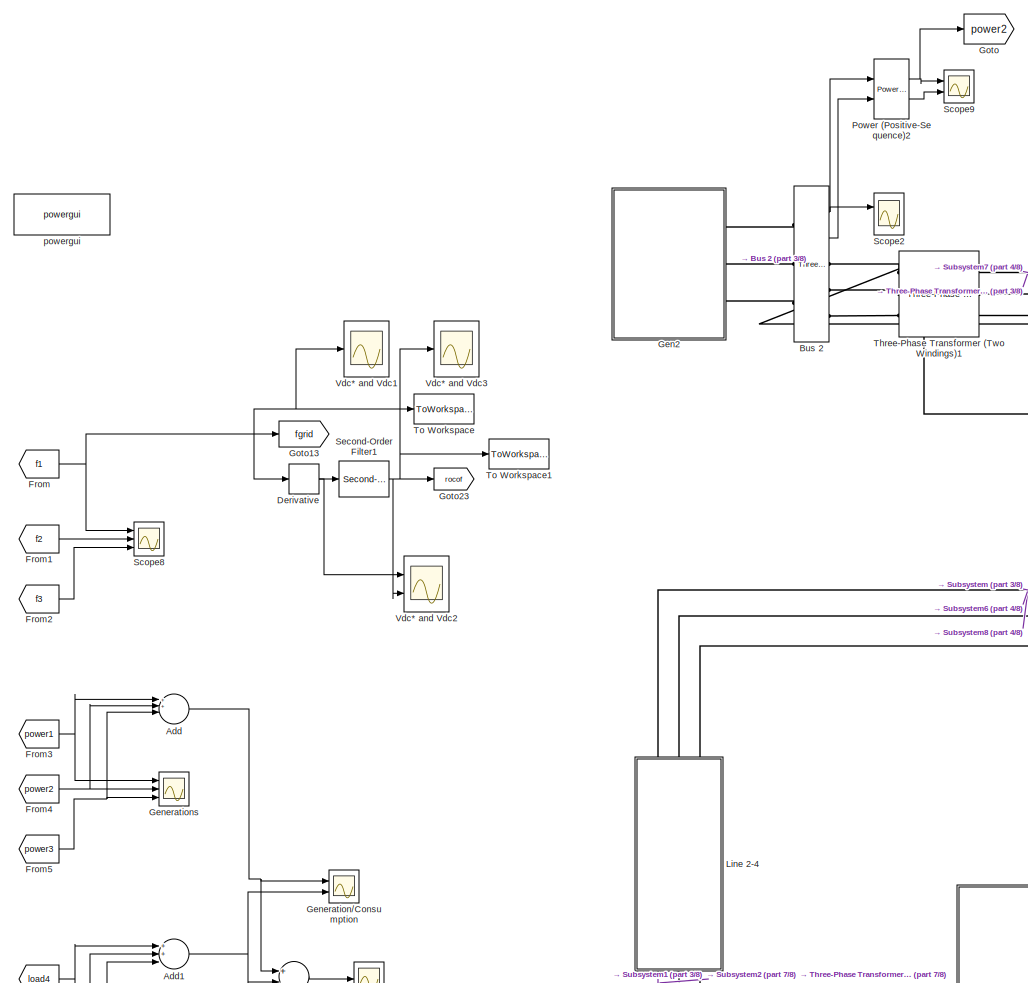
[diagram: root canvas - part 1/8, top left region]
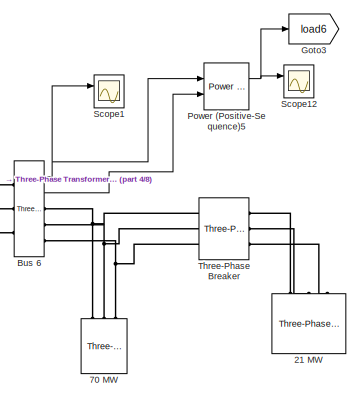
[diagram: root canvas - part 2/8, top right region]
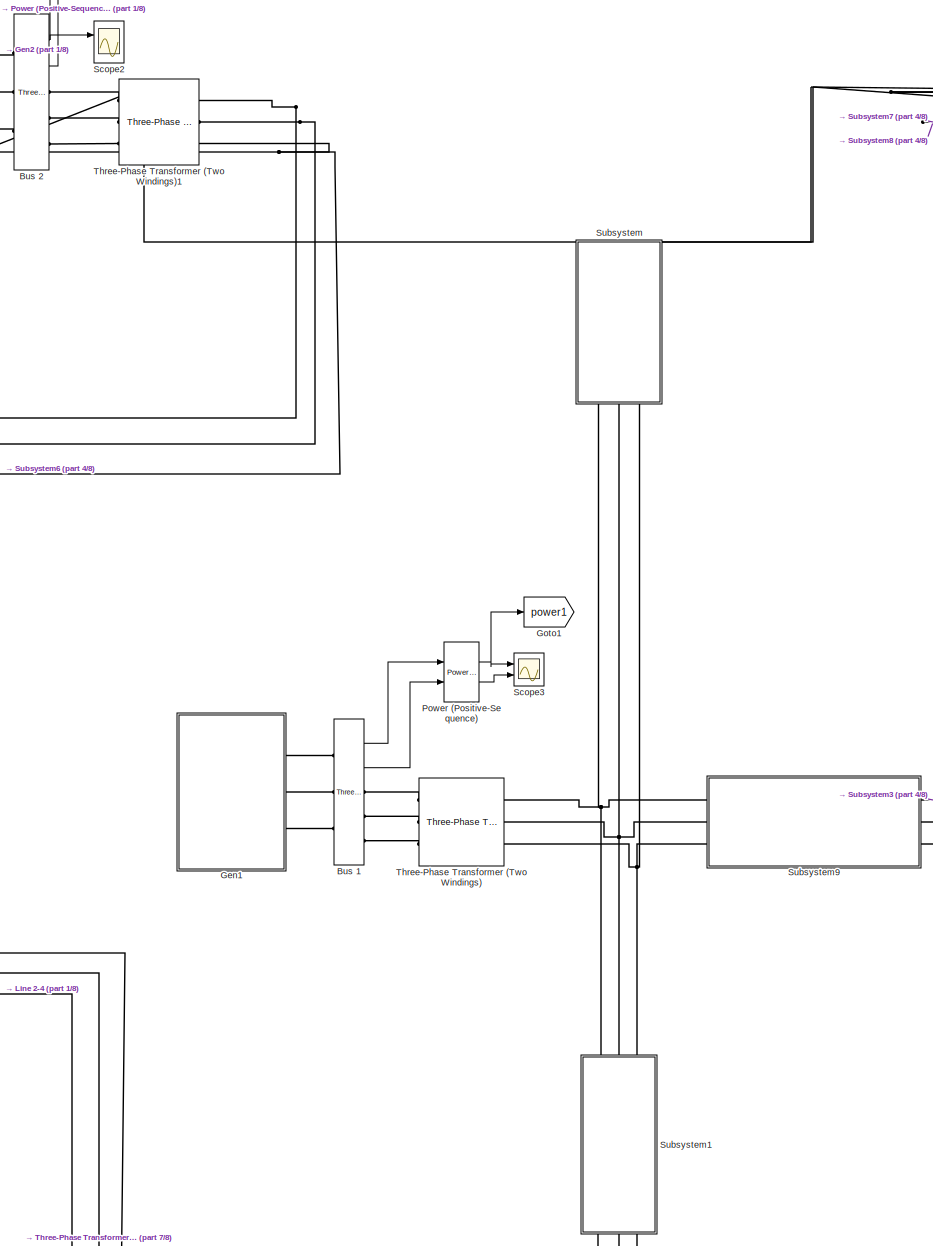
[diagram: root canvas - part 3/8, central region]
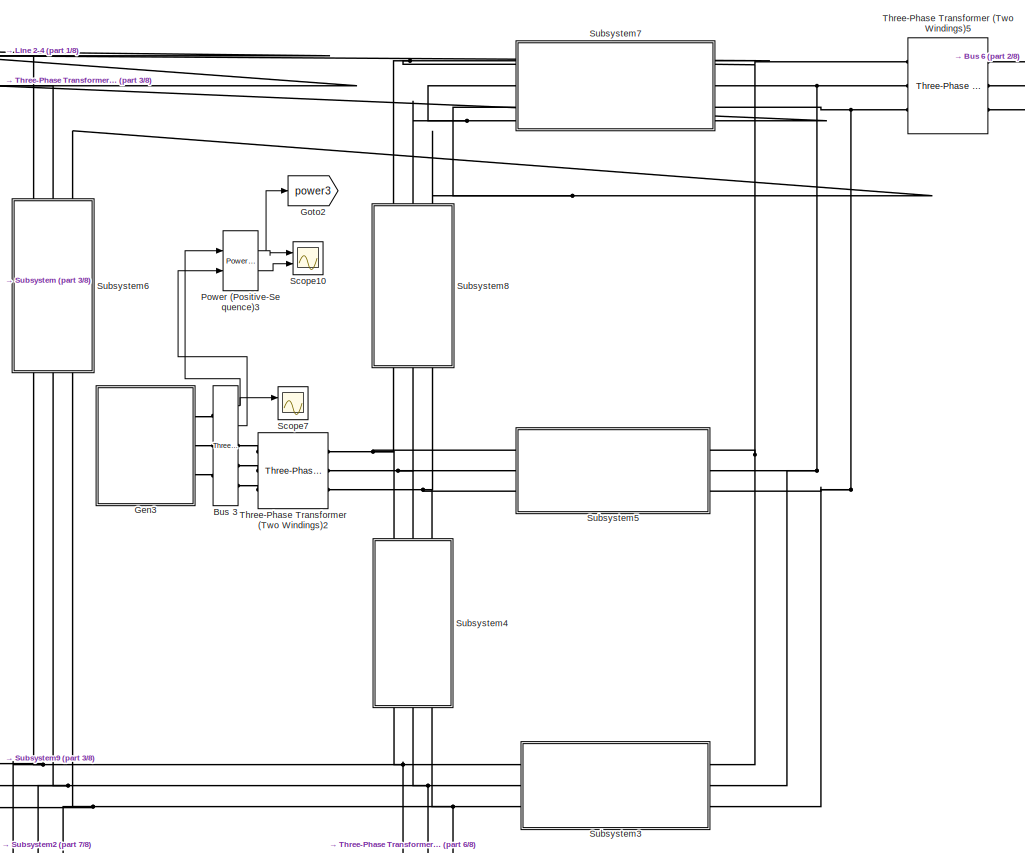
[diagram: root canvas - part 4/8, top right region]
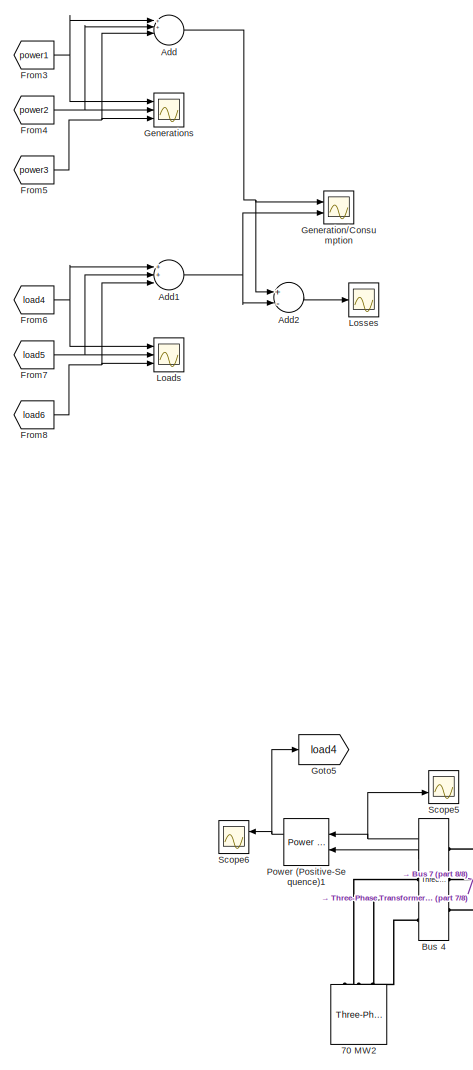
[diagram: root canvas - part 5/8, middle left region]
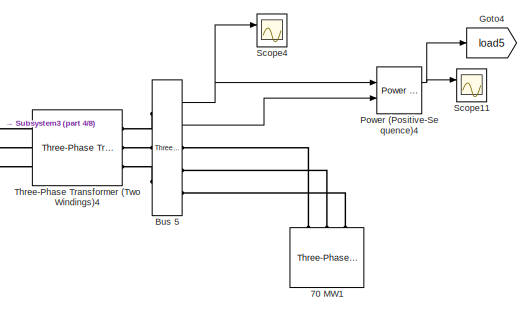
[diagram: root canvas - part 6/8, middle right region]
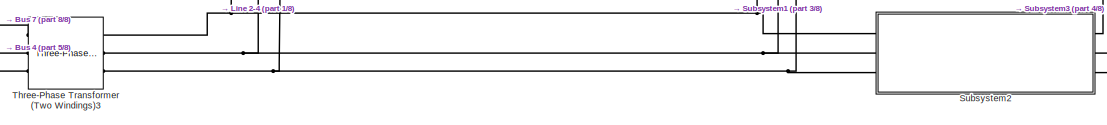
[diagram: root canvas - part 7/8, central region]
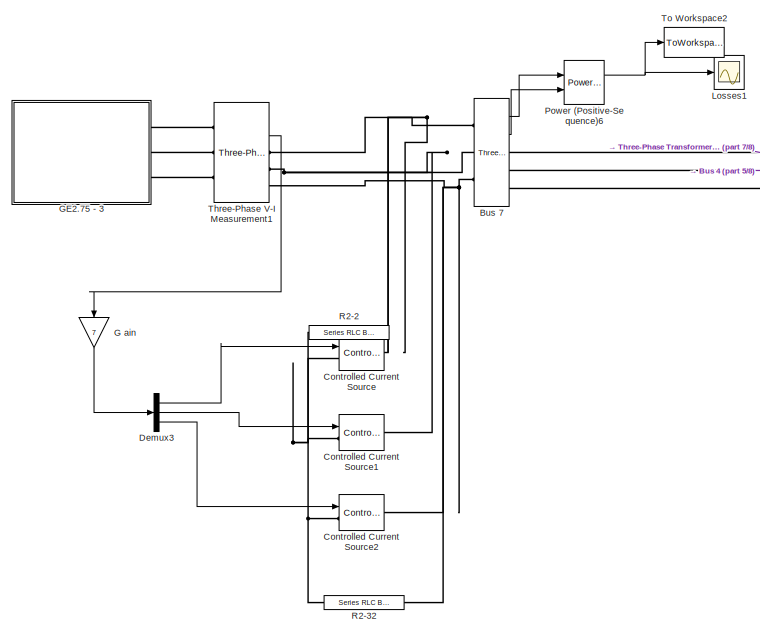
[diagram: root canvas - part 8/8, bottom left region]
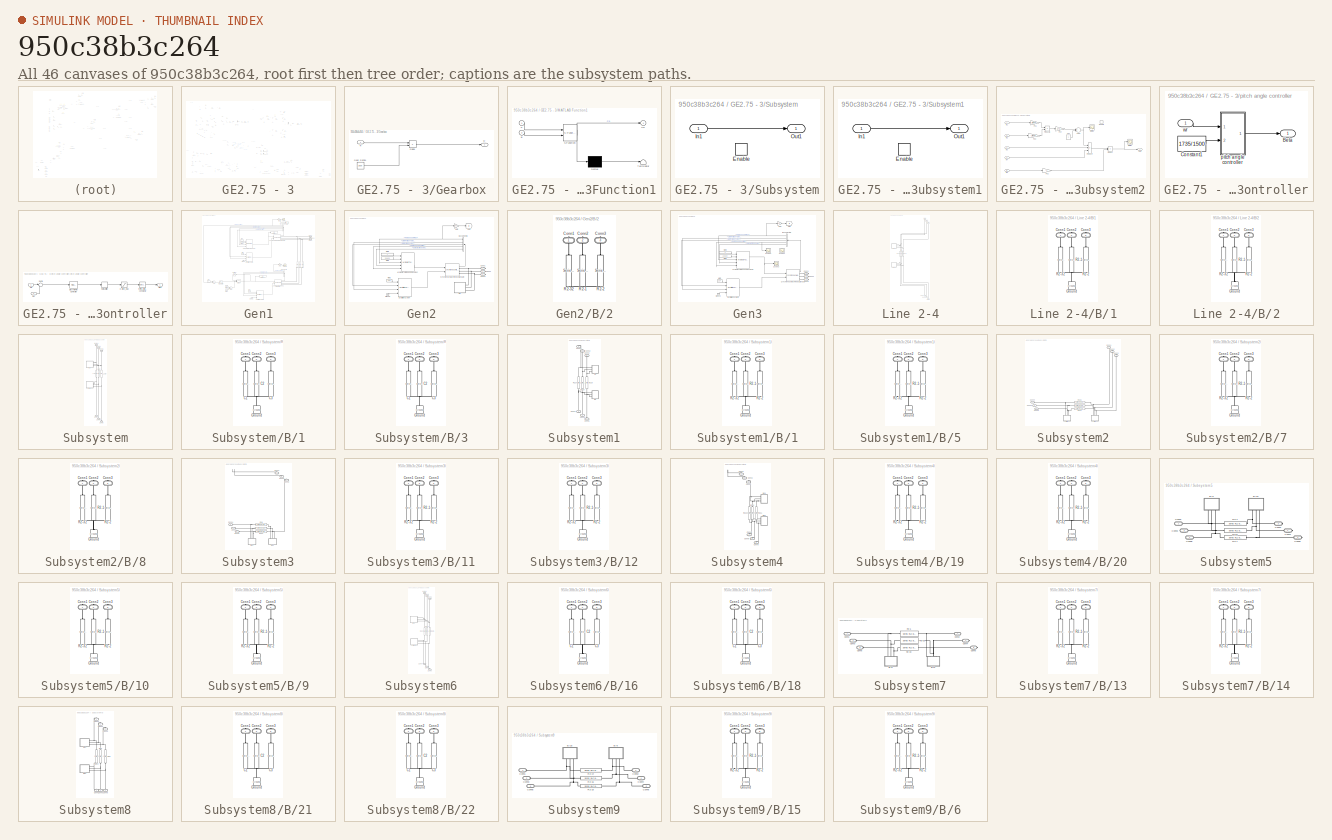
[diagram: thumbnail index - all 46 canvases of the model, root first then tree order]
MODEL slx_950c38b3c264
KIND model
CONFIG AbsTol = auto
CONFIG FixedStep = Ts
CONFIG MaxStep = auto
CONFIG MinStep = auto
CONFIG RelTol = 1e-3
CONFIG SampleTimeConstraint = Unconstrained
CONFIG Solver = ode23t
CONFIG SolverMode = Auto
CONFIG SolverName = ode23t
CONFIG StartTime = 0.0
CONFIG StopTime = 25
BLOCK [Reference] 21 MW  REF=powerlib/Elements/Three-Phase
Parallel RLC Load
  AttributesFormatString = \n
  Ports = [0, 0, 0, 0, 0, 3]
  SourceBlock = powerlib/Elements/Three-Phase\nParallel RLC Load
  SourceType = Three-Phase Parallel RLC Load
BLOCK [Reference] 70 MW  REF=powerlib/Elements/Three-Phase
Parallel RLC Load
  AttributesFormatString = \n
  Ports = [0, 0, 0, 0, 0, 3]
  SourceBlock = powerlib/Elements/Three-Phase\nParallel RLC Load
  SourceType = Three-Phase Parallel RLC Load
BLOCK [Reference] 70 MW1  REF=powerlib/Elements/Three-Phase
Parallel RLC Load
  AttributesFormatString = \n
  Ports = [0, 0, 0, 0, 0, 3]
  SourceBlock = powerlib/Elements/Three-Phase\nParallel RLC Load
  SourceType = Three-Phase Parallel RLC Load
BLOCK [Reference] 70 MW2  REF=powerlib/Elements/Three-Phase
Parallel RLC Load
  AttributesFormatString = \n
  Ports = [0, 0, 0, 0, 0, 3]
  SourceBlock = powerlib/Elements/Three-Phase\nParallel RLC Load
  SourceType = Three-Phase Parallel RLC Load
BLOCK [Sum] Add
  InputSameDT = off
  Inputs = 4
  OutDataTypeStr = Inherit: Inherit via internal rule
  Ports = [4, 1]
  SaturateOnIntegerOverflow = off
BLOCK [Sum] Add1
  InputSameDT = off
  Inputs = 3
  OutDataTypeStr = Inherit: Inherit via internal rule
  Ports = [3, 1]
  SaturateOnIntegerOverflow = off
BLOCK [Sum] Add2
  InputSameDT = off
  Inputs = +-
  OutDataTypeStr = Inherit: Inherit via internal rule
  Ports = [2, 1]
  SaturateOnIntegerOverflow = off
BLOCK [Reference] Bus 1  REF=powerlib/Measurements/Three-Phase
V-I Measurement
  Ports = [0, 2, 0, 0, 0, 3, 3]
  SourceBlock = powerlib/Measurements/Three-Phase\nV-I Measurement
  SourceType = Three-Phase VI Measurement
BLOCK [Reference] Bus 2  REF=powerlib/Measurements/Three-Phase
V-I Measurement
  Ports = [0, 2, 0, 0, 0, 3, 3]
  SourceBlock = powerlib/Measurements/Three-Phase\nV-I Measurement
  SourceType = Three-Phase VI Measurement
BLOCK [Reference] Bus 3  REF=powerlib/Measurements/Three-Phase
V-I Measurement
  Ports = [0, 2, 0, 0, 0, 3, 3]
  SourceBlock = powerlib/Measurements/Three-Phase\nV-I Measurement
  SourceType = Three-Phase VI Measurement
BLOCK [Reference] Bus 4  REF=powerlib/Measurements/Three-Phase
V-I Measurement
  Ports = [0, 2, 0, 0, 0, 3, 3]
  SourceBlock = powerlib/Measurements/Three-Phase\nV-I Measurement
  SourceType = Three-Phase VI Measurement
BLOCK [Reference] Bus 5  REF=powerlib/Measurements/Three-Phase
V-I Measurement
  Ports = [0, 2, 0, 0, 0, 3, 3]
  SourceBlock = powerlib/Measurements/Three-Phase\nV-I Measurement
  SourceType = Three-Phase VI Measurement
BLOCK [Reference] Bus 6  REF=powerlib/Measurements/Three-Phase
V-I Measurement
  Ports = [0, 2, 0, 0, 0, 3, 3]
  SourceBlock = powerlib/Measurements/Three-Phase\nV-I Measurement
  SourceType = Three-Phase VI Measurement
BLOCK [Reference] Bus 7  REF=powerlib/Measurements/Three-Phase
V-I Measurement
  Ports = [0, 2, 0, 0, 0, 3, 3]
  SourceBlock = powerlib/Measurements/Three-Phase\nV-I Measurement
  SourceType = Three-Phase VI Measurement
BLOCK [Reference] Controlled Current Source  REF=powerlib/Electrical
Sources/Controlled Current Source
  Ports = [1, 0, 0, 0, 0, 1, 1]
  SourceBlock = powerlib/Electrical\nSources/Controlled Current Source
  SourceType = Controlled Current Source
BLOCK [Reference] Controlled Current Source1  REF=powerlib/Electrical
Sources/Controlled Current Source
  Ports = [1, 0, 0, 0, 0, 1, 1]
  SourceBlock = powerlib/Electrical\nSources/Controlled Current Source
  SourceType = Controlled Current Source
BLOCK [Reference] Controlled Current Source2  REF=powerlib/Electrical
Sources/Controlled Current Source
  Ports = [1, 0, 0, 0, 0, 1, 1]
  SourceBlock = powerlib/Electrical\nSources/Controlled Current Source
  SourceType = Controlled Current Source
BLOCK [Demux] Demux3
  DisplayOption = bar
  Outputs = 3
  Ports = [1, 3]
BLOCK [Derivative] Derivative
BLOCK [From] From
  GotoTag = f1
  TagVisibility = global
BLOCK [From] From1
  GotoTag = f2
  TagVisibility = global
BLOCK [From] From2
  GotoTag = f3
  TagVisibility = global
BLOCK [From] From3
  GotoTag = power1
BLOCK [From] From4
  GotoTag = power2
BLOCK [From] From5
  GotoTag = power3
BLOCK [From] From6
  GotoTag = load4
BLOCK [From] From7
  GotoTag = load5
BLOCK [From] From8
  GotoTag = load6
BLOCK [Gain] G ain
  Gain = 7
  OutDataTypeStr = Inherit: Inherit via internal rule
  ParamDataTypeStr = Inherit: Inherit via internal rule
  SaturateOnIntegerOverflow = off
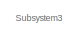
[diagram: GE2.75 - 3 - part 1/10, top left region]
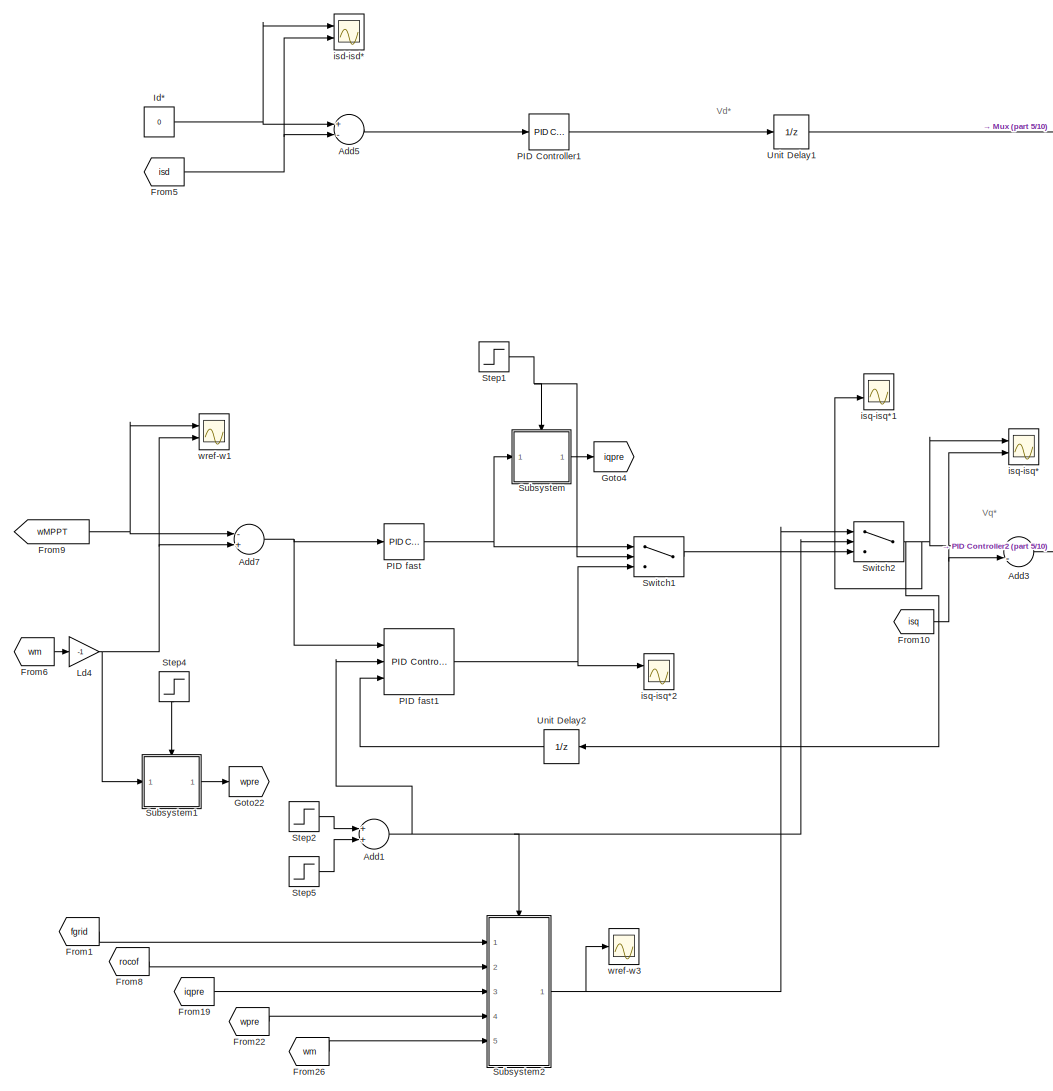
[diagram: GE2.75 - 3 - part 2/10, top left region]
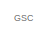
[diagram: GE2.75 - 3 - part 3/10, top center region]
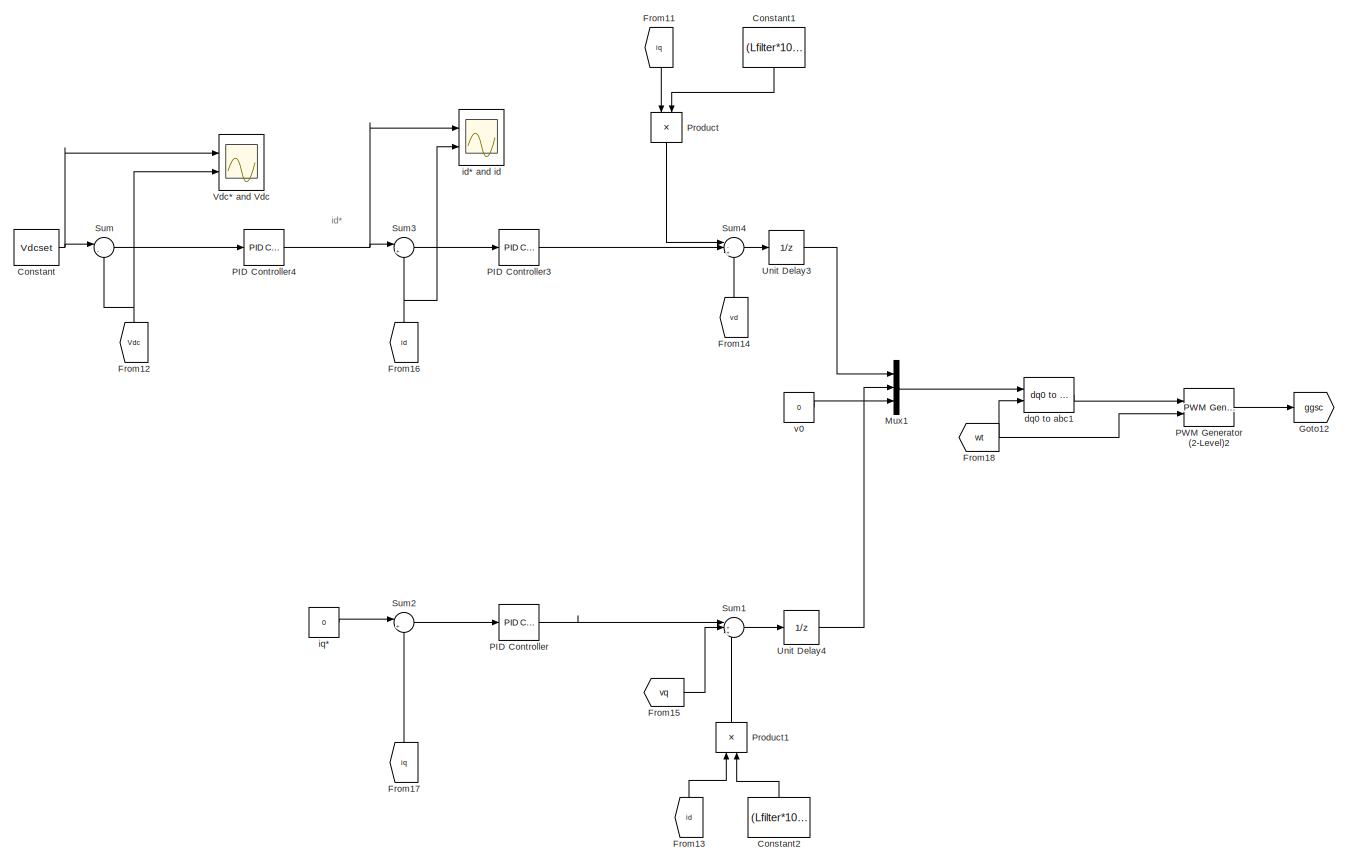
[diagram: GE2.75 - 3 - part 4/10, top center region]
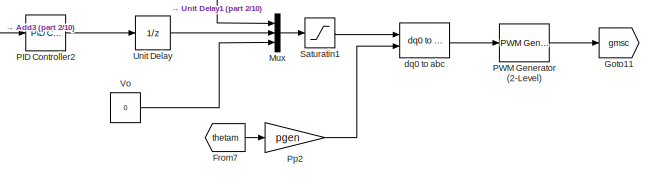
[diagram: GE2.75 - 3 - part 5/10, top center region]
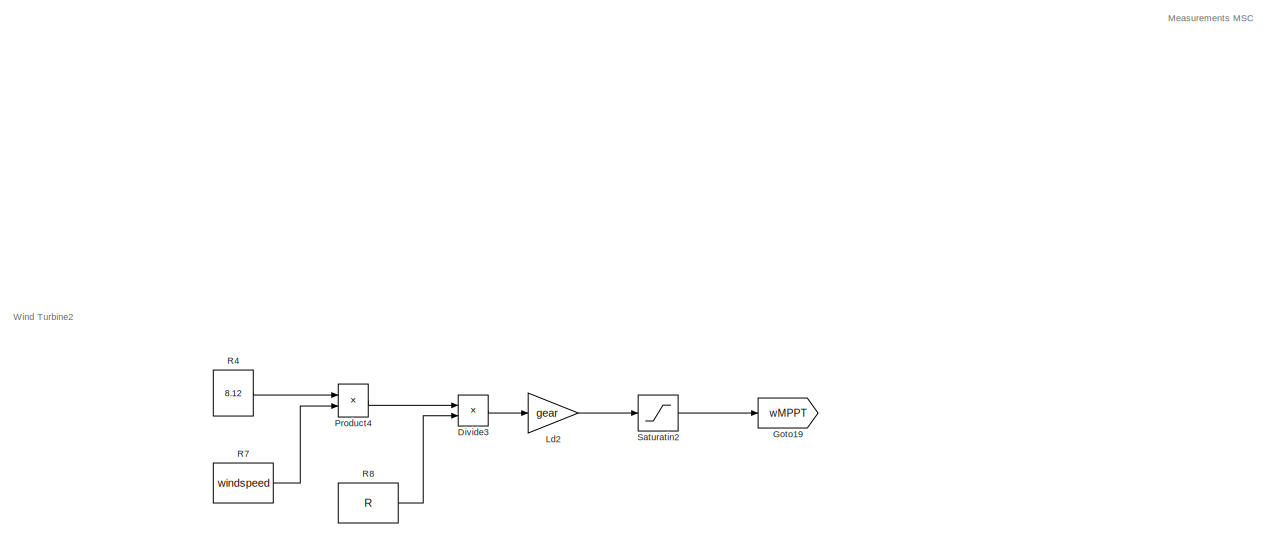
[diagram: GE2.75 - 3 - part 6/10, middle left region]
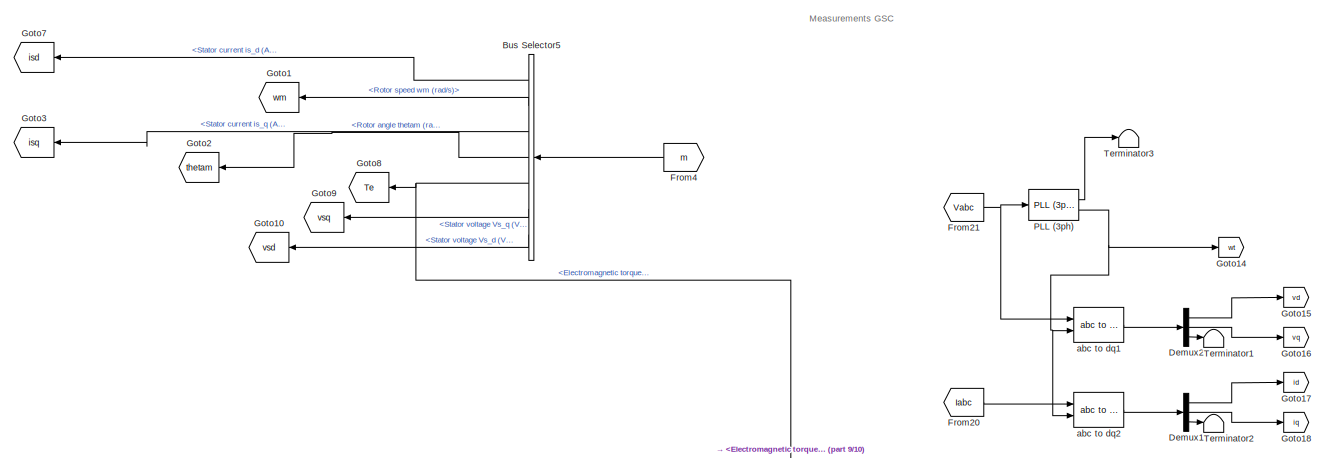
[diagram: GE2.75 - 3 - part 7/10, central region]
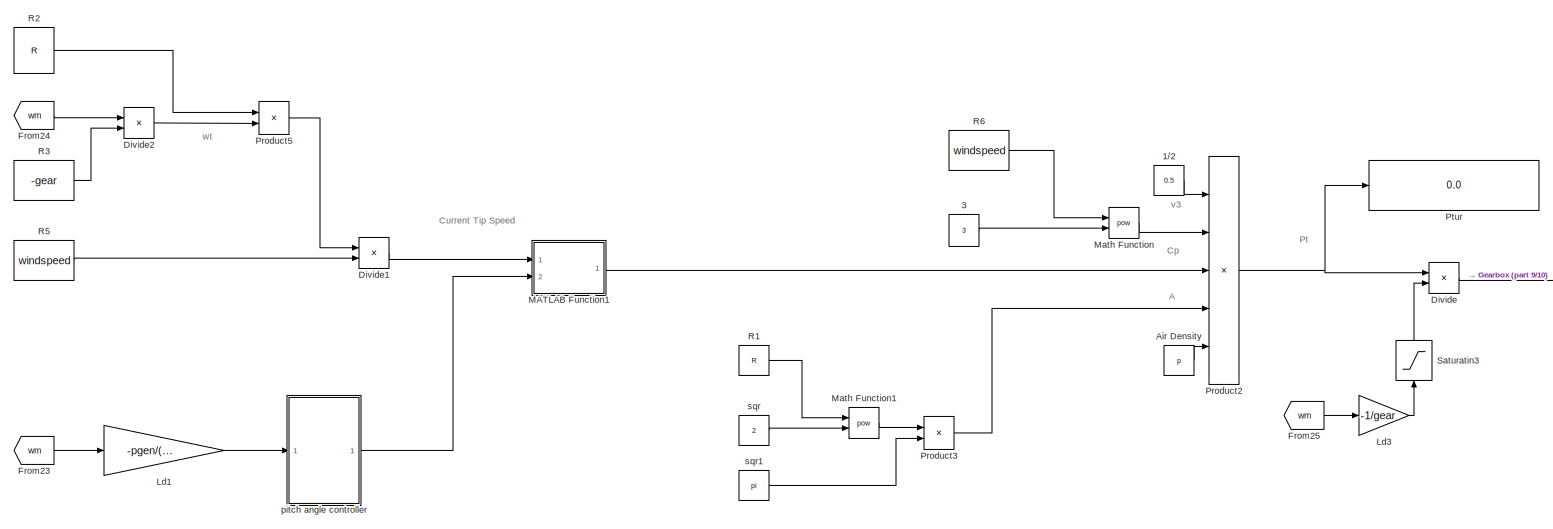
[diagram: GE2.75 - 3 - part 8/10, bottom left region]
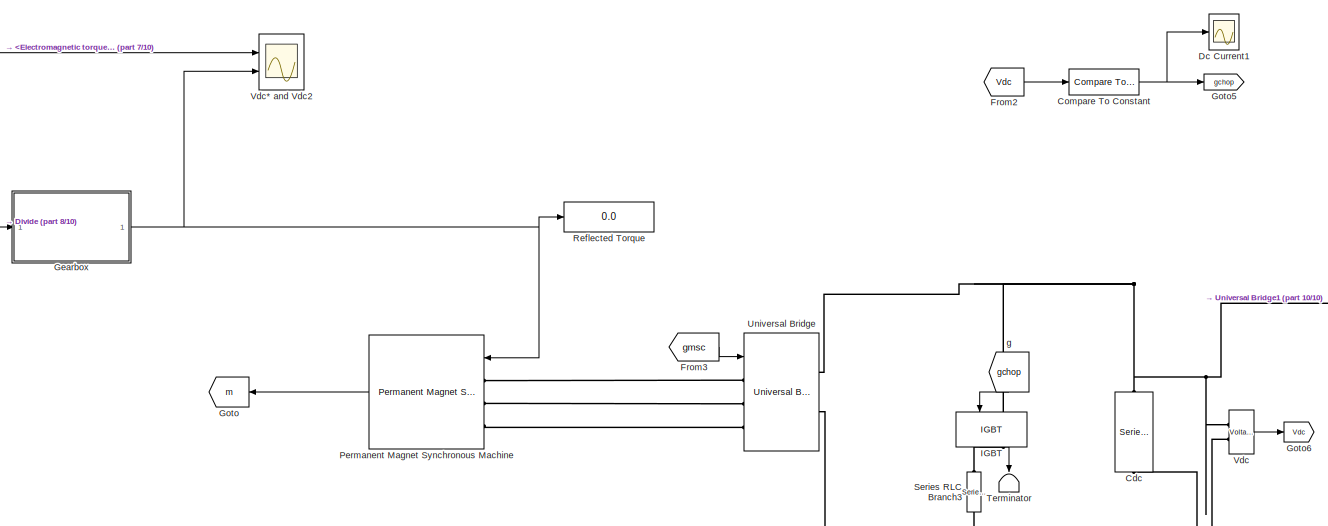
[diagram: GE2.75 - 3 - part 9/10, bottom center region]
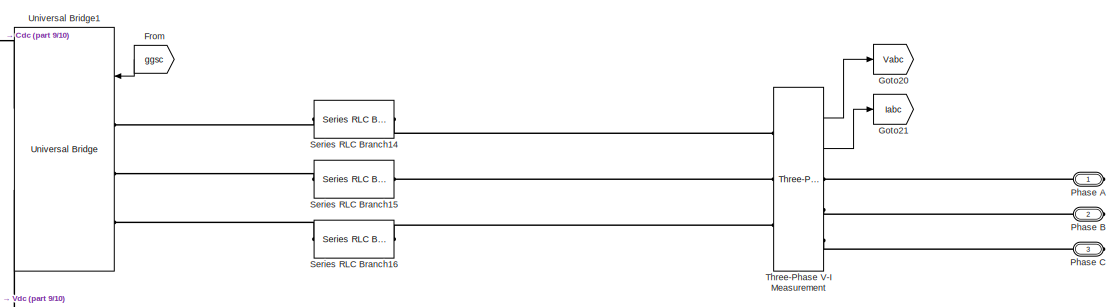
[diagram: GE2.75 - 3 - part 10/10, bottom right region]
BLOCK [SubSystem] GE2.75 - 3
  Ports = [0, 0, 0, 0, 0, 0, 3]
  RequestExecContextInheritance = off
  Variant = off
BLOCK [Constant] GE2.75 - 3/1//2
  Value = 0.5
BLOCK [Constant] GE2.75 - 3/3
  Value = 3
BLOCK [Sum] GE2.75 - 3/Add1
  InputSameDT = off
  OutDataTypeStr = Inherit: Inherit via internal rule
  Ports = [2, 1]
  SaturateOnIntegerOverflow = off
BLOCK [Sum] GE2.75 - 3/Add3
  InputSameDT = off
  Inputs = +-
  OutDataTypeStr = Inherit: Inherit via internal rule
  Ports = [2, 1]
  SaturateOnIntegerOverflow = off
BLOCK [Sum] GE2.75 - 3/Add5
  InputSameDT = off
  Inputs = +-
  OutDataTypeStr = Inherit: Inherit via internal rule
  Ports = [2, 1]
  SaturateOnIntegerOverflow = off
BLOCK [Sum] GE2.75 - 3/Add7
  InputSameDT = off
  Inputs = -+
  OutDataTypeStr = Inherit: Inherit via internal rule
  Ports = [2, 1]
  SaturateOnIntegerOverflow = off
BLOCK [Constant] GE2.75 - 3/Air Density
  Value = p
BLOCK [BusSelector] GE2.75 - 3/Bus Selector5
  OutputSignals = Stator current is_d (A),Rotor speed wm (rad/s),Stator current is_q (A),Rotor angle thetam (rad),Electromagnetic torque Te (N*m),Stator voltage Vs_q (V),Stator voltage Vs_d (V)
  Ports = [1, 7]
BLOCK [Reference] GE2.75 - 3/Cdc  REF=powerlib/Elements/Series RLC Branch
  Ports = [0, 0, 0, 0, 0, 1, 1]
  SourceBlock = powerlib/Elements/Series RLC Branch
  SourceType = Series RLC Branch
BLOCK [Reference] GE2.75 - 3/Compare To Constant  REF=simulink/Logic and Bit
Operations/Compare
To Constant
  Ports = [1, 1]
  SourceBlock = simulink/Logic and Bit\nOperations/Compare\nTo Constant
  SourceType = Compare To Constant
BLOCK [Constant] GE2.75 - 3/Constant
  Value = Vdcset
BLOCK [Constant] GE2.75 - 3/Constant1
  Value = (Lfilter*100*pi*2300)/690
BLOCK [Constant] GE2.75 - 3/Constant2
  Value = (Lfilter*100*pi*2300)/690
BLOCK [Scope] GE2.75 - 3/Dc Current1
  Ports = [1]
  ScopeSpecificationString = Simulink.scopes.TimeScopeBlockCfg('CurrentConfiguration', extmgr.ConfigurationSet(extmgr.Configuration('Core','General UI',true),extmgr.Configuration('Core','Source UI',true),extmgr.Configuration('Sources','WiredSimulink',true,'DataLoggingVariableName','ScopeData1'),extmgr.Configuration('Visuals','Time Domain',true,'SerializedDisplays',{struct('MinYLimReal','-1.00000','MaxYLimReal','1.00000','YLab...<+1422ch>
BLOCK [Demux] GE2.75 - 3/Demux1
  DisplayOption = bar
  Outputs = 3
  Ports = [1, 3]
BLOCK [Demux] GE2.75 - 3/Demux2
  DisplayOption = bar
  Outputs = 3
  Ports = [1, 3]
BLOCK [Product] GE2.75 - 3/Divide
  InputSameDT = off
  Inputs = */
  OutDataTypeStr = Inherit: Inherit via internal rule
  Ports = [2, 1]
  RndMeth = Floor
  SaturateOnIntegerOverflow = off
BLOCK [Product] GE2.75 - 3/Divide1
  InputSameDT = off
  Inputs = */
  OutDataTypeStr = Inherit: Inherit via internal rule
  Ports = [2, 1]
  RndMeth = Floor
  SaturateOnIntegerOverflow = off
BLOCK [Product] GE2.75 - 3/Divide2
  InputSameDT = off
  Inputs = */
  OutDataTypeStr = Inherit: Inherit via internal rule
  Ports = [2, 1]
  RndMeth = Floor
  SaturateOnIntegerOverflow = off
BLOCK [Product] GE2.75 - 3/Divide3
  InputSameDT = off
  Inputs = */
  OutDataTypeStr = Inherit: Inherit via internal rule
  Ports = [2, 1]
  RndMeth = Floor
  SaturateOnIntegerOverflow = off
BLOCK [From] GE2.75 - 3/From
  GotoTag = ggsc
BLOCK [From] GE2.75 - 3/From1
  GotoTag = fgrid
  TagVisibility = global
BLOCK [From] GE2.75 - 3/From10
  GotoTag = isq
BLOCK [From] GE2.75 - 3/From11
  GotoTag = iq
BLOCK [From] GE2.75 - 3/From12
  GotoTag = Vdc
BLOCK [From] GE2.75 - 3/From13
  GotoTag = id
BLOCK [From] GE2.75 - 3/From14
  GotoTag = vd
BLOCK [From] GE2.75 - 3/From15
  GotoTag = vq
BLOCK [From] GE2.75 - 3/From16
  GotoTag = id
BLOCK [From] GE2.75 - 3/From17
  GotoTag = iq
BLOCK [From] GE2.75 - 3/From18
  GotoTag = wt
BLOCK [From] GE2.75 - 3/From19
  GotoTag = iqpre
BLOCK [From] GE2.75 - 3/From2
  GotoTag = Vdc
BLOCK [From] GE2.75 - 3/From20
  GotoTag = Iabc
BLOCK [From] GE2.75 - 3/From21
  GotoTag = Vabc
BLOCK [From] GE2.75 - 3/From22
  GotoTag = wpre
BLOCK [From] GE2.75 - 3/From23
  GotoTag = wm
BLOCK [From] GE2.75 - 3/From24
  GotoTag = wm
BLOCK [From] GE2.75 - 3/From25
  GotoTag = wm
BLOCK [From] GE2.75 - 3/From26
  GotoTag = wm
BLOCK [From] GE2.75 - 3/From3
  GotoTag = gmsc
BLOCK [From] GE2.75 - 3/From4
  GotoTag = m
BLOCK [From] GE2.75 - 3/From5
  GotoTag = isd
BLOCK [From] GE2.75 - 3/From6
  GotoTag = wm
BLOCK [From] GE2.75 - 3/From7
  GotoTag = thetam
BLOCK [From] GE2.75 - 3/From8
  GotoTag = rocof
  TagVisibility = global
BLOCK [From] GE2.75 - 3/From9
  GotoTag = wMPPT
BLOCK [SubSystem] GE2.75 - 3/Gearbox
  Ports = [1, 1]
  RequestExecContextInheritance = off
  Variant = off
BLOCK [Product] GE2.75 - 3/Gearbox/Divide
  InputSameDT = off
  Inputs = */
  OutDataTypeStr = Inherit: Inherit via internal rule
  Ports = [2, 1]
  RndMeth = Floor
  SaturateOnIntegerOverflow = off
BLOCK [Constant] GE2.75 - 3/Gearbox/Gear Ratio1
  Value = gear
BLOCK [Inport] GE2.75 - 3/Gearbox/Tt
  IconDisplay = Port number
BLOCK [Outport] GE2.75 - 3/Gearbox/Tt'
  IconDisplay = Port number
BLOCK [Goto] GE2.75 - 3/Goto
  GotoTag = m
BLOCK [Goto] GE2.75 - 3/Goto1
  GotoTag = wm
BLOCK [Goto] GE2.75 - 3/Goto10
  GotoTag = vsd
BLOCK [Goto] GE2.75 - 3/Goto11
  GotoTag = gmsc
BLOCK [Goto] GE2.75 - 3/Goto12
  GotoTag = ggsc
BLOCK [Goto] GE2.75 - 3/Goto14
  GotoTag = wt
BLOCK [Goto] GE2.75 - 3/Goto15
  GotoTag = vd
BLOCK [Goto] GE2.75 - 3/Goto16
  GotoTag = vq
BLOCK [Goto] GE2.75 - 3/Goto17
  GotoTag = id
BLOCK [Goto] GE2.75 - 3/Goto18
  GotoTag = iq
BLOCK [Goto] GE2.75 - 3/Goto19
  GotoTag = wMPPT
BLOCK [Goto] GE2.75 - 3/Goto2
  GotoTag = thetam
BLOCK [Goto] GE2.75 - 3/Goto20
  GotoTag = Vabc
BLOCK [Goto] GE2.75 - 3/Goto21
  GotoTag = Iabc
BLOCK [Goto] GE2.75 - 3/Goto22
  GotoTag = wpre
BLOCK [Goto] GE2.75 - 3/Goto3
  GotoTag = isq
BLOCK [Goto] GE2.75 - 3/Goto4
  GotoTag = iqpre
BLOCK [Goto] GE2.75 - 3/Goto5
  GotoTag = gchop
BLOCK [Goto] GE2.75 - 3/Goto6
  GotoTag = Vdc
BLOCK [Goto] GE2.75 - 3/Goto7
  GotoTag = isd
BLOCK [Goto] GE2.75 - 3/Goto8
  GotoTag = Te
BLOCK [Goto] GE2.75 - 3/Goto9
  GotoTag = vsq
BLOCK [Reference] GE2.75 - 3/IGBT  REF=powerlib/Power
Electronics/IGBT
  Ports = [1, 1, 0, 0, 0, 1, 1]
  SourceBlock = powerlib/Power\nElectronics/IGBT
  SourceType = IGBT
BLOCK [Constant] GE2.75 - 3/Id*
  Value = 0
BLOCK [Gain] GE2.75 - 3/Ld1
  Gain = -pgen/(2*fnom*pi)
  OutDataTypeStr = Inherit: Inherit via internal rule
  ParamDataTypeStr = Inherit: Inherit via internal rule
  SaturateOnIntegerOverflow = off
BLOCK [Gain] GE2.75 - 3/Ld2
  Gain = gear
  OutDataTypeStr = Inherit: Inherit via internal rule
  ParamDataTypeStr = Inherit: Inherit via internal rule
  SaturateOnIntegerOverflow = off
BLOCK [Gain] GE2.75 - 3/Ld3
  Gain = -1/gear
  OutDataTypeStr = Inherit: Inherit via internal rule
  ParamDataTypeStr = Inherit: Inherit via internal rule
  SaturateOnIntegerOverflow = off
BLOCK [Gain] GE2.75 - 3/Ld4
  Gain = -1
  OutDataTypeStr = Inherit: Inherit via internal rule
  ParamDataTypeStr = Inherit: Inherit via internal rule
  SaturateOnIntegerOverflow = off
BLOCK [SubSystem] GE2.75 - 3/MATLAB Function1
  ErrorFcn = Stateflow.Translate.translate
  PermitHierarchicalResolution = ExplicitOnly
  Ports = [2, 1]
  RequestExecContextInheritance = off
  SFBlockType = MATLAB Function
  TreatAsAtomicUnit = on
  Variant = off
BLOCK [Demux] GE2.75 - 3/MATLAB Function1/ Demux 
  Outputs = 1
  Ports = [1, 1]
BLOCK [S-Function] GE2.75 - 3/MATLAB Function1/ SFunction 
  EnableBusSupport = on
  FunctionName = sf_sfun
  PortCounts = [2 2]
  Ports = [2, 2]
  SFunctionDeploymentMode = off
  Tag = Stateflow S-Function ieee_6_bus_base_case_hydro_dominated 3
BLOCK [Terminator] GE2.75 - 3/MATLAB Function1/ Terminator 
BLOCK [Inport] GE2.75 - 3/MATLAB Function1/B
  IconDisplay = Port number
  Port = 2
BLOCK [Outport] GE2.75 - 3/MATLAB Function1/Cp
  IconDisplay = Port number
BLOCK [Inport] GE2.75 - 3/MATLAB Function1/u
  IconDisplay = Port number
BLOCK [Math] GE2.75 - 3/Math Function
  Operator = pow
  Ports = [2, 1]
BLOCK [Math] GE2.75 - 3/Math Function1
  Operator = pow
  Ports = [2, 1]
BLOCK [Mux] GE2.75 - 3/Mux
  DisplayOption = bar
  Inputs = 3
  Ports = [3, 1]
BLOCK [Mux] GE2.75 - 3/Mux1
  DisplayOption = bar
  Inputs = 3
  Ports = [3, 1]
BLOCK [Reference] GE2.75 - 3/PID Controller  REF=simulink/Continuous/PID Controller
  Ports = [1, 1]
  SourceBlock = simulink/Continuous/PID Controller
  SourceType = PID 1dof
BLOCK [Reference] GE2.75 - 3/PID Controller1  REF=simulink/Continuous/PID Controller
  Ports = [1, 1]
  SourceBlock = simulink/Continuous/PID Controller
  SourceType = PID 1dof
BLOCK [Reference] GE2.75 - 3/PID Controller2  REF=simulink/Continuous/PID Controller
  Ports = [1, 1]
  SourceBlock = simulink/Continuous/PID Controller
  SourceType = PID 1dof
BLOCK [Reference] GE2.75 - 3/PID Controller3  REF=simulink/Continuous/PID Controller
  Ports = [1, 1]
  SourceBlock = simulink/Continuous/PID Controller
  SourceType = PID 1dof
BLOCK [Reference] GE2.75 - 3/PID Controller4  REF=simulink/Continuous/PID Controller
  Ports = [1, 1]
  SourceBlock = simulink/Continuous/PID Controller
  SourceType = PID 1dof
BLOCK [Reference] GE2.75 - 3/PID fast  REF=simulink/Continuous/PID Controller
  Ports = [1, 1]
  SourceBlock = simulink/Continuous/PID Controller
  SourceType = PID 1dof
BLOCK [Reference] GE2.75 - 3/PID fast1  REF=simulink/Continuous/PID Controller
  Ports = [3, 1]
  SourceBlock = simulink/Continuous/PID Controller
  SourceType = PID 1dof
BLOCK [Reference] GE2.75 - 3/PLL (3ph)  REF=powerlib_meascontrol/PLL/PLL
(3ph)
  Ports = [1, 2]
  SourceBlock = powerlib_meascontrol/PLL/PLL\n(3ph)
  SourceType = PLL (3ph)
BLOCK [Reference] GE2.75 - 3/PWM Generator (2-Level)  REF=powerlib_meascontrol/Pulse & Signal
Generators/PWM Generator
(2-Level)
  Ports = [1, 1]
  SourceBlock = powerlib_meascontrol/Pulse & Signal\nGenerators/PWM Generator\n(2-Level)
  SourceType = PWM Generator (2-Level)
BLOCK [Reference] GE2.75 - 3/PWM Generator (2-Level)2  REF=powerlib_meascontrol/Pulse & Signal
Generators/PWM Generator
(2-Level)
  Ports = [2, 1]
  SourceBlock = powerlib_meascontrol/Pulse & Signal\nGenerators/PWM Generator\n(2-Level)
  SourceType = PWM Generator (2-Level)
BLOCK [Reference] GE2.75 - 3/Permanent Magnet Synchronous Machine  REF=powerlib/Machines/Permanent Magnet
Synchronous Machine
  Ports = [1, 1, 0, 0, 0, 3]
  SourceBlock = powerlib/Machines/Permanent Magnet\nSynchronous Machine
  SourceType = Permanent Magnet Synchronous Machine
BLOCK [PMIOPort] GE2.75 - 3/Phase A
  Port = 1
  Side = Right
BLOCK [PMIOPort] GE2.75 - 3/Phase B
  Port = 2
  Side = Right
BLOCK [PMIOPort] GE2.75 - 3/Phase C
  Port = 3
  Side = Right
BLOCK [Gain] GE2.75 - 3/Pp2
  Gain = pgen
  OutDataTypeStr = Inherit: Inherit via internal rule
  ParamDataTypeStr = Inherit: Inherit via internal rule
  SaturateOnIntegerOverflow = off
BLOCK [Product] GE2.75 - 3/Product
  InputSameDT = off
  OutDataTypeStr = Inherit: Inherit via internal rule
  Ports = [2, 1]
  RndMeth = Floor
  SaturateOnIntegerOverflow = off
BLOCK [Product] GE2.75 - 3/Product1
  InputSameDT = off
  OutDataTypeStr = Inherit: Inherit via internal rule
  Ports = [2, 1]
  RndMeth = Floor
  SaturateOnIntegerOverflow = off
BLOCK [Product] GE2.75 - 3/Product2
  InputSameDT = off
  Inputs = 5
  OutDataTypeStr = Inherit: Inherit via internal rule
  Ports = [5, 1]
  RndMeth = Floor
  SaturateOnIntegerOverflow = off
BLOCK [Product] GE2.75 - 3/Product3
  InputSameDT = off
  OutDataTypeStr = Inherit: Inherit via internal rule
  Ports = [2, 1]
  RndMeth = Floor
  SaturateOnIntegerOverflow = off
BLOCK [Product] GE2.75 - 3/Product4
  InputSameDT = off
  OutDataTypeStr = Inherit: Inherit via internal rule
  Ports = [2, 1]
  RndMeth = Floor
  SaturateOnIntegerOverflow = off
BLOCK [Product] GE2.75 - 3/Product5
  InputSameDT = off
  OutDataTypeStr = Inherit: Inherit via internal rule
  Ports = [2, 1]
  RndMeth = Floor
  SaturateOnIntegerOverflow = off
BLOCK [Display] GE2.75 - 3/Ptur
  Decimation = 1
  Ports = [1]
BLOCK [Constant] GE2.75 - 3/R1
  Value = R
BLOCK [Constant] GE2.75 - 3/R2
  Value = R
BLOCK [Constant] GE2.75 - 3/R3
  Value = -gear
BLOCK [Constant] GE2.75 - 3/R4
  Value = 8.12
BLOCK [Constant] GE2.75 - 3/R5
  Value = windspeed
BLOCK [Constant] GE2.75 - 3/R6
  Value = windspeed
BLOCK [Constant] GE2.75 - 3/R7
  Value = windspeed
BLOCK [Constant] GE2.75 - 3/R8
  Value = R
BLOCK [Display] GE2.75 - 3/Reflected Torque
  Decimation = 1
  Ports = [1]
BLOCK [Saturate] GE2.75 - 3/Saturatin1
  InputPortMap = u0
  LowerLimit = -2000
  Ports = [1, 1]
  UpperLimit = 2000
BLOCK [Saturate] GE2.75 - 3/Saturatin2
  InputPortMap = u0
  LowerLimit = 1e-8
  Ports = [1, 1]
  UpperLimit = wmax
BLOCK [Saturate] GE2.75 - 3/Saturatin3
  InputPortMap = u0
  LowerLimit = 1e-8
  Ports = [1, 1]
  UpperLimit = inf
BLOCK [Reference] GE2.75 - 3/Series RLC Branch14  REF=powerlib/Elements/Series RLC Branch
  Ports = [0, 0, 0, 0, 0, 1, 1]
  SourceBlock = powerlib/Elements/Series RLC Branch
  SourceType = Series RLC Branch
BLOCK [Reference] GE2.75 - 3/Series RLC Branch15  REF=powerlib/Elements/Series RLC Branch
  Ports = [0, 0, 0, 0, 0, 1, 1]
  SourceBlock = powerlib/Elements/Series RLC Branch
  SourceType = Series RLC Branch
BLOCK [Reference] GE2.75 - 3/Series RLC Branch16  REF=powerlib/Elements/Series RLC Branch
  Ports = [0, 0, 0, 0, 0, 1, 1]
  SourceBlock = powerlib/Elements/Series RLC Branch
  SourceType = Series RLC Branch
BLOCK [Reference] GE2.75 - 3/Series RLC Branch3  REF=powerlib/Elements/Series RLC Branch
  Ports = [0, 0, 0, 0, 0, 1, 1]
  SourceBlock = powerlib/Elements/Series RLC Branch
  SourceType = Series RLC Branch
BLOCK [Step] GE2.75 - 3/Step1
  After = 0
  Before = 1
  SampleTime = Ts
  Time = insup
BLOCK [Step] GE2.75 - 3/Step2
  SampleTime = Ts
  Time = insup
BLOCK [Step] GE2.75 - 3/Step4
  After = 0
  Before = 1
  SampleTime = Ts
  Time = insup
BLOCK [Step] GE2.75 - 3/Step5
  After = -1
  SampleTime = Ts
  Time = insup+supduration
BLOCK [SubSystem] GE2.75 - 3/Subsystem
  Ports = [1, 1, 1]
  RequestExecContextInheritance = off
  Variant = off
BLOCK [EnablePort] GE2.75 - 3/Subsystem/Enable
  Ports = []
BLOCK [Inport] GE2.75 - 3/Subsystem/In1
  IconDisplay = Port number
BLOCK [Outport] GE2.75 - 3/Subsystem/Out1
  IconDisplay = Port number
BLOCK [SubSystem] GE2.75 - 3/Subsystem1
  Ports = [1, 1, 1]
  RequestExecContextInheritance = off
  Variant = off
BLOCK [EnablePort] GE2.75 - 3/Subsystem1/Enable
  Ports = []
BLOCK [Inport] GE2.75 - 3/Subsystem1/In1
  IconDisplay = Port number
BLOCK [Outport] GE2.75 - 3/Subsystem1/Out1
  IconDisplay = Port number
BLOCK [SubSystem] GE2.75 - 3/Subsystem2
  Ports = [5, 1, 1]
  RequestExecContextInheritance = off
  Variant = off
BLOCK [Sum] GE2.75 - 3/Subsystem2/Add1
  InputSameDT = off
  OutDataTypeStr = Inherit: Inherit via internal rule
  Ports = [2, 1]
  SaturateOnIntegerOverflow = off
BLOCK [Product] GE2.75 - 3/Subsystem2/Divide4
  InputSameDT = off
  Inputs = */
  OutDataTypeStr = Inherit: Inherit via internal rule
  Ports = [2, 1]
  RndMeth = Floor
  SaturateOnIntegerOverflow = off
BLOCK [EnablePort] GE2.75 - 3/Subsystem2/Enable
  Ports = []
BLOCK [Inport] GE2.75 - 3/Subsystem2/In1
  IconDisplay = Port number
BLOCK [Inport] GE2.75 - 3/Subsystem2/In2
  IconDisplay = Port number
  Port = 2
BLOCK [Inport] GE2.75 - 3/Subsystem2/In3
  IconDisplay = Port number
  Port = 3
BLOCK [Inport] GE2.75 - 3/Subsystem2/In4
  IconDisplay = Port number
  Port = 4
BLOCK [Inport] GE2.75 - 3/Subsystem2/In5
  IconDisplay = Port number
  Port = 5
BLOCK [Outport] GE2.75 - 3/Subsystem2/Out1
  IconDisplay = Port number
BLOCK [Gain] GE2.75 - 3/Subsystem2/Pp1
  Gain = 1/fnom
  OutDataTypeStr = Inherit: Inherit via internal rule
  ParamDataTypeStr = Inherit: Inherit via internal rule
  SaturateOnIntegerOverflow = off
BLOCK [Gain] GE2.75 - 3/Subsystem2/Pp2
  Gain = -1
  OutDataTypeStr = Inherit: Inherit via internal rule
  ParamDataTypeStr = Inherit: Inherit via internal rule
  SaturateOnIntegerOverflow = off
BLOCK [Gain] GE2.75 - 3/Subsystem2/Pp3
  Gain = -1/fnom
  OutDataTypeStr = Inherit: Inherit via internal rule
  ParamDataTypeStr = Inherit: Inherit via internal rule
  SaturateOnIntegerOverflow = off
BLOCK [Gain] GE2.75 - 3/Subsystem2/Pp4
  Gain = 2*H
  OutDataTypeStr = Inherit: Inherit via internal rule
  ParamDataTypeStr = Inherit: Inherit via internal rule
  SaturateOnIntegerOverflow = off
BLOCK [Product] GE2.75 - 3/Subsystem2/Product6
  InputSameDT = off
  OutDataTypeStr = Inherit: Inherit via internal rule
  Ports = [2, 1]
  RndMeth = Floor
  SaturateOnIntegerOverflow = off
BLOCK [Product] GE2.75 - 3/Subsystem2/Product7
  InputSameDT = off
  Inputs = 3
  OutDataTypeStr = Inherit: Inherit via internal rule
  Ports = [3, 1]
  RndMeth = Floor
  SaturateOnIntegerOverflow = off
BLOCK [Constant] GE2.75 - 3/Subsystem2/Vo1
BLOCK [Scope] GE2.75 - 3/Subsystem2/wref-w1
  Ports = [1]
  ScopeSpecificationString = Simulink.scopes.TimeScopeBlockCfg('CurrentConfiguration', extmgr.ConfigurationSet(extmgr.Configuration('Core','General UI',true),extmgr.Configuration('Core','Source UI',true),extmgr.Configuration('Sources','WiredSimulink',true,'DataLoggingVariableName','ScopeData4'),extmgr.Configuration('Visuals','Time Domain',true,'SerializedDisplays',{struct('MinYLimReal','871.03715','MaxYLimReal','951.10609','Y...<+1451ch>
BLOCK [Scope] GE2.75 - 3/Subsystem2/wref-w2
  Ports = [1]
  ScopeSpecificationString = Simulink.scopes.TimeScopeBlockCfg('CurrentConfiguration', extmgr.ConfigurationSet(extmgr.Configuration('Core','General UI',true),extmgr.Configuration('Core','Source UI',true),extmgr.Configuration('Sources','WiredSimulink',true,'DataLoggingVariableName','ScopeData3'),extmgr.Configuration('Visuals','Time Domain',true,'SerializedDisplays',{struct('MinYLimReal','0.99299','MaxYLimReal','1.00852','YLabe...<+1435ch>
BLOCK [Sum] GE2.75 - 3/Sum
  IconShape = round
  InputSameDT = off
  Inputs = |-+
  OutDataTypeStr = Inherit: Inherit via internal rule
  Ports = [2, 1]
  SaturateOnIntegerOverflow = off
BLOCK [Sum] GE2.75 - 3/Sum1
  IconShape = round
  InputSameDT = off
  Inputs = |+++
  OutDataTypeStr = Inherit: Inherit via internal rule
  Ports = [3, 1]
  SaturateOnIntegerOverflow = off
BLOCK [Sum] GE2.75 - 3/Sum2
  IconShape = round
  InputSameDT = off
  Inputs = |+-
  OutDataTypeStr = Inherit: Inherit via internal rule
  Ports = [2, 1]
  SaturateOnIntegerOverflow = off
BLOCK [Sum] GE2.75 - 3/Sum3
  IconShape = round
  InputSameDT = off
  Inputs = |+-
  OutDataTypeStr = Inherit: Inherit via internal rule
  Ports = [2, 1]
  SaturateOnIntegerOverflow = off
BLOCK [Sum] GE2.75 - 3/Sum4
  IconShape = round
  InputSameDT = off
  Inputs = |-++
  OutDataTypeStr = Inherit: Inherit via internal rule
  Ports = [3, 1]
  SaturateOnIntegerOverflow = off
BLOCK [Switch] GE2.75 - 3/Switch1
  Criteria = u2 > Threshold
  InputSameDT = off
  SaturateOnIntegerOverflow = off
  Threshold = 0.5
BLOCK [Switch] GE2.75 - 3/Switch2
  Criteria = u2 > Threshold
  InputSameDT = off
  SaturateOnIntegerOverflow = off
  Threshold = 0.5
BLOCK [Terminator] GE2.75 - 3/Terminator
BLOCK [Terminator] GE2.75 - 3/Terminator1
BLOCK [Terminator] GE2.75 - 3/Terminator2
BLOCK [Terminator] GE2.75 - 3/Terminator3
BLOCK [Reference] GE2.75 - 3/Three-Phase V-I Measurement  REF=powerlib/Measurements/Three-Phase
V-I Measurement
  Ports = [0, 2, 0, 0, 0, 3, 3]
  SourceBlock = powerlib/Measurements/Three-Phase\nV-I Measurement
  SourceType = Three-Phase VI Measurement
BLOCK [UnitDelay] GE2.75 - 3/Unit Delay
  InputProcessing = Elements as channels (sample based)
  SampleTime = Ts
BLOCK [UnitDelay] GE2.75 - 3/Unit Delay1
  InputProcessing = Elements as channels (sample based)
  SampleTime = Ts
BLOCK [UnitDelay] GE2.75 - 3/Unit Delay2
  InputProcessing = Elements as channels (sample based)
  SampleTime = Ts
BLOCK [UnitDelay] GE2.75 - 3/Unit Delay3
  InputProcessing = Elements as channels (sample based)
  SampleTime = Ts
BLOCK [UnitDelay] GE2.75 - 3/Unit Delay4
  InputProcessing = Elements as channels (sample based)
  SampleTime = Ts
BLOCK [Reference] GE2.75 - 3/Universal Bridge  REF=powerlib/Power
Electronics/Universal Bridge
  Ports = [1, 0, 0, 0, 0, 3, 2]
  SourceBlock = powerlib/Power\nElectronics/Universal Bridge
  SourceType = Universal Bridge
BLOCK [Reference] GE2.75 - 3/Universal Bridge1  REF=powerlib/Power
Electronics/Universal Bridge
  Ports = [1, 0, 0, 0, 0, 3, 2]
  SourceBlock = powerlib/Power\nElectronics/Universal Bridge
  SourceType = Universal Bridge
BLOCK [Reference] GE2.75 - 3/Vdc  REF=powerlib/Measurements/Voltage Measurement
  Ports = [0, 1, 0, 0, 0, 2]
  SourceBlock = powerlib/Measurements/Voltage Measurement
  SourceType = Voltage Measurement
  UserDataPersistent = on
BLOCK [Scope] GE2.75 - 3/Vdc* and Vdc
  NumInputPorts = 2
  Ports = [2]
  ScopeSpecificationString = Simulink.scopes.TimeScopeBlockCfg('CurrentConfiguration', extmgr.ConfigurationSet(extmgr.Configuration('Core','General UI',true),extmgr.Configuration('Core','Source UI',true),extmgr.Configuration('Sources','WiredSimulink',true,'DataLoggingSaveFormat','Array','DataLoggingDecimation','1','DataLoggingVariableName','ScopeData3'),extmgr.Configuration('Visuals','Time Domain',true,'SerializedDisplays',{s...<+1526ch>
BLOCK [Scope] GE2.75 - 3/Vdc* and Vdc2
  NumInputPorts = 2
  Ports = [2]
  ScopeSpecificationString = Simulink.scopes.TimeScopeBlockCfg('CurrentConfiguration', extmgr.ConfigurationSet(extmgr.Configuration('Core','General UI',true),extmgr.Configuration('Core','Source UI',true),extmgr.Configuration('Sources','WiredSimulink',true,'DataLoggingVariableName','ScopeData1','DataLoggingLimitDataPoints',true,'DataLoggingSaveFormat','Array','DataLoggingDecimation','1','DataLoggingDecimateData',true),extmgr.C...<+1624ch>
BLOCK [Constant] GE2.75 - 3/Vo
  Value = 0
BLOCK [Reference] GE2.75 - 3/abc to dq1  REF=powerlib_meascontrol/Transformations/abc to dq0
  Ports = [2, 1]
  SourceBlock = powerlib_meascontrol/Transformations/abc to dq0
  SourceType = abc to dq0 Transformation
BLOCK [Reference] GE2.75 - 3/abc to dq2  REF=powerlib_meascontrol/Transformations/abc to dq0
  Ports = [2, 1]
  SourceBlock = powerlib_meascontrol/Transformations/abc to dq0
  SourceType = abc to dq0 Transformation
BLOCK [Reference] GE2.75 - 3/dq0 to abc  REF=powerlib_meascontrol/Transformations/dq0 to abc
  Ports = [2, 1]
  SourceBlock = powerlib_meascontrol/Transformations/dq0 to abc
  SourceType = dq0 to abc Transformation
BLOCK [Reference] GE2.75 - 3/dq0 to abc1  REF=powerlib_meascontrol/Transformations/dq0 to abc
  Ports = [2, 1]
  SourceBlock = powerlib_meascontrol/Transformations/dq0 to abc
  SourceType = dq0 to abc Transformation
BLOCK [From] GE2.75 - 3/g
  GotoTag = gchop
BLOCK [Scope] GE2.75 - 3/id* and id 
  NumInputPorts = 2
  Ports = [2]
  ScopeSpecificationString = Simulink.scopes.TimeScopeBlockCfg('CurrentConfiguration', extmgr.ConfigurationSet(extmgr.Configuration('Core','General UI',true),extmgr.Configuration('Core','Source UI',true),extmgr.Configuration('Sources','WiredSimulink',true,'DataLoggingSaveFormat','Array','DataLoggingDecimation','1','DataLoggingVariableName','ScopeData3'),extmgr.Configuration('Visuals','Time Domain',true,'SerializedDisplays',{s...<+1514ch>
BLOCK [Constant] GE2.75 - 3/iq*
  Value = 0
BLOCK [Scope] GE2.75 - 3/isd-isd*
  NumInputPorts = 2
  Ports = [2]
  ScopeSpecificationString = Simulink.scopes.TimeScopeBlockCfg('CurrentConfiguration', extmgr.ConfigurationSet(extmgr.Configuration('Core','General UI',true),extmgr.Configuration('Core','Source UI',true),extmgr.Configuration('Sources','WiredSimulink',true,'DataLoggingVariableName','ScopeData3'),extmgr.Configuration('Visuals','Time Domain',true,'SerializedDisplays',{struct('MinYLimReal','-538.11124','MaxYLimReal','493.10669','...<+1476ch>
BLOCK [Scope] GE2.75 - 3/isq-isq*
  NumInputPorts = 2
  Ports = [2]
  ScopeSpecificationString = Simulink.scopes.TimeScopeBlockCfg('CurrentConfiguration', extmgr.ConfigurationSet(extmgr.Configuration('Core','General UI',true),extmgr.Configuration('Core','Source UI',true),extmgr.Configuration('Sources','WiredSimulink',true,'DataLoggingVariableName','ScopeData1'),extmgr.Configuration('Visuals','Time Domain',true,'SerializedDisplays',{struct('MinYLimReal','570.79615','MaxYLimReal','1487.43783','...<+1483ch>
BLOCK [Scope] GE2.75 - 3/isq-isq*1
  NumInputPorts = 2
  Ports = [2]
  ScopeSpecificationString = Simulink.scopes.TimeScopeBlockCfg('CurrentConfiguration', extmgr.ConfigurationSet(extmgr.Configuration('Core','General UI',true),extmgr.Configuration('Core','Source UI',true),extmgr.Configuration('Sources','WiredSimulink',true,'DataLoggingVariableName','ScopeData1'),extmgr.Configuration('Visuals','Time Domain',true,'SerializedDisplays',{struct('MinYLimReal','760.01099','MaxYLimReal','920.43548','Y...<+1466ch>
BLOCK [Scope] GE2.75 - 3/isq-isq*2
  NumInputPorts = 2
  Ports = [2]
  ScopeSpecificationString = Simulink.scopes.TimeScopeBlockCfg('CurrentConfiguration', extmgr.ConfigurationSet(extmgr.Configuration('Core','General UI',true),extmgr.Configuration('Core','Source UI',true),extmgr.Configuration('Sources','WiredSimulink',true,'DataLoggingVariableName','ScopeData2'),extmgr.Configuration('Visuals','Time Domain',true,'SerializedDisplays',{struct('MinYLimReal','-4239.61811','MaxYLimReal','4882.26561'...<+1473ch>
BLOCK [SubSystem] GE2.75 - 3/pitch angle controller
  Ports = [1, 1]
  RequestExecContextInheritance = off
  Variant = off
BLOCK [Outport] GE2.75 - 3/pitch angle controller/Beta
  IconDisplay = Port number
BLOCK [Constant] GE2.75 - 3/pitch angle controller/Constant1
  SampleTime = Ts
  Value = 1735/1500
BLOCK [SubSystem] GE2.75 - 3/pitch angle controller/pitch angle controller
  Ports = [2, 1]
  RequestExecContextInheritance = off
  Variant = off
BLOCK [Saturate] GE2.75 - 3/pitch angle controller/pitch angle controller/0-pitch_max 
  InputPortMap = u0
  LowerLimit = 0
  Ports = [1, 1]
  SampleTime = Ts
  UpperLimit = 27
BLOCK [Reference] GE2.75 - 3/pitch angle controller/pitch angle controller/Discrete PID Controller  REF=simulink/Continuous/PID Controller
  Ports = [1, 1]
  SourceBlock = simulink/Continuous/PID Controller
  SourceType = PID 1dof
BLOCK [RateLimiter] GE2.75 - 3/pitch angle controller/pitch angle controller/Rate Limiter
  FallingSlewLimit = -10
  RisingSlewLimit = 10
BLOCK [Inport] GE2.75 - 3/pitch angle controller/pitch angle controller/Ref
  IconDisplay = Port number
  Port = 2
BLOCK [Sum] GE2.75 - 3/pitch angle controller/pitch angle controller/Sum3
  IconShape = round
  InputSameDT = off
  Inputs = |+-
  OutDataTypeStr = Inherit: Inherit via internal rule
  Ports = [2, 1]
  SampleTime = Ts
  SaturateOnIntegerOverflow = off
BLOCK [Outport] GE2.75 - 3/pitch angle controller/pitch angle controller/pitch
  IconDisplay = Port number
BLOCK [Reference] GE2.75 - 3/pitch angle controller/pitch angle controller/t=Pitch_time_constant1  REF=powerlib_extras/Discrete 
Control Blocks/Discrete
1st-Order
Filter
  Ports = [1, 1]
  SourceBlock = powerlib_extras/Discrete \nControl Blocks/Discrete\n1st-Order\nFilter
  SourceType = Discrete 1st-Order Filter
BLOCK [Inport] GE2.75 - 3/pitch angle controller/pitch angle controller/wg
  IconDisplay = Port number
BLOCK [Inport] GE2.75 - 3/pitch angle controller/wr
  IconDisplay = Port number
BLOCK [Constant] GE2.75 - 3/sqr
  Value = 2
BLOCK [Constant] GE2.75 - 3/sqr1
  Value = pi
BLOCK [Constant] GE2.75 - 3/v0
  Value = 0
BLOCK [Scope] GE2.75 - 3/wref-w1
  NumInputPorts = 2
  Ports = [2]
  ScopeSpecificationString = Simulink.scopes.TimeScopeBlockCfg('CurrentConfiguration', extmgr.ConfigurationSet(extmgr.Configuration('Core','General UI',true),extmgr.Configuration('Core','Source UI',true),extmgr.Configuration('Sources','WiredSimulink',true,'DataLoggingVariableName','ScopeData1'),extmgr.Configuration('Visuals','Time Domain',true,'SerializedDisplays',{struct('MinYLimReal','166.02814','MaxYLimReal','166.84406','Y...<+1466ch>
BLOCK [Scope] GE2.75 - 3/wref-w3
  Ports = [1]
  ScopeSpecificationString = Simulink.scopes.TimeScopeBlockCfg('CurrentConfiguration', extmgr.ConfigurationSet(extmgr.Configuration('Core','General UI',true),extmgr.Configuration('Core','Source UI',true),extmgr.Configuration('Sources','WiredSimulink',true,'DataLoggingVariableName','ScopeData2'),extmgr.Configuration('Visuals','Time Domain',true,'SerializedDisplays',{struct('MinYLimReal','695.48221','MaxYLimReal','1018.73451','...<+1458ch>
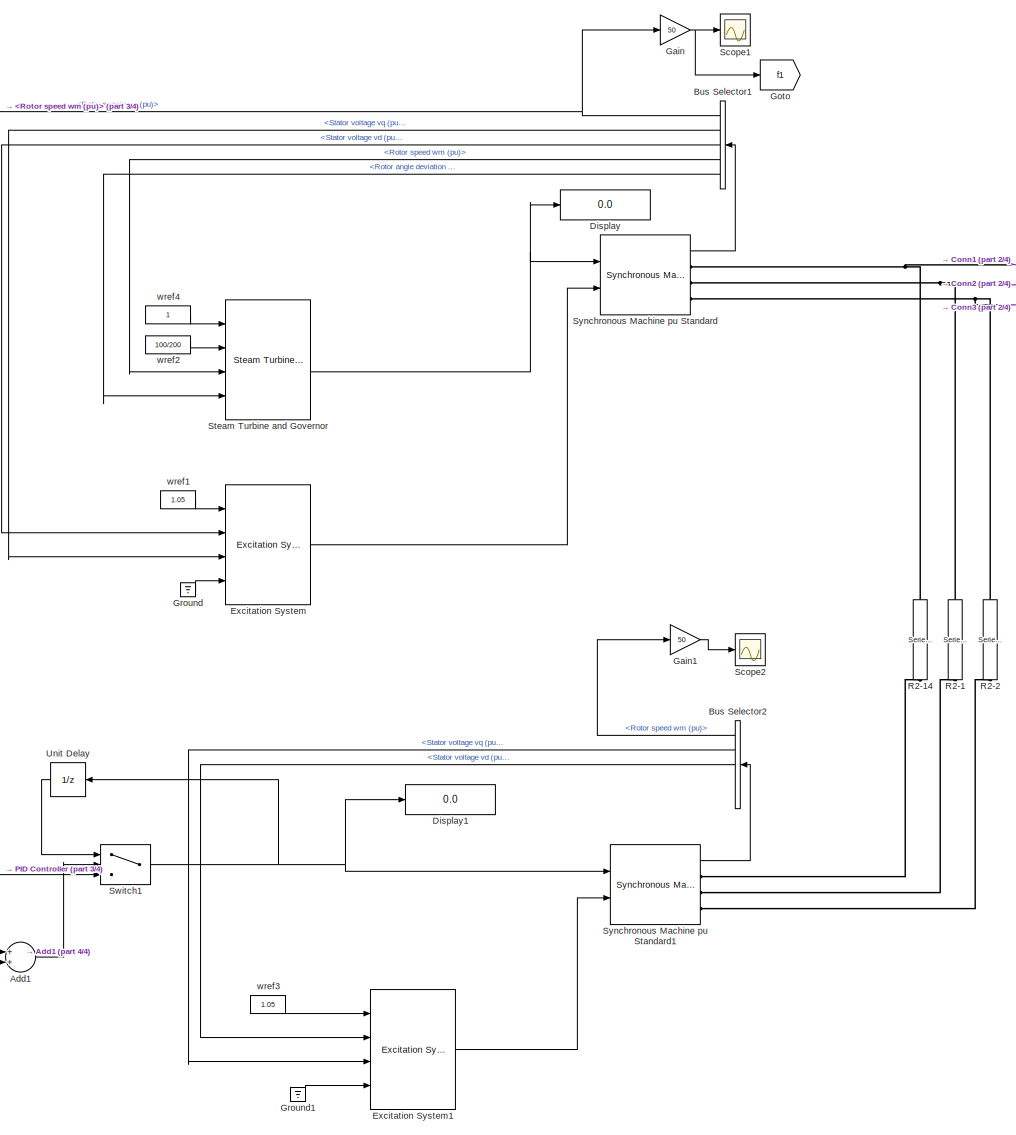
[diagram: Gen1 - part 1/4, center side, full height]
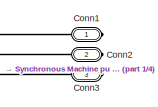
[diagram: Gen1 - part 2/4, top right region]
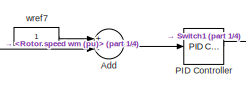
[diagram: Gen1 - part 3/4, bottom left region]
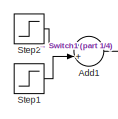
[diagram: Gen1 - part 4/4, bottom left region]
BLOCK [SubSystem] Gen1
  Ports = [0, 0, 0, 0, 0, 0, 3]
  RequestExecContextInheritance = off
  Variant = off
BLOCK [Sum] Gen1/Add
  InputSameDT = off
  Inputs = +-
  OutDataTypeStr = Inherit: Inherit via internal rule
  Ports = [2, 1]
  SaturateOnIntegerOverflow = off
BLOCK [Sum] Gen1/Add1
  InputSameDT = off
  OutDataTypeStr = Inherit: Inherit via internal rule
  Ports = [2, 1]
  SaturateOnIntegerOverflow = off
BLOCK [BusSelector] Gen1/Bus Selector1
  OutputSignals = Mechanical.Rotor speed  wm  (pu),dq0 components.Stator voltage  vq (pu),dq0 components.Stator voltage  vd (pu),Mechanical.Rotor speed  wm  (pu),Mechanical.Rotor angle deviation  d_theta (rad)
  Ports = [1, 5]
BLOCK [BusSelector] Gen1/Bus Selector2
  OutputSignals = Mechanical.Rotor speed  wm  (pu),dq0 components.Stator voltage  vq (pu),dq0 components.Stator voltage  vd (pu),Mechanical.Rotor speed  wm  (pu),Mechanical.Rotor angle deviation  d_theta (rad)
  Ports = [1, 5]
BLOCK [PMIOPort] Gen1/Conn1
  Port = 1
  Side = Right
BLOCK [PMIOPort] Gen1/Conn2
  Port = 2
  Side = Right
BLOCK [PMIOPort] Gen1/Conn3
  Port = 3
  Side = Right
BLOCK [Display] Gen1/Display
  Decimation = 1
  Ports = [1]
BLOCK [Display] Gen1/Display1
  Decimation = 1
  Ports = [1]
BLOCK [Reference] Gen1/Excitation System  REF=sps_avr/Excitation System
  Ports = [4, 1]
  SourceBlock = sps_avr/Excitation System
  SourceType = Excitation System
BLOCK [Reference] Gen1/Excitation System1  REF=sps_avr/Excitation System
  Ports = [4, 1]
  SourceBlock = sps_avr/Excitation System
  SourceType = Excitation System
BLOCK [Gain] Gen1/Gain
  Gain = 50
  OutDataTypeStr = Inherit: Inherit via internal rule
  ParamDataTypeStr = Inherit: Inherit via internal rule
  SaturateOnIntegerOverflow = off
BLOCK [Gain] Gen1/Gain1
  Gain = 50
  OutDataTypeStr = Inherit: Inherit via internal rule
  ParamDataTypeStr = Inherit: Inherit via internal rule
  SaturateOnIntegerOverflow = off
BLOCK [Goto] Gen1/Goto
  GotoTag = f1
  TagVisibility = global
BLOCK [Ground] Gen1/Ground
BLOCK [Ground] Gen1/Ground1
BLOCK [Reference] Gen1/PID Controller  REF=simulink/Continuous/PID Controller
  Ports = [1, 1]
  SourceBlock = simulink/Continuous/PID Controller
  SourceType = PID 1dof
BLOCK [Reference] Gen1/R2-1  REF=powerlib/Elements/Series RLC Branch
  Ports = [0, 0, 0, 0, 0, 1, 1]
  SourceBlock = powerlib/Elements/Series RLC Branch
  SourceType = Series RLC Branch
BLOCK [Reference] Gen1/R2-14  REF=powerlib/Elements/Series RLC Branch
  Ports = [0, 0, 0, 0, 0, 1, 1]
  SourceBlock = powerlib/Elements/Series RLC Branch
  SourceType = Series RLC Branch
BLOCK [Reference] Gen1/R2-2  REF=powerlib/Elements/Series RLC Branch
  Ports = [0, 0, 0, 0, 0, 1, 1]
  SourceBlock = powerlib/Elements/Series RLC Branch
  SourceType = Series RLC Branch
BLOCK [Scope] Gen1/Scope1
  Ports = [1]
  ScopeSpecificationString = Simulink.scopes.TimeScopeBlockCfg('CurrentConfiguration', extmgr.ConfigurationSet(extmgr.Configuration('Core','General UI',true),extmgr.Configuration('Core','Source UI',true),extmgr.Configuration('Sources','WiredSimulink',true,'DataLoggingVariableName','ScopeData1'),extmgr.Configuration('Visuals','Time Domain',true,'SerializedDisplays',{struct('MinYLimReal','49.91453','MaxYLimReal','50.01731','YLa...<+1446ch>
BLOCK [Scope] Gen1/Scope2
  Ports = [1]
  ScopeSpecificationString = Simulink.scopes.TimeScopeBlockCfg('CurrentConfiguration', extmgr.ConfigurationSet(extmgr.Configuration('Core','General UI',true),extmgr.Configuration('Core','Source UI',true),extmgr.Configuration('Sources','WiredSimulink',true,'DataLoggingVariableName','ScopeData1'),extmgr.Configuration('Visuals','Time Domain',true,'SerializedDisplays',{struct('MinYLimReal','49.80055','MaxYLimReal','50.03719','YLa...<+1447ch>
BLOCK [Reference] Gen1/Steam Turbine and Governor  REF=powerlib/Machines/Steam Turbine
and Governor
  Ports = [4, 4]
  SourceBlock = powerlib/Machines/Steam Turbine\nand Governor
  SourceType = Steam Turbine and Governor
BLOCK [Step] Gen1/Step1
  SampleTime = Ts
  Time = loadconnection-1
BLOCK [Step] Gen1/Step2
  After = 0
  Before = 1
  SampleTime = Ts
  Time = startup
BLOCK [Switch] Gen1/Switch1
  Criteria = u2 > Threshold
  InputSameDT = off
  SaturateOnIntegerOverflow = off
  Threshold = 0.5
BLOCK [Reference] Gen1/Synchronous Machine pu Standard  REF=powerlib/Machines/Synchronous Machine
pu Standard
  Ports = [2, 1, 0, 0, 0, 0, 3]
  SourceBlock = powerlib/Machines/Synchronous Machine\npu Standard
  SourceType = Synchronous Machine
BLOCK [Reference] Gen1/Synchronous Machine pu Standard1  REF=powerlib/Machines/Synchronous Machine
pu Standard
  Ports = [2, 1, 0, 0, 0, 0, 3]
  SourceBlock = powerlib/Machines/Synchronous Machine\npu Standard
  SourceType = Synchronous Machine
BLOCK [UnitDelay] Gen1/Unit Delay
  InputProcessing = Elements as channels (sample based)
  SampleTime = Ts
BLOCK [Constant] Gen1/wref1
  Value = 1.05
BLOCK [Constant] Gen1/wref2
  Value = 100/200
BLOCK [Constant] Gen1/wref3
  Value = 1.05
BLOCK [Constant] Gen1/wref4
BLOCK [Constant] Gen1/wref7
BLOCK [SubSystem] Gen2
  Ports = [0, 0, 0, 0, 0, 0, 3]
  RequestExecContextInheritance = off
  Variant = off
BLOCK [SubSystem] Gen2/B//2
  Ports = [0, 0, 0, 0, 0, 0, 3]
  RequestExecContextInheritance = off
  Variant = off
BLOCK [PMIOPort] Gen2/B//2/Conn1
  Port = 1
  Side = Right
BLOCK [PMIOPort] Gen2/B//2/Conn2
  Port = 2
  Side = Right
BLOCK [PMIOPort] Gen2/B//2/Conn3
  Port = 3
  Side = Right
BLOCK [Reference] Gen2/B//2/R2-1  REF=powerlib/Elements/Series RLC Branch
  Ports = [0, 0, 0, 0, 0, 1, 1]
  SourceBlock = powerlib/Elements/Series RLC Branch
  SourceType = Series RLC Branch
BLOCK [Reference] Gen2/B//2/R2-2  REF=powerlib/Elements/Series RLC Branch
  Ports = [0, 0, 0, 0, 0, 1, 1]
  SourceBlock = powerlib/Elements/Series RLC Branch
  SourceType = Series RLC Branch
BLOCK [Reference] Gen2/B//2/R2-32  REF=powerlib/Elements/Series RLC Branch
  Ports = [0, 0, 0, 0, 0, 1, 1]
  SourceBlock = powerlib/Elements/Series RLC Branch
  SourceType = Series RLC Branch
BLOCK [BusSelector] Gen2/Bus Selector1
  OutputSignals = Mechanical.Rotor speed  wm  (pu),dq0 components.Stator voltage  vq (pu),dq0 components.Stator voltage  vd (pu),Mechanical.Rotor speed deviation  dw (pu),Output active power   Peo (pu)
  Ports = [1, 5]
BLOCK [PMIOPort] Gen2/Conn1
  Port = 1
  Side = Right
BLOCK [PMIOPort] Gen2/Conn2
  Port = 2
  Side = Right
BLOCK [PMIOPort] Gen2/Conn3
  Port = 3
  Side = Right
BLOCK [Reference] Gen2/Excitation System  REF=sps_avr/Excitation System
  Ports = [4, 1]
  SourceBlock = sps_avr/Excitation System
  SourceType = Excitation System
BLOCK [Gain] Gen2/Gain
  Gain = 50
  OutDataTypeStr = Inherit: Inherit via internal rule
  ParamDataTypeStr = Inherit: Inherit via internal rule
  SaturateOnIntegerOverflow = off
BLOCK [Goto] Gen2/Goto
  GotoTag = f2
  TagVisibility = global
BLOCK [Ground] Gen2/Ground
BLOCK [Reference] Gen2/Hydraulic Turbine and Governor  REF=powerlib/Machines/Hydraulic Turbine
and Governor
  Ports = [5, 2]
  SourceBlock = powerlib/Machines/Hydraulic Turbine\nand Governor
  SourceType = Hydraulic Turbine and Governor
BLOCK [Reference] Gen2/Synchronous Machine pu Standard  REF=powerlib/Machines/Synchronous Machine
pu Standard
  Ports = [2, 1, 0, 0, 0, 0, 3]
  SourceBlock = powerlib/Machines/Synchronous Machine\npu Standard
  SourceType = Synchronous Machine
BLOCK [Constant] Gen2/wref1
  Value = 1.05
BLOCK [Constant] Gen2/wref2
  Value = 50/150
BLOCK [Constant] Gen2/wref3
BLOCK [SubSystem] Gen3
  Ports = [0, 0, 0, 0, 0, 0, 3]
  RequestExecContextInheritance = off
  Variant = off
BLOCK [BusSelector] Gen3/Bus Selector1
  OutputSignals = Mechanical.Rotor speed  wm  (pu),dq0 components.Stator voltage  vq (pu),dq0 components.Stator voltage  vd (pu),Mechanical.Rotor speed deviation  dw (pu),Output active power   Peo (pu)
  Ports = [1, 5]
BLOCK [PMIOPort] Gen3/Conn1
  Port = 1
  Side = Right
BLOCK [PMIOPort] Gen3/Conn2
  Port = 2
  Side = Right
BLOCK [PMIOPort] Gen3/Conn3
  Port = 3
  Side = Right
BLOCK [Reference] Gen3/Excitation System  REF=sps_avr/Excitation System
  Ports = [4, 1]
  SourceBlock = sps_avr/Excitation System
  SourceType = Excitation System
BLOCK [Gain] Gen3/Gain
  Gain = 50
  OutDataTypeStr = Inherit: Inherit via internal rule
  ParamDataTypeStr = Inherit: Inherit via internal rule
  SaturateOnIntegerOverflow = off
BLOCK [Goto] Gen3/Goto
  GotoTag = f3
  TagVisibility = global
BLOCK [Ground] Gen3/Ground
BLOCK [Reference] Gen3/Hydraulic Turbine and Governor1  REF=powerlib/Machines/Hydraulic Turbine
and Governor
  Ports = [5, 2]
  SourceBlock = powerlib/Machines/Hydraulic Turbine\nand Governor
  SourceType = Hydraulic Turbine and Governor
BLOCK [Scope] Gen3/Scope2
  Ports = [1]
  ScopeSpecificationString = Simulink.scopes.TimeScopeBlockCfg('CurrentConfiguration', extmgr.ConfigurationSet(extmgr.Configuration('Core','General UI',true),extmgr.Configuration('Core','Source UI',true),extmgr.Configuration('Sources','WiredSimulink',true,'DataLoggingVariableName','ScopeData5','DataLoggingSaveFormat','Array','DataLoggingDecimation','1','DataLoggingDecimateData',true),extmgr.Configuration('Visuals','Time Domai...<+1527ch>
BLOCK [Scope] Gen3/Scope3
  Ports = [1]
  ScopeSpecificationString = Simulink.scopes.TimeScopeBlockCfg('CurrentConfiguration', extmgr.ConfigurationSet(extmgr.Configuration('Core','General UI',true),extmgr.Configuration('Core','Source UI',true),extmgr.Configuration('Sources','WiredSimulink',true,'DataLoggingVariableName','ScopeData1','DataLoggingSaveFormat','Array','DataLoggingDecimation','1','DataLoggingDecimateData',true),extmgr.Configuration('Visuals','Time Domai...<+1520ch>
BLOCK [Scope] Gen3/Scope4
  Ports = [1]
  ScopeSpecificationString = Simulink.scopes.TimeScopeBlockCfg('CurrentConfiguration', extmgr.ConfigurationSet(extmgr.Configuration('Core','General UI',true),extmgr.Configuration('Core','Source UI',true),extmgr.Configuration('Sources','WiredSimulink',true,'DataLoggingVariableName','ScopeData6','DataLoggingSaveFormat','Array','DataLoggingDecimation','1','DataLoggingDecimateData',true),extmgr.Configuration('Visuals','Time Domai...<+1501ch>
BLOCK [Reference] Gen3/Synchronous Machine pu Standard  REF=powerlib/Machines/Synchronous Machine
pu Standard
  Ports = [2, 1, 0, 0, 0, 0, 3]
  SourceBlock = powerlib/Machines/Synchronous Machine\npu Standard
  SourceType = Synchronous Machine
BLOCK [Constant] Gen3/wref1
  Value = 1.07
BLOCK [Constant] Gen3/wref2
  Value = 60/180
BLOCK [Constant] Gen3/wref3
BLOCK [Scope] Generation//Consumption
  NumInputPorts = 2
  Ports = [2]
  ScopeSpecificationString = Simulink.scopes.TimeScopeBlockCfg('CurrentConfiguration', extmgr.ConfigurationSet(extmgr.Configuration('Core','General UI',true),extmgr.Configuration('Core','Source UI',true),extmgr.Configuration('Sources','WiredSimulink',true,'DataLoggingVariableName','ScopeData3'),extmgr.Configuration('Visuals','Time Domain',true,'SerializedDisplays',{struct('MinYLimReal','193339895.83212','MaxYLimReal','2217153...<+1502ch>
BLOCK [Scope] Generations
  NumInputPorts = 3
  Ports = [3]
  ScopeSpecificationString = Simulink.scopes.TimeScopeBlockCfg('CurrentConfiguration', extmgr.ConfigurationSet(extmgr.Configuration('Core','General UI',true),extmgr.Configuration('Core','Source UI',true),extmgr.Configuration('Sources','WiredSimulink',true,'DataLoggingVariableName','ScopeData1'),extmgr.Configuration('Visuals','Time Domain',true,'SerializedDisplays',{struct('MinYLimReal','-16082328.52042','MaxYLimReal','1447409...<+1577ch>
BLOCK [Goto] Goto
  GotoTag = power2
BLOCK [Goto] Goto1
  GotoTag = power1
BLOCK [Goto] Goto13
  GotoTag = fgrid
  TagVisibility = global
BLOCK [Goto] Goto2
  GotoTag = power3
BLOCK [Goto] Goto23
  GotoTag = rocof
  TagVisibility = global
BLOCK [Goto] Goto3
  GotoTag = load6
BLOCK [Goto] Goto4
  GotoTag = load5
BLOCK [Goto] Goto5
  GotoTag = load4
BLOCK [SubSystem] Line 2-4
  Ports = [0, 0, 0, 0, 0, 3, 3]
  RequestExecContextInheritance = off
  Variant = off
BLOCK [SubSystem] Line 2-4/B//1
  Ports = [0, 0, 0, 0, 0, 0, 3]
  RequestExecContextInheritance = off
  Variant = off
BLOCK [PMIOPort] Line 2-4/B//1/Conn1
  Port = 1
  Side = Right
BLOCK [PMIOPort] Line 2-4/B//1/Conn2
  Port = 2
  Side = Right
BLOCK [PMIOPort] Line 2-4/B//1/Conn3
  Port = 3
  Side = Right
BLOCK [Reference] Line 2-4/B//1/Ground  REF=powerlib/Elements/Ground
  Ports = [0, 0, 0, 0, 0, 1]
  SourceBlock = powerlib/Elements/Ground
  SourceType = Ground
BLOCK [Reference] Line 2-4/B//1/R2-1  REF=powerlib/Elements/Series RLC Branch
  Ports = [0, 0, 0, 0, 0, 1, 1]
  SourceBlock = powerlib/Elements/Series RLC Branch
  SourceType = Series RLC Branch
BLOCK [Reference] Line 2-4/B//1/R2-2  REF=powerlib/Elements/Series RLC Branch
  Ports = [0, 0, 0, 0, 0, 1, 1]
  SourceBlock = powerlib/Elements/Series RLC Branch
  SourceType = Series RLC Branch
BLOCK [Reference] Line 2-4/B//1/R2-32  REF=powerlib/Elements/Series RLC Branch
  Ports = [0, 0, 0, 0, 0, 1, 1]
  SourceBlock = powerlib/Elements/Series RLC Branch
  SourceType = Series RLC Branch
BLOCK [SubSystem] Line 2-4/B//2
  Ports = [0, 0, 0, 0, 0, 0, 3]
  RequestExecContextInheritance = off
  Variant = off
BLOCK [PMIOPort] Line 2-4/B//2/Conn1
  Port = 1
  Side = Right
BLOCK [PMIOPort] Line 2-4/B//2/Conn2
  Port = 2
  Side = Right
BLOCK [PMIOPort] Line 2-4/B//2/Conn3
  Port = 3
  Side = Right
BLOCK [Reference] Line 2-4/B//2/Ground  REF=powerlib/Elements/Ground
  Ports = [0, 0, 0, 0, 0, 1]
  SourceBlock = powerlib/Elements/Ground
  SourceType = Ground
BLOCK [Reference] Line 2-4/B//2/R2-1  REF=powerlib/Elements/Series RLC Branch
  Ports = [0, 0, 0, 0, 0, 1, 1]
  SourceBlock = powerlib/Elements/Series RLC Branch
  SourceType = Series RLC Branch
BLOCK [Reference] Line 2-4/B//2/R2-2  REF=powerlib/Elements/Series RLC Branch
  Ports = [0, 0, 0, 0, 0, 1, 1]
  SourceBlock = powerlib/Elements/Series RLC Branch
  SourceType = Series RLC Branch
BLOCK [Reference] Line 2-4/B//2/R2-32  REF=powerlib/Elements/Series RLC Branch
  Ports = [0, 0, 0, 0, 0, 1, 1]
  SourceBlock = powerlib/Elements/Series RLC Branch
  SourceType = Series RLC Branch
BLOCK [PMIOPort] Line 2-4/Conn1
  Port = 1
  Side = Right
BLOCK [PMIOPort] Line 2-4/Conn2
  Port = 2
  Side = Right
BLOCK [PMIOPort] Line 2-4/Conn3
  Port = 3
  Side = Right
BLOCK [PMIOPort] Line 2-4/Conn4
  Port = 4
  Side = Left
BLOCK [PMIOPort] Line 2-4/Conn5
  Port = 5
  Side = Left
BLOCK [PMIOPort] Line 2-4/Conn6
  Port = 6
  Side = Left
BLOCK [Reference] Line 2-4/R2-20  REF=powerlib/Elements/Series RLC Branch
  Ports = [0, 0, 0, 0, 0, 1, 1]
  SourceBlock = powerlib/Elements/Series RLC Branch
  SourceType = Series RLC Branch
BLOCK [Reference] Line 2-4/R2-22  REF=powerlib/Elements/Series RLC Branch
  Ports = [0, 0, 0, 0, 0, 1, 1]
  SourceBlock = powerlib/Elements/Series RLC Branch
  SourceType = Series RLC Branch
BLOCK [Reference] Line 2-4/R2-3  REF=powerlib/Elements/Series RLC Branch
  Ports = [0, 0, 0, 0, 0, 1, 1]
  SourceBlock = powerlib/Elements/Series RLC Branch
  SourceType = Series RLC Branch
BLOCK [Scope] Loads
  NumInputPorts = 3
  Ports = [3]
  ScopeSpecificationString = Simulink.scopes.TimeScopeBlockCfg('CurrentConfiguration', extmgr.ConfigurationSet(extmgr.Configuration('Core','General UI',true),extmgr.Configuration('Core','Source UI',true),extmgr.Configuration('Sources','WiredSimulink',true,'DataLoggingVariableName','ScopeData2'),extmgr.Configuration('Visuals','Time Domain',true,'SerializedDisplays',{struct('MinYLimReal','-10580805.54072','MaxYLimReal','9522724...<+1545ch>
BLOCK [Scope] Losses
  Ports = [1]
  ScopeSpecificationString = Simulink.scopes.TimeScopeBlockCfg('CurrentConfiguration', extmgr.ConfigurationSet(extmgr.Configuration('Core','General UI',true),extmgr.Configuration('Core','Source UI',true),extmgr.Configuration('Sources','WiredSimulink',true,'DataLoggingVariableName','ScopeData7'),extmgr.Configuration('Visuals','Time Domain',true,'SerializedDisplays',{struct('MinYLimReal','-2884672.68491','MaxYLimReal','25962054...<+1480ch>
BLOCK [Scope] Losses1
  Ports = [1]
  ScopeSpecificationString = Simulink.scopes.TimeScopeBlockCfg('CurrentConfiguration', extmgr.ConfigurationSet(extmgr.Configuration('Core','General UI',true),extmgr.Configuration('Core','Source UI',true),extmgr.Configuration('Sources','WiredSimulink',true,'DataLoggingVariableName','ScopeData2'),extmgr.Configuration('Visuals','Time Domain',true,'SerializedDisplays',{struct('MinYLimReal','-8956370.10397','MaxYLimReal','22956923...<+1509ch>
BLOCK [Reference] Power (Positive-Sequence)  REF=powerlib_meascontrol/Measurements/Power
(Positive-Sequence)
  Ports = [2, 2]
  SourceBlock = powerlib_meascontrol/Measurements/Power\n(Positive-Sequence)
  SourceType = Power (Positive-Sequence)
BLOCK [Reference] Power (Positive-Sequence)1  REF=powerlib_meascontrol/Measurements/Power
(Positive-Sequence)
  Ports = [2, 2]
  SourceBlock = powerlib_meascontrol/Measurements/Power\n(Positive-Sequence)
  SourceType = Power (Positive-Sequence)
BLOCK [Reference] Power (Positive-Sequence)2  REF=powerlib_meascontrol/Measurements/Power
(Positive-Sequence)
  Ports = [2, 2]
  SourceBlock = powerlib_meascontrol/Measurements/Power\n(Positive-Sequence)
  SourceType = Power (Positive-Sequence)
BLOCK [Reference] Power (Positive-Sequence)3  REF=powerlib_meascontrol/Measurements/Power
(Positive-Sequence)
  Ports = [2, 2]
  SourceBlock = powerlib_meascontrol/Measurements/Power\n(Positive-Sequence)
  SourceType = Power (Positive-Sequence)
BLOCK [Reference] Power (Positive-Sequence)4  REF=powerlib_meascontrol/Measurements/Power
(Positive-Sequence)
  Ports = [2, 2]
  SourceBlock = powerlib_meascontrol/Measurements/Power\n(Positive-Sequence)
  SourceType = Power (Positive-Sequence)
BLOCK [Reference] Power (Positive-Sequence)5  REF=powerlib_meascontrol/Measurements/Power
(Positive-Sequence)
  Ports = [2, 2]
  SourceBlock = powerlib_meascontrol/Measurements/Power\n(Positive-Sequence)
  SourceType = Power (Positive-Sequence)
BLOCK [Reference] Power (Positive-Sequence)6  REF=powerlib_meascontrol/Measurements/Power
(Positive-Sequence)
  Ports = [2, 2]
  SourceBlock = powerlib_meascontrol/Measurements/Power\n(Positive-Sequence)
  SourceType = Power (Positive-Sequence)
BLOCK [Reference] R2-2  REF=powerlib/Elements/Series RLC Branch
  Ports = [0, 0, 0, 0, 0, 1, 1]
  SourceBlock = powerlib/Elements/Series RLC Branch
  SourceType = Series RLC Branch
BLOCK [Reference] R2-32  REF=powerlib/Elements/Series RLC Branch
  Ports = [0, 0, 0, 0, 0, 1, 1]
  SourceBlock = powerlib/Elements/Series RLC Branch
  SourceType = Series RLC Branch
BLOCK [Scope] Scope1
  NumInputPorts = 2
  Ports = [2]
  ScopeSpecificationString = Simulink.scopes.TimeScopeBlockCfg('CurrentConfiguration', extmgr.ConfigurationSet(extmgr.Configuration('Core','General UI',true),extmgr.Configuration('Core','Source UI',true),extmgr.Configuration('Sources','WiredSimulink',true,'DataLoggingVariableName','ScopeData2'),extmgr.Configuration('Visuals','Time Domain',true,'SerializedDisplays',{struct('MinYLimReal','406.71877','MaxYLimReal','669.12552','Y...<+1504ch>
BLOCK [Scope] Scope10
  NumInputPorts = 2
  Ports = [2]
  ScopeSpecificationString = Simulink.scopes.TimeScopeBlockCfg('CurrentConfiguration', extmgr.ConfigurationSet(extmgr.Configuration('Core','General UI',true),extmgr.Configuration('Core','Source UI',true),extmgr.Configuration('Sources','WiredSimulink',true,'DataLoggingVariableName','ScopeData3'),extmgr.Configuration('Visuals','Time Domain',true,'SerializedDisplays',{struct('MinYLimReal','-11599458.23586','MaxYLimReal','1043951...<+1547ch>
BLOCK [Scope] Scope11
  NumInputPorts = 2
  Ports = [2]
  ScopeSpecificationString = Simulink.scopes.TimeScopeBlockCfg('CurrentConfiguration', extmgr.ConfigurationSet(extmgr.Configuration('Core','General UI',true),extmgr.Configuration('Core','Source UI',true),extmgr.Configuration('Sources','WiredSimulink',true,'DataLoggingVariableName','ScopeData4'),extmgr.Configuration('Visuals','Time Domain',true,'SerializedDisplays',{struct('MinYLimReal','60765076.70875','MaxYLimReal','77706058...<+1524ch>
BLOCK [Scope] Scope12
  NumInputPorts = 2
  Ports = [2]
  ScopeSpecificationString = Simulink.scopes.TimeScopeBlockCfg('CurrentConfiguration', extmgr.ConfigurationSet(extmgr.Configuration('Core','General UI',true),extmgr.Configuration('Core','Source UI',true),extmgr.Configuration('Sources','WiredSimulink',true,'DataLoggingVariableName','ScopeData5'),extmgr.Configuration('Visuals','Time Domain',true,'SerializedDisplays',{struct('MinYLimReal','92247842.49499','MaxYLimReal','99445503...<+1524ch>
BLOCK [Scope] Scope2
  NumInputPorts = 2
  Ports = [2]
  ScopeSpecificationString = Simulink.scopes.TimeScopeBlockCfg('CurrentConfiguration', extmgr.ConfigurationSet(extmgr.Configuration('Core','General UI',true),extmgr.Configuration('Core','Source UI',true),extmgr.Configuration('Sources','WiredSimulink',true,'DataLoggingVariableName','ScopeData3'),extmgr.Configuration('Visuals','Time Domain',true,'SerializedDisplays',{struct('MinYLimReal','-758.22079','MaxYLimReal','771.04857','...<+1504ch>
BLOCK [Scope] Scope3
  NumInputPorts = 2
  Ports = [2]
  ScopeSpecificationString = Simulink.scopes.TimeScopeBlockCfg('CurrentConfiguration', extmgr.ConfigurationSet(extmgr.Configuration('Core','General UI',true),extmgr.Configuration('Core','Source UI',true),extmgr.Configuration('Sources','WiredSimulink',true,'DataLoggingVariableName','ScopeData1'),extmgr.Configuration('Visuals','Time Domain',true,'SerializedDisplays',{struct('MinYLimReal','86463981.98429','MaxYLimReal','12100511...<+1541ch>
BLOCK [Scope] Scope4
  NumInputPorts = 2
  Ports = [2]
  ScopeSpecificationString = Simulink.scopes.TimeScopeBlockCfg('CurrentConfiguration', extmgr.ConfigurationSet(extmgr.Configuration('Core','General UI',true),extmgr.Configuration('Core','Source UI',true),extmgr.Configuration('Sources','WiredSimulink',true,'DataLoggingVariableName','ScopeData1'),extmgr.Configuration('Visuals','Time Domain',true,'SerializedDisplays',{struct('MinYLimReal','538.08008','MaxYLimReal','567.10288','Y...<+1504ch>
BLOCK [Scope] Scope5
  NumInputPorts = 2
  Ports = [2]
  ScopeSpecificationString = Simulink.scopes.TimeScopeBlockCfg('CurrentConfiguration', extmgr.ConfigurationSet(extmgr.Configuration('Core','General UI',true),extmgr.Configuration('Core','Source UI',true),extmgr.Configuration('Sources','WiredSimulink',true,'DataLoggingVariableName','ScopeData2'),extmgr.Configuration('Visuals','Time Domain',true,'SerializedDisplays',{struct('MinYLimReal','-733.12342','MaxYLimReal','794.91287','...<+1504ch>
BLOCK [Scope] Scope6
  NumInputPorts = 2
  Ports = [2]
  ScopeSpecificationString = Simulink.scopes.TimeScopeBlockCfg('CurrentConfiguration', extmgr.ConfigurationSet(extmgr.Configuration('Core','General UI',true),extmgr.Configuration('Core','Source UI',true),extmgr.Configuration('Sources','WiredSimulink',true,'DataLoggingVariableName','ScopeData3'),extmgr.Configuration('Visuals','Time Domain',true,'SerializedDisplays',{struct('MinYLimReal','-9262353.13252','MaxYLimReal','83361178...<+1522ch>
BLOCK [Scope] Scope7
  NumInputPorts = 2
  Ports = [2]
  ScopeSpecificationString = Simulink.scopes.TimeScopeBlockCfg('CurrentConfiguration', extmgr.ConfigurationSet(extmgr.Configuration('Core','General UI',true),extmgr.Configuration('Core','Source UI',true),extmgr.Configuration('Sources','WiredSimulink',true,'DataLoggingVariableName','ScopeData2'),extmgr.Configuration('Visuals','Time Domain',true,'SerializedDisplays',{struct('MinYLimReal','591.73369','MaxYLimReal','614.80823','Y...<+1504ch>
BLOCK [Scope] Scope8
  NumInputPorts = 3
  Ports = [3]
  ScopeSpecificationString = Simulink.scopes.TimeScopeBlockCfg('CurrentConfiguration', extmgr.ConfigurationSet(extmgr.Configuration('Core','General UI',true),extmgr.Configuration('Core','Source UI',true),extmgr.Configuration('Sources','WiredSimulink',true,'DataLoggingVariableName','ScopeData1'),extmgr.Configuration('Visuals','Time Domain',true,'SerializedDisplays',{struct('MinYLimReal','49.76614','MaxYLimReal','50.02397','YLa...<+1455ch>
BLOCK [Scope] Scope9
  NumInputPorts = 2
  Ports = [2]
  ScopeSpecificationString = Simulink.scopes.TimeScopeBlockCfg('CurrentConfiguration', extmgr.ConfigurationSet(extmgr.Configuration('Core','General UI',true),extmgr.Configuration('Core','Source UI',true),extmgr.Configuration('Sources','WiredSimulink',true,'DataLoggingVariableName','ScopeData2'),extmgr.Configuration('Visuals','Time Domain',true,'SerializedDisplays',{struct('MinYLimReal','45497127.34033','MaxYLimReal','46687233...<+1540ch>
BLOCK [Reference] Second-Order Filter1  REF=powerlib_meascontrol/Filters/Second-Order
Filter
  Ports = [1, 1]
  SourceBlock = powerlib_meascontrol/Filters/Second-Order\nFilter
  SourceType = Second-Order Filter
BLOCK [SubSystem] Subsystem
  Ports = [0, 0, 0, 0, 0, 3, 3]
  RequestExecContextInheritance = off
  Variant = off
BLOCK [SubSystem] Subsystem/B//1
  Ports = [0, 0, 0, 0, 0, 0, 3]
  RequestExecContextInheritance = off
  Variant = off
BLOCK [Reference] Subsystem/B//1/C1  REF=powerlib/Elements/Series RLC Branch
  Ports = [0, 0, 0, 0, 0, 1, 1]
  SourceBlock = powerlib/Elements/Series RLC Branch
  SourceType = Series RLC Branch
BLOCK [Reference] Subsystem/B//1/C2  REF=powerlib/Elements/Series RLC Branch
  Ports = [0, 0, 0, 0, 0, 1, 1]
  SourceBlock = powerlib/Elements/Series RLC Branch
  SourceType = Series RLC Branch
BLOCK [Reference] Subsystem/B//1/C3  REF=powerlib/Elements/Series RLC Branch
  Ports = [0, 0, 0, 0, 0, 1, 1]
  SourceBlock = powerlib/Elements/Series RLC Branch
  SourceType = Series RLC Branch
BLOCK [PMIOPort] Subsystem/B//1/Conn1
  Port = 1
  Side = Right
BLOCK [PMIOPort] Subsystem/B//1/Conn2
  Port = 2
  Side = Right
BLOCK [PMIOPort] Subsystem/B//1/Conn3
  Port = 3
  Side = Right
BLOCK [Reference] Subsystem/B//1/Ground  REF=powerlib/Elements/Ground
  Ports = [0, 0, 0, 0, 0, 1]
  SourceBlock = powerlib/Elements/Ground
  SourceType = Ground
BLOCK [SubSystem] Subsystem/B//3
  Ports = [0, 0, 0, 0, 0, 0, 3]
  RequestExecContextInheritance = off
  Variant = off
BLOCK [Reference] Subsystem/B//3/C1  REF=powerlib/Elements/Series RLC Branch
  Ports = [0, 0, 0, 0, 0, 1, 1]
  SourceBlock = powerlib/Elements/Series RLC Branch
  SourceType = Series RLC Branch
BLOCK [Reference] Subsystem/B//3/C2  REF=powerlib/Elements/Series RLC Branch
  Ports = [0, 0, 0, 0, 0, 1, 1]
  SourceBlock = powerlib/Elements/Series RLC Branch
  SourceType = Series RLC Branch
BLOCK [Reference] Subsystem/B//3/C3  REF=powerlib/Elements/Series RLC Branch
  Ports = [0, 0, 0, 0, 0, 1, 1]
  SourceBlock = powerlib/Elements/Series RLC Branch
  SourceType = Series RLC Branch
BLOCK [PMIOPort] Subsystem/B//3/Conn1
  Port = 1
  Side = Right
BLOCK [PMIOPort] Subsystem/B//3/Conn2
  Port = 2
  Side = Right
BLOCK [PMIOPort] Subsystem/B//3/Conn3
  Port = 3
  Side = Right
BLOCK [Reference] Subsystem/B//3/Ground  REF=powerlib/Elements/Ground
  Ports = [0, 0, 0, 0, 0, 1]
  SourceBlock = powerlib/Elements/Ground
  SourceType = Ground
BLOCK [PMIOPort] Subsystem/Conn1
  Port = 1
  Side = Right
BLOCK [PMIOPort] Subsystem/Conn2
  Port = 2
  Side = Right
BLOCK [PMIOPort] Subsystem/Conn3
  Port = 3
  Side = Right
BLOCK [PMIOPort] Subsystem/Conn4
  Port = 4
  Side = Left
BLOCK [PMIOPort] Subsystem/Conn5
  Port = 5
  Side = Left
BLOCK [PMIOPort] Subsystem/Conn6
  Port = 6
  Side = Left
BLOCK [Reference] Subsystem/L1-2   REF=powerlib/Elements/Series RLC Branch
  Ports = [0, 0, 0, 0, 0, 1, 1]
  SourceBlock = powerlib/Elements/Series RLC Branch
  SourceType = Series RLC Branch
BLOCK [Reference] Subsystem/L1-2 (2)  REF=powerlib/Elements/Series RLC Branch
  Ports = [0, 0, 0, 0, 0, 1, 1]
  SourceBlock = powerlib/Elements/Series RLC Branch
  SourceType = Series RLC Branch
BLOCK [Reference] Subsystem/L1-2(3)  REF=powerlib/Elements/Series RLC Branch
  Ports = [0, 0, 0, 0, 0, 1, 1]
  SourceBlock = powerlib/Elements/Series RLC Branch
  SourceType = Series RLC Branch
BLOCK [SubSystem] Subsystem1
  Ports = [0, 0, 0, 0, 0, 3, 3]
  RequestExecContextInheritance = off
  Variant = off
BLOCK [SubSystem] Subsystem1/B//1
  Ports = [0, 0, 0, 0, 0, 0, 3]
  RequestExecContextInheritance = off
  Variant = off
BLOCK [PMIOPort] Subsystem1/B//1/Conn1
  Port = 1
  Side = Right
BLOCK [PMIOPort] Subsystem1/B//1/Conn2
  Port = 2
  Side = Right
BLOCK [PMIOPort] Subsystem1/B//1/Conn3
  Port = 3
  Side = Right
BLOCK [Reference] Subsystem1/B//1/Ground  REF=powerlib/Elements/Ground
  Ports = [0, 0, 0, 0, 0, 1]
  SourceBlock = powerlib/Elements/Ground
  SourceType = Ground
BLOCK [Reference] Subsystem1/B//1/R2-1  REF=powerlib/Elements/Series RLC Branch
  Ports = [0, 0, 0, 0, 0, 1, 1]
  SourceBlock = powerlib/Elements/Series RLC Branch
  SourceType = Series RLC Branch
BLOCK [Reference] Subsystem1/B//1/R2-2  REF=powerlib/Elements/Series RLC Branch
  Ports = [0, 0, 0, 0, 0, 1, 1]
  SourceBlock = powerlib/Elements/Series RLC Branch
  SourceType = Series RLC Branch
BLOCK [Reference] Subsystem1/B//1/R2-32  REF=powerlib/Elements/Series RLC Branch
  Ports = [0, 0, 0, 0, 0, 1, 1]
  SourceBlock = powerlib/Elements/Series RLC Branch
  SourceType = Series RLC Branch
BLOCK [SubSystem] Subsystem1/B//5
  Ports = [0, 0, 0, 0, 0, 0, 3]
  RequestExecContextInheritance = off
  Variant = off
BLOCK [PMIOPort] Subsystem1/B//5/Conn1
  Port = 1
  Side = Right
BLOCK [PMIOPort] Subsystem1/B//5/Conn2
  Port = 2
  Side = Right
BLOCK [PMIOPort] Subsystem1/B//5/Conn3
  Port = 3
  Side = Right
BLOCK [Reference] Subsystem1/B//5/Ground  REF=powerlib/Elements/Ground
  Ports = [0, 0, 0, 0, 0, 1]
  SourceBlock = powerlib/Elements/Ground
  SourceType = Ground
BLOCK [Reference] Subsystem1/B//5/R2-1  REF=powerlib/Elements/Series RLC Branch
  Ports = [0, 0, 0, 0, 0, 1, 1]
  SourceBlock = powerlib/Elements/Series RLC Branch
  SourceType = Series RLC Branch
BLOCK [Reference] Subsystem1/B//5/R2-2  REF=powerlib/Elements/Series RLC Branch
  Ports = [0, 0, 0, 0, 0, 1, 1]
  SourceBlock = powerlib/Elements/Series RLC Branch
  SourceType = Series RLC Branch
BLOCK [Reference] Subsystem1/B//5/R2-32  REF=powerlib/Elements/Series RLC Branch
  Ports = [0, 0, 0, 0, 0, 1, 1]
  SourceBlock = powerlib/Elements/Series RLC Branch
  SourceType = Series RLC Branch
BLOCK [PMIOPort] Subsystem1/Conn1
  Port = 1
  Side = Right
BLOCK [PMIOPort] Subsystem1/Conn2
  Port = 2
  Side = Right
BLOCK [PMIOPort] Subsystem1/Conn3
  Port = 3
  Side = Right
BLOCK [PMIOPort] Subsystem1/Conn4
  Port = 4
  Side = Left
BLOCK [PMIOPort] Subsystem1/Conn5
  Port = 5
  Side = Left
BLOCK [PMIOPort] Subsystem1/Conn6
  Port = 6
  Side = Left
BLOCK [Reference] Subsystem1/R2-17  REF=powerlib/Elements/Series RLC Branch
  Ports = [0, 0, 0, 0, 0, 1, 1]
  SourceBlock = powerlib/Elements/Series RLC Branch
  SourceType = Series RLC Branch
BLOCK [Reference] Subsystem1/R2-18  REF=powerlib/Elements/Series RLC Branch
  Ports = [0, 0, 0, 0, 0, 1, 1]
  SourceBlock = powerlib/Elements/Series RLC Branch
  SourceType = Series RLC Branch
BLOCK [Reference] Subsystem1/R2-19  REF=powerlib/Elements/Series RLC Branch
  Ports = [0, 0, 0, 0, 0, 1, 1]
  SourceBlock = powerlib/Elements/Series RLC Branch
  SourceType = Series RLC Branch
BLOCK [SubSystem] Subsystem2
  Ports = [0, 0, 0, 0, 0, 3, 3]
  RequestExecContextInheritance = off
  Variant = off
BLOCK [SubSystem] Subsystem2/B//7
  Ports = [0, 0, 0, 0, 0, 0, 3]
  RequestExecContextInheritance = off
  Variant = off
BLOCK [PMIOPort] Subsystem2/B//7/Conn1
  Port = 1
  Side = Right
BLOCK [PMIOPort] Subsystem2/B//7/Conn2
  Port = 2
  Side = Right
BLOCK [PMIOPort] Subsystem2/B//7/Conn3
  Port = 3
  Side = Right
BLOCK [Reference] Subsystem2/B//7/Ground  REF=powerlib/Elements/Ground
  Ports = [0, 0, 0, 0, 0, 1]
  SourceBlock = powerlib/Elements/Ground
  SourceType = Ground
BLOCK [Reference] Subsystem2/B//7/R2-1  REF=powerlib/Elements/Series RLC Branch
  Ports = [0, 0, 0, 0, 0, 1, 1]
  SourceBlock = powerlib/Elements/Series RLC Branch
  SourceType = Series RLC Branch
BLOCK [Reference] Subsystem2/B//7/R2-2  REF=powerlib/Elements/Series RLC Branch
  Ports = [0, 0, 0, 0, 0, 1, 1]
  SourceBlock = powerlib/Elements/Series RLC Branch
  SourceType = Series RLC Branch
BLOCK [Reference] Subsystem2/B//7/R2-32  REF=powerlib/Elements/Series RLC Branch
  Ports = [0, 0, 0, 0, 0, 1, 1]
  SourceBlock = powerlib/Elements/Series RLC Branch
  SourceType = Series RLC Branch
BLOCK [SubSystem] Subsystem2/B//8
  Ports = [0, 0, 0, 0, 0, 0, 3]
  RequestExecContextInheritance = off
  Variant = off
BLOCK [PMIOPort] Subsystem2/B//8/Conn1
  Port = 1
  Side = Right
BLOCK [PMIOPort] Subsystem2/B//8/Conn2
  Port = 2
  Side = Right
BLOCK [PMIOPort] Subsystem2/B//8/Conn3
  Port = 3
  Side = Right
BLOCK [Reference] Subsystem2/B//8/Ground  REF=powerlib/Elements/Ground
  Ports = [0, 0, 0, 0, 0, 1]
  SourceBlock = powerlib/Elements/Ground
  SourceType = Ground
BLOCK [Reference] Subsystem2/B//8/R2-1  REF=powerlib/Elements/Series RLC Branch
  Ports = [0, 0, 0, 0, 0, 1, 1]
  SourceBlock = powerlib/Elements/Series RLC Branch
  SourceType = Series RLC Branch
BLOCK [Reference] Subsystem2/B//8/R2-2  REF=powerlib/Elements/Series RLC Branch
  Ports = [0, 0, 0, 0, 0, 1, 1]
  SourceBlock = powerlib/Elements/Series RLC Branch
  SourceType = Series RLC Branch
BLOCK [Reference] Subsystem2/B//8/R2-32  REF=powerlib/Elements/Series RLC Branch
  Ports = [0, 0, 0, 0, 0, 1, 1]
  SourceBlock = powerlib/Elements/Series RLC Branch
  SourceType = Series RLC Branch
BLOCK [PMIOPort] Subsystem2/Conn1
  Port = 1
  Side = Right
BLOCK [PMIOPort] Subsystem2/Conn2
  Port = 2
  Side = Right
BLOCK [PMIOPort] Subsystem2/Conn3
  Port = 3
  Side = Right
BLOCK [PMIOPort] Subsystem2/Conn4
  Port = 4
  Side = Left
BLOCK [PMIOPort] Subsystem2/Conn5
  Port = 5
  Side = Left
BLOCK [PMIOPort] Subsystem2/Conn6
  Port = 6
  Side = Left
BLOCK [Reference] Subsystem2/R2-21  REF=powerlib/Elements/Series RLC Branch
  Ports = [0, 0, 0, 0, 0, 1, 1]
  SourceBlock = powerlib/Elements/Series RLC Branch
  SourceType = Series RLC Branch
BLOCK [Reference] Subsystem2/R2-26  REF=powerlib/Elements/Series RLC Branch
  Ports = [0, 0, 0, 0, 0, 1, 1]
  SourceBlock = powerlib/Elements/Series RLC Branch
  SourceType = Series RLC Branch
BLOCK [Reference] Subsystem2/R2-27  REF=powerlib/Elements/Series RLC Branch
  Ports = [0, 0, 0, 0, 0, 1, 1]
  SourceBlock = powerlib/Elements/Series RLC Branch
  SourceType = Series RLC Branch
BLOCK [SubSystem] Subsystem3
  Ports = [0, 0, 0, 0, 0, 3, 3]
  RequestExecContextInheritance = off
  Variant = off
BLOCK [SubSystem] Subsystem3/B//11
  Ports = [0, 0, 0, 0, 0, 0, 3]
  RequestExecContextInheritance = off
  Variant = off
BLOCK [PMIOPort] Subsystem3/B//11/Conn1
  Port = 1
  Side = Right
BLOCK [PMIOPort] Subsystem3/B//11/Conn2
  Port = 2
  Side = Right
BLOCK [PMIOPort] Subsystem3/B//11/Conn3
  Port = 3
  Side = Right
BLOCK [Reference] Subsystem3/B//11/Ground  REF=powerlib/Elements/Ground
  Ports = [0, 0, 0, 0, 0, 1]
  SourceBlock = powerlib/Elements/Ground
  SourceType = Ground
BLOCK [Reference] Subsystem3/B//11/R2-1  REF=powerlib/Elements/Series RLC Branch
  Ports = [0, 0, 0, 0, 0, 1, 1]
  SourceBlock = powerlib/Elements/Series RLC Branch
  SourceType = Series RLC Branch
BLOCK [Reference] Subsystem3/B//11/R2-2  REF=powerlib/Elements/Series RLC Branch
  Ports = [0, 0, 0, 0, 0, 1, 1]
  SourceBlock = powerlib/Elements/Series RLC Branch
  SourceType = Series RLC Branch
BLOCK [Reference] Subsystem3/B//11/R2-32  REF=powerlib/Elements/Series RLC Branch
  Ports = [0, 0, 0, 0, 0, 1, 1]
  SourceBlock = powerlib/Elements/Series RLC Branch
  SourceType = Series RLC Branch
BLOCK [SubSystem] Subsystem3/B//12
  Ports = [0, 0, 0, 0, 0, 0, 3]
  RequestExecContextInheritance = off
  Variant = off
BLOCK [PMIOPort] Subsystem3/B//12/Conn1
  Port = 1
  Side = Right
BLOCK [PMIOPort] Subsystem3/B//12/Conn2
  Port = 2
  Side = Right
BLOCK [PMIOPort] Subsystem3/B//12/Conn3
  Port = 3
  Side = Right
BLOCK [Reference] Subsystem3/B//12/Ground  REF=powerlib/Elements/Ground
  Ports = [0, 0, 0, 0, 0, 1]
  SourceBlock = powerlib/Elements/Ground
  SourceType = Ground
BLOCK [Reference] Subsystem3/B//12/R2-1  REF=powerlib/Elements/Series RLC Branch
  Ports = [0, 0, 0, 0, 0, 1, 1]
  SourceBlock = powerlib/Elements/Series RLC Branch
  SourceType = Series RLC Branch
BLOCK [Reference] Subsystem3/B//12/R2-2  REF=powerlib/Elements/Series RLC Branch
  Ports = [0, 0, 0, 0, 0, 1, 1]
  SourceBlock = powerlib/Elements/Series RLC Branch
  SourceType = Series RLC Branch
BLOCK [Reference] Subsystem3/B//12/R2-32  REF=powerlib/Elements/Series RLC Branch
  Ports = [0, 0, 0, 0, 0, 1, 1]
  SourceBlock = powerlib/Elements/Series RLC Branch
  SourceType = Series RLC Branch
BLOCK [PMIOPort] Subsystem3/Conn1
  Port = 1
  Side = Right
BLOCK [PMIOPort] Subsystem3/Conn2
  Port = 2
  Side = Right
BLOCK [PMIOPort] Subsystem3/Conn3
  Port = 3
  Side = Right
BLOCK [PMIOPort] Subsystem3/Conn4
  Port = 4
  Side = Left
BLOCK [PMIOPort] Subsystem3/Conn5
  Port = 5
  Side = Left
BLOCK [PMIOPort] Subsystem3/Conn6
  Port = 6
  Side = Left
BLOCK [Reference] Subsystem3/R2-10  REF=powerlib/Elements/Series RLC Branch
  Ports = [0, 0, 0, 0, 0, 1, 1]
  SourceBlock = powerlib/Elements/Series RLC Branch
  SourceType = Series RLC Branch
BLOCK [Reference] Subsystem3/R2-8  REF=powerlib/Elements/Series RLC Branch
  Ports = [0, 0, 0, 0, 0, 1, 1]
  SourceBlock = powerlib/Elements/Series RLC Branch
  SourceType = Series RLC Branch
BLOCK [Reference] Subsystem3/R2-9  REF=powerlib/Elements/Series RLC Branch
  Ports = [0, 0, 0, 0, 0, 1, 1]
  SourceBlock = powerlib/Elements/Series RLC Branch
  SourceType = Series RLC Branch
BLOCK [SubSystem] Subsystem4
  Ports = [0, 0, 0, 0, 0, 3, 3]
  RequestExecContextInheritance = off
  Variant = off
BLOCK [SubSystem] Subsystem4/B//19
  Ports = [0, 0, 0, 0, 0, 0, 3]
  RequestExecContextInheritance = off
  Variant = off
BLOCK [PMIOPort] Subsystem4/B//19/Conn1
  Port = 1
  Side = Right
BLOCK [PMIOPort] Subsystem4/B//19/Conn2
  Port = 2
  Side = Right
BLOCK [PMIOPort] Subsystem4/B//19/Conn3
  Port = 3
  Side = Right
BLOCK [Reference] Subsystem4/B//19/Ground  REF=powerlib/Elements/Ground
  Ports = [0, 0, 0, 0, 0, 1]
  SourceBlock = powerlib/Elements/Ground
  SourceType = Ground
BLOCK [Reference] Subsystem4/B//19/R2-1  REF=powerlib/Elements/Series RLC Branch
  Ports = [0, 0, 0, 0, 0, 1, 1]
  SourceBlock = powerlib/Elements/Series RLC Branch
  SourceType = Series RLC Branch
BLOCK [Reference] Subsystem4/B//19/R2-2  REF=powerlib/Elements/Series RLC Branch
  Ports = [0, 0, 0, 0, 0, 1, 1]
  SourceBlock = powerlib/Elements/Series RLC Branch
  SourceType = Series RLC Branch
BLOCK [Reference] Subsystem4/B//19/R2-32  REF=powerlib/Elements/Series RLC Branch
  Ports = [0, 0, 0, 0, 0, 1, 1]
  SourceBlock = powerlib/Elements/Series RLC Branch
  SourceType = Series RLC Branch
BLOCK [SubSystem] Subsystem4/B//20
  Ports = [0, 0, 0, 0, 0, 0, 3]
  RequestExecContextInheritance = off
  Variant = off
BLOCK [PMIOPort] Subsystem4/B//20/Conn1
  Port = 1
  Side = Right
BLOCK [PMIOPort] Subsystem4/B//20/Conn2
  Port = 2
  Side = Right
BLOCK [PMIOPort] Subsystem4/B//20/Conn3
  Port = 3
  Side = Right
BLOCK [Reference] Subsystem4/B//20/Ground  REF=powerlib/Elements/Ground
  Ports = [0, 0, 0, 0, 0, 1]
  SourceBlock = powerlib/Elements/Ground
  SourceType = Ground
BLOCK [Reference] Subsystem4/B//20/R2-1  REF=powerlib/Elements/Series RLC Branch
  Ports = [0, 0, 0, 0, 0, 1, 1]
  SourceBlock = powerlib/Elements/Series RLC Branch
  SourceType = Series RLC Branch
BLOCK [Reference] Subsystem4/B//20/R2-2  REF=powerlib/Elements/Series RLC Branch
  Ports = [0, 0, 0, 0, 0, 1, 1]
  SourceBlock = powerlib/Elements/Series RLC Branch
  SourceType = Series RLC Branch
BLOCK [Reference] Subsystem4/B//20/R2-32  REF=powerlib/Elements/Series RLC Branch
  Ports = [0, 0, 0, 0, 0, 1, 1]
  SourceBlock = powerlib/Elements/Series RLC Branch
  SourceType = Series RLC Branch
BLOCK [PMIOPort] Subsystem4/Conn1
  Port = 1
  Side = Right
BLOCK [PMIOPort] Subsystem4/Conn2
  Port = 2
  Side = Right
BLOCK [PMIOPort] Subsystem4/Conn3
  Port = 3
  Side = Right
BLOCK [PMIOPort] Subsystem4/Conn4
  Port = 4
  Side = Left
BLOCK [PMIOPort] Subsystem4/Conn5
  Port = 5
  Side = Left
BLOCK [PMIOPort] Subsystem4/Conn6
  Port = 6
  Side = Left
BLOCK [Reference] Subsystem4/R2-11  REF=powerlib/Elements/Series RLC Branch
  Ports = [0, 0, 0, 0, 0, 1, 1]
  SourceBlock = powerlib/Elements/Series RLC Branch
  SourceType = Series RLC Branch
BLOCK [Reference] Subsystem4/R2-12  REF=powerlib/Elements/Series RLC Branch
  Ports = [0, 0, 0, 0, 0, 1, 1]
  SourceBlock = powerlib/Elements/Series RLC Branch
  SourceType = Series RLC Branch
BLOCK [Reference] Subsystem4/R2-13  REF=powerlib/Elements/Series RLC Branch
  Ports = [0, 0, 0, 0, 0, 1, 1]
  SourceBlock = powerlib/Elements/Series RLC Branch
  SourceType = Series RLC Branch
BLOCK [SubSystem] Subsystem5
  Ports = [0, 0, 0, 0, 0, 3, 3]
  RequestExecContextInheritance = off
  Variant = off
BLOCK [SubSystem] Subsystem5/B//10
  Ports = [0, 0, 0, 0, 0, 0, 3]
  RequestExecContextInheritance = off
  Variant = off
BLOCK [PMIOPort] Subsystem5/B//10/Conn1
  Port = 1
  Side = Right
BLOCK [PMIOPort] Subsystem5/B//10/Conn2
  Port = 2
  Side = Right
BLOCK [PMIOPort] Subsystem5/B//10/Conn3
  Port = 3
  Side = Right
BLOCK [Reference] Subsystem5/B//10/Ground  REF=powerlib/Elements/Ground
  Ports = [0, 0, 0, 0, 0, 1]
  SourceBlock = powerlib/Elements/Ground
  SourceType = Ground
BLOCK [Reference] Subsystem5/B//10/R2-1  REF=powerlib/Elements/Series RLC Branch
  Ports = [0, 0, 0, 0, 0, 1, 1]
  SourceBlock = powerlib/Elements/Series RLC Branch
  SourceType = Series RLC Branch
BLOCK [Reference] Subsystem5/B//10/R2-2  REF=powerlib/Elements/Series RLC Branch
  Ports = [0, 0, 0, 0, 0, 1, 1]
  SourceBlock = powerlib/Elements/Series RLC Branch
  SourceType = Series RLC Branch
BLOCK [Reference] Subsystem5/B//10/R2-32  REF=powerlib/Elements/Series RLC Branch
  Ports = [0, 0, 0, 0, 0, 1, 1]
  SourceBlock = powerlib/Elements/Series RLC Branch
  SourceType = Series RLC Branch
BLOCK [SubSystem] Subsystem5/B//9
  Ports = [0, 0, 0, 0, 0, 0, 3]
  RequestExecContextInheritance = off
  Variant = off
BLOCK [PMIOPort] Subsystem5/B//9/Conn1
  Port = 1
  Side = Right
BLOCK [PMIOPort] Subsystem5/B//9/Conn2
  Port = 2
  Side = Right
BLOCK [PMIOPort] Subsystem5/B//9/Conn3
  Port = 3
  Side = Right
BLOCK [Reference] Subsystem5/B//9/Ground  REF=powerlib/Elements/Ground
  Ports = [0, 0, 0, 0, 0, 1]
  SourceBlock = powerlib/Elements/Ground
  SourceType = Ground
BLOCK [Reference] Subsystem5/B//9/R2-1  REF=powerlib/Elements/Series RLC Branch
  Ports = [0, 0, 0, 0, 0, 1, 1]
  SourceBlock = powerlib/Elements/Series RLC Branch
  SourceType = Series RLC Branch
BLOCK [Reference] Subsystem5/B//9/R2-2  REF=powerlib/Elements/Series RLC Branch
  Ports = [0, 0, 0, 0, 0, 1, 1]
  SourceBlock = powerlib/Elements/Series RLC Branch
  SourceType = Series RLC Branch
BLOCK [Reference] Subsystem5/B//9/R2-32  REF=powerlib/Elements/Series RLC Branch
  Ports = [0, 0, 0, 0, 0, 1, 1]
  SourceBlock = powerlib/Elements/Series RLC Branch
  SourceType = Series RLC Branch
BLOCK [PMIOPort] Subsystem5/Conn1
  Port = 1
  Side = Left
BLOCK [PMIOPort] Subsystem5/Conn2
  Port = 2
  Side = Right
BLOCK [PMIOPort] Subsystem5/Conn3
  Port = 3
  Side = Left
BLOCK [PMIOPort] Subsystem5/Conn4
  Port = 4
  Side = Right
BLOCK [PMIOPort] Subsystem5/Conn5
  Port = 5
  Side = Left
BLOCK [PMIOPort] Subsystem5/Conn6
  Port = 6
  Side = Right
BLOCK [Reference] Subsystem5/R2-4  REF=powerlib/Elements/Series RLC Branch
  Ports = [0, 0, 0, 0, 0, 1, 1]
  SourceBlock = powerlib/Elements/Series RLC Branch
  SourceType = Series RLC Branch
BLOCK [Reference] Subsystem5/R2-5  REF=powerlib/Elements/Series RLC Branch
  Ports = [0, 0, 0, 0, 0, 1, 1]
  SourceBlock = powerlib/Elements/Series RLC Branch
  SourceType = Series RLC Branch
BLOCK [Reference] Subsystem5/R2-7  REF=powerlib/Elements/Series RLC Branch
  Ports = [0, 0, 0, 0, 0, 1, 1]
  SourceBlock = powerlib/Elements/Series RLC Branch
  SourceType = Series RLC Branch
BLOCK [SubSystem] Subsystem6
  Ports = [0, 0, 0, 0, 0, 3, 3]
  RequestExecContextInheritance = off
  Variant = off
BLOCK [SubSystem] Subsystem6/B//16
  Ports = [0, 0, 0, 0, 0, 0, 3]
  RequestExecContextInheritance = off
  Variant = off
BLOCK [Reference] Subsystem6/B//16/C1  REF=powerlib/Elements/Series RLC Branch
  Ports = [0, 0, 0, 0, 0, 1, 1]
  SourceBlock = powerlib/Elements/Series RLC Branch
  SourceType = Series RLC Branch
BLOCK [Reference] Subsystem6/B//16/C2  REF=powerlib/Elements/Series RLC Branch
  Ports = [0, 0, 0, 0, 0, 1, 1]
  SourceBlock = powerlib/Elements/Series RLC Branch
  SourceType = Series RLC Branch
BLOCK [Reference] Subsystem6/B//16/C3  REF=powerlib/Elements/Series RLC Branch
  Ports = [0, 0, 0, 0, 0, 1, 1]
  SourceBlock = powerlib/Elements/Series RLC Branch
  SourceType = Series RLC Branch
BLOCK [PMIOPort] Subsystem6/B//16/Conn1
  Port = 1
  Side = Right
BLOCK [PMIOPort] Subsystem6/B//16/Conn2
  Port = 2
  Side = Right
BLOCK [PMIOPort] Subsystem6/B//16/Conn3
  Port = 3
  Side = Right
BLOCK [Reference] Subsystem6/B//16/Ground  REF=powerlib/Elements/Ground
  Ports = [0, 0, 0, 0, 0, 1]
  SourceBlock = powerlib/Elements/Ground
  SourceType = Ground
BLOCK [SubSystem] Subsystem6/B//18
  Ports = [0, 0, 0, 0, 0, 0, 3]
  RequestExecContextInheritance = off
  Variant = off
BLOCK [Reference] Subsystem6/B//18/C1  REF=powerlib/Elements/Series RLC Branch
  Ports = [0, 0, 0, 0, 0, 1, 1]
  SourceBlock = powerlib/Elements/Series RLC Branch
  SourceType = Series RLC Branch
BLOCK [Reference] Subsystem6/B//18/C2  REF=powerlib/Elements/Series RLC Branch
  Ports = [0, 0, 0, 0, 0, 1, 1]
  SourceBlock = powerlib/Elements/Series RLC Branch
  SourceType = Series RLC Branch
BLOCK [Reference] Subsystem6/B//18/C3  REF=powerlib/Elements/Series RLC Branch
  Ports = [0, 0, 0, 0, 0, 1, 1]
  SourceBlock = powerlib/Elements/Series RLC Branch
  SourceType = Series RLC Branch
BLOCK [PMIOPort] Subsystem6/B//18/Conn1
  Port = 1
  Side = Right
BLOCK [PMIOPort] Subsystem6/B//18/Conn2
  Port = 2
  Side = Right
BLOCK [PMIOPort] Subsystem6/B//18/Conn3
  Port = 3
  Side = Right
BLOCK [Reference] Subsystem6/B//18/Ground  REF=powerlib/Elements/Ground
  Ports = [0, 0, 0, 0, 0, 1]
  SourceBlock = powerlib/Elements/Ground
  SourceType = Ground
BLOCK [PMIOPort] Subsystem6/Conn1
  Port = 1
  Side = Right
BLOCK [PMIOPort] Subsystem6/Conn2
  Port = 2
  Side = Right
BLOCK [PMIOPort] Subsystem6/Conn3
  Port = 3
  Side = Right
BLOCK [PMIOPort] Subsystem6/Conn4
  Port = 4
  Side = Left
BLOCK [PMIOPort] Subsystem6/Conn5
  Port = 5
  Side = Left
BLOCK [PMIOPort] Subsystem6/Conn6
  Port = 6
  Side = Left
BLOCK [Reference] Subsystem6/R2-23  REF=powerlib/Elements/Series RLC Branch
  Ports = [0, 0, 0, 0, 0, 1, 1]
  SourceBlock = powerlib/Elements/Series RLC Branch
  SourceType = Series RLC Branch
BLOCK [Reference] Subsystem6/R2-25  REF=powerlib/Elements/Series RLC Branch
  Ports = [0, 0, 0, 0, 0, 1, 1]
  SourceBlock = powerlib/Elements/Series RLC Branch
  SourceType = Series RLC Branch
BLOCK [Reference] Subsystem6/R2-29  REF=powerlib/Elements/Series RLC Branch
  Ports = [0, 0, 0, 0, 0, 1, 1]
  SourceBlock = powerlib/Elements/Series RLC Branch
  SourceType = Series RLC Branch
BLOCK [SubSystem] Subsystem7
  Ports = [0, 0, 0, 0, 0, 3, 3]
  RequestExecContextInheritance = off
  Variant = off
BLOCK [SubSystem] Subsystem7/B//13
  Ports = [0, 0, 0, 0, 0, 0, 3]
  RequestExecContextInheritance = off
  Variant = off
BLOCK [PMIOPort] Subsystem7/B//13/Conn1
  Port = 1
  Side = Right
BLOCK [PMIOPort] Subsystem7/B//13/Conn2
  Port = 2
  Side = Right
BLOCK [PMIOPort] Subsystem7/B//13/Conn3
  Port = 3
  Side = Right
BLOCK [Reference] Subsystem7/B//13/Ground  REF=powerlib/Elements/Ground
  Ports = [0, 0, 0, 0, 0, 1]
  SourceBlock = powerlib/Elements/Ground
  SourceType = Ground
BLOCK [Reference] Subsystem7/B//13/R2-1  REF=powerlib/Elements/Series RLC Branch
  Ports = [0, 0, 0, 0, 0, 1, 1]
  SourceBlock = powerlib/Elements/Series RLC Branch
  SourceType = Series RLC Branch
BLOCK [Reference] Subsystem7/B//13/R2-2  REF=powerlib/Elements/Series RLC Branch
  Ports = [0, 0, 0, 0, 0, 1, 1]
  SourceBlock = powerlib/Elements/Series RLC Branch
  SourceType = Series RLC Branch
BLOCK [Reference] Subsystem7/B//13/R2-32  REF=powerlib/Elements/Series RLC Branch
  Ports = [0, 0, 0, 0, 0, 1, 1]
  SourceBlock = powerlib/Elements/Series RLC Branch
  SourceType = Series RLC Branch
BLOCK [SubSystem] Subsystem7/B//14
  Ports = [0, 0, 0, 0, 0, 0, 3]
  RequestExecContextInheritance = off
  Variant = off
BLOCK [PMIOPort] Subsystem7/B//14/Conn1
  Port = 1
  Side = Right
BLOCK [PMIOPort] Subsystem7/B//14/Conn2
  Port = 2
  Side = Right
BLOCK [PMIOPort] Subsystem7/B//14/Conn3
  Port = 3
  Side = Right
BLOCK [Reference] Subsystem7/B//14/Ground  REF=powerlib/Elements/Ground
  Ports = [0, 0, 0, 0, 0, 1]
  SourceBlock = powerlib/Elements/Ground
  SourceType = Ground
BLOCK [Reference] Subsystem7/B//14/R2-1  REF=powerlib/Elements/Series RLC Branch
  Ports = [0, 0, 0, 0, 0, 1, 1]
  SourceBlock = powerlib/Elements/Series RLC Branch
  SourceType = Series RLC Branch
BLOCK [Reference] Subsystem7/B//14/R2-2  REF=powerlib/Elements/Series RLC Branch
  Ports = [0, 0, 0, 0, 0, 1, 1]
  SourceBlock = powerlib/Elements/Series RLC Branch
  SourceType = Series RLC Branch
BLOCK [Reference] Subsystem7/B//14/R2-32  REF=powerlib/Elements/Series RLC Branch
  Ports = [0, 0, 0, 0, 0, 1, 1]
  SourceBlock = powerlib/Elements/Series RLC Branch
  SourceType = Series RLC Branch
BLOCK [PMIOPort] Subsystem7/Conn1
  Port = 1
  Side = Left
BLOCK [PMIOPort] Subsystem7/Conn2
  Port = 2
  Side = Right
BLOCK [PMIOPort] Subsystem7/Conn3
  Port = 3
  Side = Left
BLOCK [PMIOPort] Subsystem7/Conn4
  Port = 4
  Side = Right
BLOCK [PMIOPort] Subsystem7/Conn5
  Port = 5
  Side = Left
BLOCK [PMIOPort] Subsystem7/Conn6
  Port = 6
  Side = Right
BLOCK [Reference] Subsystem7/R2-28  REF=powerlib/Elements/Series RLC Branch
  Ports = [0, 0, 0, 0, 0, 1, 1]
  SourceBlock = powerlib/Elements/Series RLC Branch
  SourceType = Series RLC Branch
BLOCK [Reference] Subsystem7/R2-30  REF=powerlib/Elements/Series RLC Branch
  Ports = [0, 0, 0, 0, 0, 1, 1]
  SourceBlock = powerlib/Elements/Series RLC Branch
  SourceType = Series RLC Branch
BLOCK [Reference] Subsystem7/R2-6  REF=powerlib/Elements/Series RLC Branch
  Ports = [0, 0, 0, 0, 0, 1, 1]
  SourceBlock = powerlib/Elements/Series RLC Branch
  SourceType = Series RLC Branch
BLOCK [SubSystem] Subsystem8
  Ports = [0, 0, 0, 0, 0, 3, 3]
  RequestExecContextInheritance = off
  Variant = off
BLOCK [SubSystem] Subsystem8/B//21
  Ports = [0, 0, 0, 0, 0, 0, 3]
  RequestExecContextInheritance = off
  Variant = off
BLOCK [Reference] Subsystem8/B//21/C1  REF=powerlib/Elements/Series RLC Branch
  Ports = [0, 0, 0, 0, 0, 1, 1]
  SourceBlock = powerlib/Elements/Series RLC Branch
  SourceType = Series RLC Branch
BLOCK [Reference] Subsystem8/B//21/C2  REF=powerlib/Elements/Series RLC Branch
  Ports = [0, 0, 0, 0, 0, 1, 1]
  SourceBlock = powerlib/Elements/Series RLC Branch
  SourceType = Series RLC Branch
BLOCK [Reference] Subsystem8/B//21/C3  REF=powerlib/Elements/Series RLC Branch
  Ports = [0, 0, 0, 0, 0, 1, 1]
  SourceBlock = powerlib/Elements/Series RLC Branch
  SourceType = Series RLC Branch
BLOCK [PMIOPort] Subsystem8/B//21/Conn1
  Port = 1
  Side = Right
BLOCK [PMIOPort] Subsystem8/B//21/Conn2
  Port = 2
  Side = Right
BLOCK [PMIOPort] Subsystem8/B//21/Conn3
  Port = 3
  Side = Right
BLOCK [Reference] Subsystem8/B//21/Ground  REF=powerlib/Elements/Ground
  Ports = [0, 0, 0, 0, 0, 1]
  SourceBlock = powerlib/Elements/Ground
  SourceType = Ground
BLOCK [SubSystem] Subsystem8/B//22
  Ports = [0, 0, 0, 0, 0, 0, 3]
  RequestExecContextInheritance = off
  Variant = off
BLOCK [Reference] Subsystem8/B//22/C1  REF=powerlib/Elements/Series RLC Branch
  Ports = [0, 0, 0, 0, 0, 1, 1]
  SourceBlock = powerlib/Elements/Series RLC Branch
  SourceType = Series RLC Branch
BLOCK [Reference] Subsystem8/B//22/C2  REF=powerlib/Elements/Series RLC Branch
  Ports = [0, 0, 0, 0, 0, 1, 1]
  SourceBlock = powerlib/Elements/Series RLC Branch
  SourceType = Series RLC Branch
BLOCK [Reference] Subsystem8/B//22/C3  REF=powerlib/Elements/Series RLC Branch
  Ports = [0, 0, 0, 0, 0, 1, 1]
  SourceBlock = powerlib/Elements/Series RLC Branch
  SourceType = Series RLC Branch
BLOCK [PMIOPort] Subsystem8/B//22/Conn1
  Port = 1
  Side = Right
BLOCK [PMIOPort] Subsystem8/B//22/Conn2
  Port = 2
  Side = Right
BLOCK [PMIOPort] Subsystem8/B//22/Conn3
  Port = 3
  Side = Right
BLOCK [Reference] Subsystem8/B//22/Ground  REF=powerlib/Elements/Ground
  Ports = [0, 0, 0, 0, 0, 1]
  SourceBlock = powerlib/Elements/Ground
  SourceType = Ground
BLOCK [PMIOPort] Subsystem8/Conn1
  Port = 1
  Side = Right
BLOCK [PMIOPort] Subsystem8/Conn2
  Port = 2
  Side = Right
BLOCK [PMIOPort] Subsystem8/Conn3
  Port = 3
  Side = Right
BLOCK [PMIOPort] Subsystem8/Conn4
  Port = 4
  Side = Left
BLOCK [PMIOPort] Subsystem8/Conn5
  Port = 5
  Side = Left
BLOCK [PMIOPort] Subsystem8/Conn6
  Port = 6
  Side = Left
BLOCK [Reference] Subsystem8/R2-1  REF=powerlib/Elements/Series RLC Branch
  Ports = [0, 0, 0, 0, 0, 1, 1]
  SourceBlock = powerlib/Elements/Series RLC Branch
  SourceType = Series RLC Branch
BLOCK [Reference] Subsystem8/R2-2  REF=powerlib/Elements/Series RLC Branch
  Ports = [0, 0, 0, 0, 0, 1, 1]
  SourceBlock = powerlib/Elements/Series RLC Branch
  SourceType = Series RLC Branch
BLOCK [Reference] Subsystem8/R2-24  REF=powerlib/Elements/Series RLC Branch
  Ports = [0, 0, 0, 0, 0, 1, 1]
  SourceBlock = powerlib/Elements/Series RLC Branch
  SourceType = Series RLC Branch
BLOCK [SubSystem] Subsystem9
  Ports = [0, 0, 0, 0, 0, 3, 3]
  RequestExecContextInheritance = off
  Variant = off
BLOCK [SubSystem] Subsystem9/B//15
  Ports = [0, 0, 0, 0, 0, 0, 3]
  RequestExecContextInheritance = off
  Variant = off
BLOCK [PMIOPort] Subsystem9/B//15/Conn1
  Port = 1
  Side = Right
BLOCK [PMIOPort] Subsystem9/B//15/Conn2
  Port = 2
  Side = Right
BLOCK [PMIOPort] Subsystem9/B//15/Conn3
  Port = 3
  Side = Right
BLOCK [Reference] Subsystem9/B//15/Ground  REF=powerlib/Elements/Ground
  Ports = [0, 0, 0, 0, 0, 1]
  SourceBlock = powerlib/Elements/Ground
  SourceType = Ground
BLOCK [Reference] Subsystem9/B//15/R2-1  REF=powerlib/Elements/Series RLC Branch
  Ports = [0, 0, 0, 0, 0, 1, 1]
  SourceBlock = powerlib/Elements/Series RLC Branch
  SourceType = Series RLC Branch
BLOCK [Reference] Subsystem9/B//15/R2-2  REF=powerlib/Elements/Series RLC Branch
  Ports = [0, 0, 0, 0, 0, 1, 1]
  SourceBlock = powerlib/Elements/Series RLC Branch
  SourceType = Series RLC Branch
BLOCK [Reference] Subsystem9/B//15/R2-32  REF=powerlib/Elements/Series RLC Branch
  Ports = [0, 0, 0, 0, 0, 1, 1]
  SourceBlock = powerlib/Elements/Series RLC Branch
  SourceType = Series RLC Branch
BLOCK [SubSystem] Subsystem9/B//6
  Ports = [0, 0, 0, 0, 0, 0, 3]
  RequestExecContextInheritance = off
  Variant = off
BLOCK [PMIOPort] Subsystem9/B//6/Conn1
  Port = 1
  Side = Right
BLOCK [PMIOPort] Subsystem9/B//6/Conn2
  Port = 2
  Side = Right
BLOCK [PMIOPort] Subsystem9/B//6/Conn3
  Port = 3
  Side = Right
BLOCK [Reference] Subsystem9/B//6/Ground  REF=powerlib/Elements/Ground
  Ports = [0, 0, 0, 0, 0, 1]
  SourceBlock = powerlib/Elements/Ground
  SourceType = Ground
BLOCK [Reference] Subsystem9/B//6/R2-1  REF=powerlib/Elements/Series RLC Branch
  Ports = [0, 0, 0, 0, 0, 1, 1]
  SourceBlock = powerlib/Elements/Series RLC Branch
  SourceType = Series RLC Branch
BLOCK [Reference] Subsystem9/B//6/R2-2  REF=powerlib/Elements/Series RLC Branch
  Ports = [0, 0, 0, 0, 0, 1, 1]
  SourceBlock = powerlib/Elements/Series RLC Branch
  SourceType = Series RLC Branch
BLOCK [Reference] Subsystem9/B//6/R2-32  REF=powerlib/Elements/Series RLC Branch
  Ports = [0, 0, 0, 0, 0, 1, 1]
  SourceBlock = powerlib/Elements/Series RLC Branch
  SourceType = Series RLC Branch
BLOCK [PMIOPort] Subsystem9/Conn1
  Port = 1
  Side = Left
BLOCK [PMIOPort] Subsystem9/Conn2
  Port = 2
  Side = Right
BLOCK [PMIOPort] Subsystem9/Conn3
  Port = 3
  Side = Left
BLOCK [PMIOPort] Subsystem9/Conn4
  Port = 4
  Side = Right
BLOCK [PMIOPort] Subsystem9/Conn5
  Port = 5
  Side = Left
BLOCK [PMIOPort] Subsystem9/Conn6
  Port = 6
  Side = Right
BLOCK [Reference] Subsystem9/R2-14  REF=powerlib/Elements/Series RLC Branch
  Ports = [0, 0, 0, 0, 0, 1, 1]
  SourceBlock = powerlib/Elements/Series RLC Branch
  SourceType = Series RLC Branch
BLOCK [Reference] Subsystem9/R2-15  REF=powerlib/Elements/Series RLC Branch
  Ports = [0, 0, 0, 0, 0, 1, 1]
  SourceBlock = powerlib/Elements/Series RLC Branch
  SourceType = Series RLC Branch
BLOCK [Reference] Subsystem9/R2-16  REF=powerlib/Elements/Series RLC Branch
  Ports = [0, 0, 0, 0, 0, 1, 1]
  SourceBlock = powerlib/Elements/Series RLC Branch
  SourceType = Series RLC Branch
BLOCK [Reference] Three-Phase Breaker  REF=powerlib/Elements/Three-Phase Breaker
  Ports = [0, 0, 0, 0, 0, 3, 3]
  SourceBlock = powerlib/Elements/Three-Phase Breaker
  SourceType = Three-Phase Breaker
BLOCK [Reference] Three-Phase Transformer (Two Windings)  REF=powerlib/Elements/Three-Phase
Transformer
(Two Windings)
  Ports = [0, 0, 0, 0, 0, 3, 3]
  SourceBlock = powerlib/Elements/Three-Phase\nTransformer\n(Two Windings)
  SourceType = Three-Phase Transformer (Two Windings)
BLOCK [Reference] Three-Phase Transformer (Two Windings)1  REF=powerlib/Elements/Three-Phase
Transformer
(Two Windings)
  Ports = [0, 0, 0, 0, 0, 3, 3]
  SourceBlock = powerlib/Elements/Three-Phase\nTransformer\n(Two Windings)
  SourceType = Three-Phase Transformer (Two Windings)
BLOCK [Reference] Three-Phase Transformer (Two Windings)2  REF=powerlib/Elements/Three-Phase
Transformer
(Two Windings)
  Ports = [0, 0, 0, 0, 0, 3, 3]
  SourceBlock = powerlib/Elements/Three-Phase\nTransformer\n(Two Windings)
  SourceType = Three-Phase Transformer (Two Windings)
BLOCK [Reference] Three-Phase Transformer (Two Windings)3  REF=powerlib/Elements/Three-Phase
Transformer
(Two Windings)
  Ports = [0, 0, 0, 0, 0, 3, 3]
  SourceBlock = powerlib/Elements/Three-Phase\nTransformer\n(Two Windings)
  SourceType = Three-Phase Transformer (Two Windings)
BLOCK [Reference] Three-Phase Transformer (Two Windings)4  REF=powerlib/Elements/Three-Phase
Transformer
(Two Windings)
  Ports = [0, 0, 0, 0, 0, 3, 3]
  SourceBlock = powerlib/Elements/Three-Phase\nTransformer\n(Two Windings)
  SourceType = Three-Phase Transformer (Two Windings)
BLOCK [Reference] Three-Phase Transformer (Two Windings)5  REF=powerlib/Elements/Three-Phase
Transformer
(Two Windings)
  Ports = [0, 0, 0, 0, 0, 3, 3]
  SourceBlock = powerlib/Elements/Three-Phase\nTransformer\n(Two Windings)
  SourceType = Three-Phase Transformer (Two Windings)
BLOCK [Reference] Three-Phase V-I Measurement1  REF=powerlib/Measurements/Three-Phase
V-I Measurement
  Ports = [0, 2, 0, 0, 0, 3, 3]
  SourceBlock = powerlib/Measurements/Three-Phase\nV-I Measurement
  SourceType = Three-Phase VI Measurement
BLOCK [ToWorkspace] To Workspace
  Decimation = 3
  FixptAsFi = on
  MaxDataPoints = inf
  Ports = [1]
  SampleTime = -1
  Save2DSignal = 2-D array (concatenate along first dimension)
  SaveFormat = Structure With Time
  VariableName = freq
BLOCK [ToWorkspace] To Workspace1
  Decimation = 3
  FixptAsFi = on
  MaxDataPoints = inf
  Ports = [1]
  SampleTime = -1
  Save2DSignal = 2-D array (concatenate along first dimension)
  SaveFormat = Structure With Time
  VariableName = rocof
BLOCK [ToWorkspace] To Workspace2
  Decimation = 3
  FixptAsFi = on
  MaxDataPoints = inf
  Ports = [1]
  SampleTime = -1
  Save2DSignal = 2-D array (concatenate along first dimension)
  SaveFormat = Structure With Time
  VariableName = power
BLOCK [Scope] Vdc* and Vdc1
  Ports = [1]
  ScopeSpecificationString = Simulink.scopes.TimeScopeBlockCfg('CurrentConfiguration', extmgr.ConfigurationSet(extmgr.Configuration('Core','General UI',true),extmgr.Configuration('Core','Source UI',true),extmgr.Configuration('Sources','WiredSimulink',true,'DataLoggingVariableName','ScopeData4','DataLoggingSaveFormat','Array','DataLoggingDecimation','1'),extmgr.Configuration('Visuals','Time Domain',true,'SerializedDisplays',{s...<+1501ch>
BLOCK [Scope] Vdc* and Vdc2
  NumInputPorts = 2
  Ports = [2]
  ScopeSpecificationString = Simulink.scopes.TimeScopeBlockCfg('CurrentConfiguration', extmgr.ConfigurationSet(extmgr.Configuration('Core','General UI',true),extmgr.Configuration('Core','Source UI',true),extmgr.Configuration('Sources','WiredSimulink',true,'DataLoggingVariableName','ScopeData5','DataLoggingSaveFormat','Array','DataLoggingDecimation','1'),extmgr.Configuration('Visuals','Time Domain',true,'SerializedDisplays',{s...<+1524ch>
BLOCK [Scope] Vdc* and Vdc3
  Ports = [1]
  ScopeSpecificationString = Simulink.scopes.TimeScopeBlockCfg('CurrentConfiguration', extmgr.ConfigurationSet(extmgr.Configuration('Core','General UI',true),extmgr.Configuration('Core','Source UI',true),extmgr.Configuration('Sources','WiredSimulink',true,'DataLoggingVariableName','ScopeData3','DataLoggingSaveFormat','Array','DataLoggingDecimation','1'),extmgr.Configuration('Visuals','Time Domain',true,'SerializedDisplays',{s...<+1511ch>
BLOCK [Reference] powergui  REF=powerlib/powergui
  Ports = []
  Priority = 2
  SourceBlock = powerlib/powergui
  SourceType = PSB option menu block
ANNOTATION GE2.75 - 3: wt
ANNOTATION GE2.75 - 3: A
ANNOTATION GE2.75 - 3: Cp
ANNOTATION GE2.75 - 3: Current Tip Speed
ANNOTATION GE2.75 - 3: GSC
ANNOTATION GE2.75 - 3: Measurements GSC
ANNOTATION GE2.75 - 3: Measurements MSC
ANNOTATION GE2.75 - 3: Pt
ANNOTATION GE2.75 - 3: Subsystem3
ANNOTATION GE2.75 - 3: Vd*
ANNOTATION GE2.75 - 3: Vq*
ANNOTATION GE2.75 - 3: Wind Turbine2
ANNOTATION GE2.75 - 3: id*
ANNOTATION GE2.75 - 3: v3
NET Add1:1 -> Add2:2, Generation//Consumption:2
LINE Add2:1 -> Losses:1
NET Add:1 -> Add2:1, Generation//Consumption:1
LINE Bus 1:1 -> Power (Positive-Sequence):1
LINE Bus 1:2 -> Power (Positive-Sequence):2
NET Bus 2:1 -> Power (Positive-Sequence)2:1, Scope2:1
LINE Bus 2:2 -> Power (Positive-Sequence)2:2
NET Bus 3:1 -> Power (Positive-Sequence)3:1, Scope7:1
LINE Bus 3:2 -> Power (Positive-Sequence)3:2
NET Bus 4:1 -> Power (Positive-Sequence)1:1, Scope5:2
LINE Bus 4:2 -> Power (Positive-Sequence)1:2
NET Bus 5:1 -> Power (Positive-Sequence)4:1, Scope4:1
LINE Bus 5:2 -> Power (Positive-Sequence)4:2
NET Bus 6:1 -> Power (Positive-Sequence)5:1, Scope1:1
LINE Bus 6:2 -> Power (Positive-Sequence)5:2
LINE Bus 7:1 -> Power (Positive-Sequence)6:1
LINE Bus 7:2 -> Power (Positive-Sequence)6:2
LINE Demux3:1 -> Controlled Current Source:1
LINE Demux3:2 -> Controlled Current Source1:1
LINE Demux3:3 -> Controlled Current Source2:1
NET Derivative:1 -> Second-Order Filter1:1, Vdc* and Vdc2:1
LINE From1:1 -> Scope8:2
LINE From2:1 -> Scope8:3
NET From3:1 -> Add:1, Generations:1
NET From4:1 -> Add:2, Generations:2
NET From5:1 -> Add:3, Generations:3
NET From6:1 -> Add1:1, Loads:1
NET From7:1 -> Add1:2, Loads:2
NET From8:1 -> Add1:3, Loads:3
NET From:1 -> Derivative:1, Goto13:1, Scope8:1, To Workspace:1, Vdc* and Vdc1:1
LINE G ain:1 -> Demux3:1
LINE GE2.75 - 3/1//2:1 -> GE2.75 - 3/Product2:1
LINE GE2.75 - 3/3:1 -> GE2.75 - 3/Math Function:2
NET GE2.75 - 3/Add1:1 -> GE2.75 - 3/PID fast1:2, GE2.75 - 3/Subsystem2:enable, GE2.75 - 3/Switch2:2
LINE GE2.75 - 3/Add3:1 -> GE2.75 - 3/PID Controller2:1
LINE GE2.75 - 3/Add5:1 -> GE2.75 - 3/PID Controller1:1
NET GE2.75 - 3/Add7:1 -> GE2.75 - 3/PID fast1:1, GE2.75 - 3/PID fast:1
LINE GE2.75 - 3/Air Density:1 -> GE2.75 - 3/Product2:5
LINE GE2.75 - 3/Bus Selector5:1 -> GE2.75 - 3/Goto7:1
LINE GE2.75 - 3/Bus Selector5:2 -> GE2.75 - 3/Goto1:1
LINE GE2.75 - 3/Bus Selector5:3 -> GE2.75 - 3/Goto3:1
LINE GE2.75 - 3/Bus Selector5:4 -> GE2.75 - 3/Goto2:1
NET GE2.75 - 3/Bus Selector5:5 -> GE2.75 - 3/Goto8:1, GE2.75 - 3/Vdc* and Vdc2:1
LINE GE2.75 - 3/Bus Selector5:6 -> GE2.75 - 3/Goto9:1
LINE GE2.75 - 3/Bus Selector5:7 -> GE2.75 - 3/Goto10:1
NET GE2.75 - 3/Compare To Constant:1 -> GE2.75 - 3/Dc Current1:1, GE2.75 - 3/Goto5:1
LINE GE2.75 - 3/Constant1:1 -> GE2.75 - 3/Product:2
LINE GE2.75 - 3/Constant2:1 -> GE2.75 - 3/Product1:2
NET GE2.75 - 3/Constant:1 -> GE2.75 - 3/Sum:1, GE2.75 - 3/Vdc* and Vdc:1
LINE GE2.75 - 3/Demux1:1 -> GE2.75 - 3/Goto17:1
LINE GE2.75 - 3/Demux1:2 -> GE2.75 - 3/Goto18:1
LINE GE2.75 - 3/Demux1:3 -> GE2.75 - 3/Terminator2:1
LINE GE2.75 - 3/Demux2:1 -> GE2.75 - 3/Goto15:1
LINE GE2.75 - 3/Demux2:2 -> GE2.75 - 3/Goto16:1
LINE GE2.75 - 3/Demux2:3 -> GE2.75 - 3/Terminator1:1
LINE GE2.75 - 3/Divide1:1 -> GE2.75 - 3/MATLAB Function1:1
LINE GE2.75 - 3/Divide2:1 -> GE2.75 - 3/Product5:2
LINE GE2.75 - 3/Divide3:1 -> GE2.75 - 3/Ld2:1
LINE GE2.75 - 3/Divide:1 -> GE2.75 - 3/Gearbox:1
NET GE2.75 - 3/From10:1 -> GE2.75 - 3/Add3:2, GE2.75 - 3/isq-isq*:2
LINE GE2.75 - 3/From11:1 -> GE2.75 - 3/Product:1
NET GE2.75 - 3/From12:1 -> GE2.75 - 3/Sum:2, GE2.75 - 3/Vdc* and Vdc:2
LINE GE2.75 - 3/From13:1 -> GE2.75 - 3/Product1:1
LINE GE2.75 - 3/From14:1 -> GE2.75 - 3/Sum4:3
LINE GE2.75 - 3/From15:1 -> GE2.75 - 3/Sum1:2
NET GE2.75 - 3/From16:1 -> GE2.75 - 3/Sum3:2, GE2.75 - 3/id* and id :2
LINE GE2.75 - 3/From17:1 -> GE2.75 - 3/Sum2:2
NET GE2.75 - 3/From18:1 -> GE2.75 - 3/PWM Generator (2-Level)2:2, GE2.75 - 3/dq0 to abc1:2
LINE GE2.75 - 3/From19:1 -> GE2.75 - 3/Subsystem2:3
LINE GE2.75 - 3/From1:1 -> GE2.75 - 3/Subsystem2:1
LINE GE2.75 - 3/From20:1 -> GE2.75 - 3/abc to dq2:1
NET GE2.75 - 3/From21:1 -> GE2.75 - 3/PLL (3ph):1, GE2.75 - 3/abc to dq1:1
LINE GE2.75 - 3/From22:1 -> GE2.75 - 3/Subsystem2:4
LINE GE2.75 - 3/From23:1 -> GE2.75 - 3/Ld1:1
LINE GE2.75 - 3/From24:1 -> GE2.75 - 3/Divide2:1
LINE GE2.75 - 3/From25:1 -> GE2.75 - 3/Ld3:1
LINE GE2.75 - 3/From26:1 -> GE2.75 - 3/Subsystem2:5
LINE GE2.75 - 3/From2:1 -> GE2.75 - 3/Compare To Constant:1
LINE GE2.75 - 3/From3:1 -> GE2.75 - 3/Universal Bridge:1
LINE GE2.75 - 3/From4:1 -> GE2.75 - 3/Bus Selector5:1
NET GE2.75 - 3/From5:1 -> GE2.75 - 3/Add5:2, GE2.75 - 3/isd-isd*:2
LINE GE2.75 - 3/From6:1 -> GE2.75 - 3/Ld4:1
LINE GE2.75 - 3/From7:1 -> GE2.75 - 3/Pp2:1
LINE GE2.75 - 3/From8:1 -> GE2.75 - 3/Subsystem2:2
NET GE2.75 - 3/From9:1 -> GE2.75 - 3/Add7:1, GE2.75 - 3/wref-w1:1
LINE GE2.75 - 3/From:1 -> GE2.75 - 3/Universal Bridge1:1
LINE GE2.75 - 3/Gearbox/Divide:1 -> GE2.75 - 3/Gearbox/Tt':1
LINE GE2.75 - 3/Gearbox/Gear Ratio1:1 -> GE2.75 - 3/Gearbox/Divide:2
LINE GE2.75 - 3/Gearbox/Tt:1 -> GE2.75 - 3/Gearbox/Divide:1
NET GE2.75 - 3/Gearbox:1 -> GE2.75 - 3/Permanent Magnet Synchronous Machine:1, GE2.75 - 3/Reflected Torque:1, GE2.75 - 3/Vdc* and Vdc2:2
LINE GE2.75 - 3/IGBT:1 -> GE2.75 - 3/Terminator:1
NET GE2.75 - 3/Id*:1 -> GE2.75 - 3/Add5:1, GE2.75 - 3/isd-isd*:1
LINE GE2.75 - 3/Ld1:1 -> GE2.75 - 3/pitch angle controller:1
LINE GE2.75 - 3/Ld2:1 -> GE2.75 - 3/Saturatin2:1
LINE GE2.75 - 3/Ld3:1 -> GE2.75 - 3/Saturatin3:1
NET GE2.75 - 3/Ld4:1 -> GE2.75 - 3/Add7:2, GE2.75 - 3/Subsystem1:1, GE2.75 - 3/wref-w1:2
LINE GE2.75 - 3/MATLAB Function1:1 -> GE2.75 - 3/Product2:3
LINE GE2.75 - 3/Math Function1:1 -> GE2.75 - 3/Product3:1
LINE GE2.75 - 3/Math Function:1 -> GE2.75 - 3/Product2:2
LINE GE2.75 - 3/Mux1:1 -> GE2.75 - 3/dq0 to abc1:1
LINE GE2.75 - 3/Mux:1 -> GE2.75 - 3/Saturatin1:1
LINE GE2.75 - 3/PID Controller1:1 -> GE2.75 - 3/Unit Delay1:1
LINE GE2.75 - 3/PID Controller2:1 -> GE2.75 - 3/Unit Delay:1
LINE GE2.75 - 3/PID Controller3:1 -> GE2.75 - 3/Sum4:2
NET GE2.75 - 3/PID Controller4:1 -> GE2.75 - 3/Sum3:1, GE2.75 - 3/id* and id :1
LINE GE2.75 - 3/PID Controller:1 -> GE2.75 - 3/Sum1:1
NET GE2.75 - 3/PID fast1:1 -> GE2.75 - 3/Switch1:3, GE2.75 - 3/isq-isq*2:1
NET GE2.75 - 3/PID fast:1 -> GE2.75 - 3/Subsystem:1, GE2.75 - 3/Switch1:1
LINE GE2.75 - 3/PLL (3ph):1 -> GE2.75 - 3/Terminator3:1
NET GE2.75 - 3/PLL (3ph):2 -> GE2.75 - 3/Goto14:1, GE2.75 - 3/abc to dq1:2, GE2.75 - 3/abc to dq2:2
LINE GE2.75 - 3/PWM Generator (2-Level)2:1 -> GE2.75 - 3/Goto12:1
LINE GE2.75 - 3/PWM Generator (2-Level):1 -> GE2.75 - 3/Goto11:1
LINE GE2.75 - 3/Permanent Magnet Synchronous Machine:1 -> GE2.75 - 3/Goto:1
LINE GE2.75 - 3/Pp2:1 -> GE2.75 - 3/dq0 to abc:2
LINE GE2.75 - 3/Product1:1 -> GE2.75 - 3/Sum1:3
NET GE2.75 - 3/Product2:1 -> GE2.75 - 3/Divide:1, GE2.75 - 3/Ptur:1
LINE GE2.75 - 3/Product3:1 -> GE2.75 - 3/Product2:4
LINE GE2.75 - 3/Product4:1 -> GE2.75 - 3/Divide3:1
LINE GE2.75 - 3/Product5:1 -> GE2.75 - 3/Divide1:1
LINE GE2.75 - 3/Product:1 -> GE2.75 - 3/Sum4:1
LINE GE2.75 - 3/R1:1 -> GE2.75 - 3/Math Function1:1
LINE GE2.75 - 3/R2:1 -> GE2.75 - 3/Product5:1
LINE GE2.75 - 3/R3:1 -> GE2.75 - 3/Divide2:2
LINE GE2.75 - 3/R4:1 -> GE2.75 - 3/Product4:1
LINE GE2.75 - 3/R5:1 -> GE2.75 - 3/Divide1:2
LINE GE2.75 - 3/R6:1 -> GE2.75 - 3/Math Function:1
LINE GE2.75 - 3/R7:1 -> GE2.75 - 3/Product4:2
LINE GE2.75 - 3/R8:1 -> GE2.75 - 3/Divide3:2
LINE GE2.75 - 3/Saturatin1:1 -> GE2.75 - 3/dq0 to abc:1
LINE GE2.75 - 3/Saturatin2:1 -> GE2.75 - 3/Goto19:1
LINE GE2.75 - 3/Saturatin3:1 -> GE2.75 - 3/Divide:2
NET GE2.75 - 3/Step1:1 -> GE2.75 - 3/Subsystem:enable, GE2.75 - 3/Switch1:2
LINE GE2.75 - 3/Step2:1 -> GE2.75 - 3/Add1:1
LINE GE2.75 - 3/Step4:1 -> GE2.75 - 3/Subsystem1:enable
LINE GE2.75 - 3/Step5:1 -> GE2.75 - 3/Add1:2
LINE GE2.75 - 3/Subsystem/In1:1 -> GE2.75 - 3/Subsystem/Out1:1
LINE GE2.75 - 3/Subsystem1/In1:1 -> GE2.75 - 3/Subsystem1/Out1:1
LINE GE2.75 - 3/Subsystem1:1 -> GE2.75 - 3/Goto22:1
NET GE2.75 - 3/Subsystem2/Add1:1 -> GE2.75 - 3/Subsystem2/Product7:1, GE2.75 - 3/Subsystem2/wref-w2:1
NET GE2.75 - 3/Subsystem2/Divide4:1 -> GE2.75 - 3/Subsystem2/Out1:1, GE2.75 - 3/Subsystem2/wref-w1:1
LINE GE2.75 - 3/Subsystem2/In1:1 -> GE2.75 - 3/Subsystem2/Pp1:1
LINE GE2.75 - 3/Subsystem2/In2:1 -> GE2.75 - 3/Subsystem2/Pp3:1
LINE GE2.75 - 3/Subsystem2/In3:1 -> GE2.75 - 3/Subsystem2/Product7:2
LINE GE2.75 - 3/Subsystem2/In4:1 -> GE2.75 - 3/Subsystem2/Product7:3
LINE GE2.75 - 3/Subsystem2/In5:1 -> GE2.75 - 3/Subsystem2/Pp2:1
LINE GE2.75 - 3/Subsystem2/Pp1:1 -> GE2.75 - 3/Subsystem2/Product6:1
LINE GE2.75 - 3/Subsystem2/Pp2:1 -> GE2.75 - 3/Subsystem2/Divide4:2
LINE GE2.75 - 3/Subsystem2/Pp3:1 -> GE2.75 - 3/Subsystem2/Product6:2
LINE GE2.75 - 3/Subsystem2/Pp4:1 -> GE2.75 - 3/Subsystem2/Add1:1
LINE GE2.75 - 3/Subsystem2/Product6:1 -> GE2.75 - 3/Subsystem2/Pp4:1
LINE GE2.75 - 3/Subsystem2/Product7:1 -> GE2.75 - 3/Subsystem2/Divide4:1
LINE GE2.75 - 3/Subsystem2/Vo1:1 -> GE2.75 - 3/Subsystem2/Add1:2
NET GE2.75 - 3/Subsystem2:1 -> GE2.75 - 3/Switch2:1, GE2.75 - 3/wref-w3:1
LINE GE2.75 - 3/Subsystem:1 -> GE2.75 - 3/Goto4:1
LINE GE2.75 - 3/Sum1:1 -> GE2.75 - 3/Unit Delay4:1
LINE GE2.75 - 3/Sum2:1 -> GE2.75 - 3/PID Controller:1
LINE GE2.75 - 3/Sum3:1 -> GE2.75 - 3/PID Controller3:1
LINE GE2.75 - 3/Sum4:1 -> GE2.75 - 3/Unit Delay3:1
LINE GE2.75 - 3/Sum:1 -> GE2.75 - 3/PID Controller4:1
LINE GE2.75 - 3/Switch1:1 -> GE2.75 - 3/Switch2:3
NET GE2.75 - 3/Switch2:1 -> GE2.75 - 3/Add3:1, GE2.75 - 3/Unit Delay2:1, GE2.75 - 3/isq-isq*1:2, GE2.75 - 3/isq-isq*:1
LINE GE2.75 - 3/Three-Phase V-I Measurement:1 -> GE2.75 - 3/Goto20:1
LINE GE2.75 - 3/Three-Phase V-I Measurement:2 -> GE2.75 - 3/Goto21:1
LINE GE2.75 - 3/Unit Delay1:1 -> GE2.75 - 3/Mux:1
LINE GE2.75 - 3/Unit Delay2:1 -> GE2.75 - 3/PID fast1:3
LINE GE2.75 - 3/Unit Delay3:1 -> GE2.75 - 3/Mux1:1
LINE GE2.75 - 3/Unit Delay4:1 -> GE2.75 - 3/Mux1:2
LINE GE2.75 - 3/Unit Delay:1 -> GE2.75 - 3/Mux:2
LINE GE2.75 - 3/Vdc:1 -> GE2.75 - 3/Goto6:1
LINE GE2.75 - 3/Vo:1 -> GE2.75 - 3/Mux:3
LINE GE2.75 - 3/abc to dq1:1 -> GE2.75 - 3/Demux2:1
LINE GE2.75 - 3/abc to dq2:1 -> GE2.75 - 3/Demux1:1
LINE GE2.75 - 3/dq0 to abc1:1 -> GE2.75 - 3/PWM Generator (2-Level)2:1
LINE GE2.75 - 3/dq0 to abc:1 -> GE2.75 - 3/PWM Generator (2-Level):1
LINE GE2.75 - 3/g:1 -> GE2.75 - 3/IGBT:1
LINE GE2.75 - 3/iq*:1 -> GE2.75 - 3/Sum2:1
LINE GE2.75 - 3/pitch angle controller/Constant1:1 -> GE2.75 - 3/pitch angle controller/pitch angle controller:2
LINE GE2.75 - 3/pitch angle controller/pitch angle controller/0-pitch_max :1 -> GE2.75 - 3/pitch angle controller/pitch angle controller/t=Pitch_time_constant1:1
LINE GE2.75 - 3/pitch angle controller/pitch angle controller/Discrete PID Controller:1 -> GE2.75 - 3/pitch angle controller/pitch angle controller/Rate Limiter:1
LINE GE2.75 - 3/pitch angle controller/pitch angle controller/Rate Limiter:1 -> GE2.75 - 3/pitch angle controller/pitch angle controller/0-pitch_max :1
LINE GE2.75 - 3/pitch angle controller/pitch angle controller/Ref:1 -> GE2.75 - 3/pitch angle controller/pitch angle controller/Sum3:2
LINE GE2.75 - 3/pitch angle controller/pitch angle controller/Sum3:1 -> GE2.75 - 3/pitch angle controller/pitch angle controller/Discrete PID Controller:1
LINE GE2.75 - 3/pitch angle controller/pitch angle controller/t=Pitch_time_constant1:1 -> GE2.75 - 3/pitch angle controller/pitch angle controller/pitch:1
LINE GE2.75 - 3/pitch angle controller/pitch angle controller/wg:1 -> GE2.75 - 3/pitch angle controller/pitch angle controller/Sum3:1
LINE GE2.75 - 3/pitch angle controller/pitch angle controller:1 -> GE2.75 - 3/pitch angle controller/Beta:1
LINE GE2.75 - 3/pitch angle controller/wr:1 -> GE2.75 - 3/pitch angle controller/pitch angle controller:1
LINE GE2.75 - 3/pitch angle controller:1 -> GE2.75 - 3/MATLAB Function1:2
LINE GE2.75 - 3/sqr1:1 -> GE2.75 - 3/Product3:2
LINE GE2.75 - 3/sqr:1 -> GE2.75 - 3/Math Function1:2
LINE GE2.75 - 3/v0:1 -> GE2.75 - 3/Mux1:3
LINE Gen1/Add1:1 -> Gen1/Switch1:2
LINE Gen1/Add:1 -> Gen1/PID Controller:1
NET Gen1/Bus Selector1:1 -> Gen1/Add:2, Gen1/Gain:1
LINE Gen1/Bus Selector1:2 -> Gen1/Excitation System:3
LINE Gen1/Bus Selector1:3 -> Gen1/Excitation System:2
LINE Gen1/Bus Selector1:4 -> Gen1/Steam Turbine and Governor:3
LINE Gen1/Bus Selector1:5 -> Gen1/Steam Turbine and Governor:4
LINE Gen1/Bus Selector2:1 -> Gen1/Gain1:1
LINE Gen1/Bus Selector2:2 -> Gen1/Excitation System1:3
LINE Gen1/Bus Selector2:3 -> Gen1/Excitation System1:2
LINE Gen1/Excitation System1:1 -> Gen1/Synchronous Machine pu Standard1:2
LINE Gen1/Excitation System:1 -> Gen1/Synchronous Machine pu Standard:2
LINE Gen1/Gain1:1 -> Gen1/Scope2:1
NET Gen1/Gain:1 -> Gen1/Goto:1, Gen1/Scope1:1
LINE Gen1/Ground1:1 -> Gen1/Excitation System1:4
LINE Gen1/Ground:1 -> Gen1/Excitation System:4
LINE Gen1/PID Controller:1 -> Gen1/Switch1:3
NET Gen1/Steam Turbine and Governor:3 -> Gen1/Display:1, Gen1/Synchronous Machine pu Standard:1
LINE Gen1/Step1:1 -> Gen1/Add1:2
LINE Gen1/Step2:1 -> Gen1/Add1:1
NET Gen1/Switch1:1 -> Gen1/Display1:1, Gen1/Synchronous Machine pu Standard1:1, Gen1/Unit Delay:1
LINE Gen1/Synchronous Machine pu Standard1:1 -> Gen1/Bus Selector2:1
LINE Gen1/Synchronous Machine pu Standard:1 -> Gen1/Bus Selector1:1
LINE Gen1/Unit Delay:1 -> Gen1/Switch1:1
LINE Gen1/wref1:1 -> Gen1/Excitation System:1
LINE Gen1/wref2:1 -> Gen1/Steam Turbine and Governor:2
LINE Gen1/wref3:1 -> Gen1/Excitation System1:1
LINE Gen1/wref4:1 -> Gen1/Steam Turbine and Governor:1
LINE Gen1/wref7:1 -> Gen1/Add:1
NET Gen2/Bus Selector1:1 -> Gen2/Gain:1, Gen2/Hydraulic Turbine and Governor:3
LINE Gen2/Bus Selector1:2 -> Gen2/Excitation System:3
LINE Gen2/Bus Selector1:3 -> Gen2/Excitation System:2
LINE Gen2/Bus Selector1:4 -> Gen2/Hydraulic Turbine and Governor:5
LINE Gen2/Bus Selector1:5 -> Gen2/Hydraulic Turbine and Governor:4
LINE Gen2/Excitation System:1 -> Gen2/Synchronous Machine pu Standard:2
LINE Gen2/Gain:1 -> Gen2/Goto:1
LINE Gen2/Ground:1 -> Gen2/Excitation System:4
LINE Gen2/Hydraulic Turbine and Governor:2 -> Gen2/Synchronous Machine pu Standard:1
LINE Gen2/Synchronous Machine pu Standard:1 -> Gen2/Bus Selector1:1
LINE Gen2/wref1:1 -> Gen2/Excitation System:1
LINE Gen2/wref2:1 -> Gen2/Hydraulic Turbine and Governor:2
LINE Gen2/wref3:1 -> Gen2/Hydraulic Turbine and Governor:1
NET Gen3/Bus Selector1:1 -> Gen3/Gain:1, Gen3/Hydraulic Turbine and Governor1:3
LINE Gen3/Bus Selector1:2 -> Gen3/Excitation System:3
LINE Gen3/Bus Selector1:3 -> Gen3/Excitation System:2
NET Gen3/Bus Selector1:4 -> Gen3/Hydraulic Turbine and Governor1:5, Gen3/Scope2:1
LINE Gen3/Bus Selector1:5 -> Gen3/Hydraulic Turbine and Governor1:4
LINE Gen3/Excitation System:1 -> Gen3/Synchronous Machine pu Standard:2
LINE Gen3/Gain:1 -> Gen3/Goto:1
LINE Gen3/Ground:1 -> Gen3/Excitation System:4
NET Gen3/Hydraulic Turbine and Governor1:1 -> Gen3/Scope3:1, Gen3/Synchronous Machine pu Standard:1
LINE Gen3/Synchronous Machine pu Standard:1 -> Gen3/Bus Selector1:1
LINE Gen3/wref1:1 -> Gen3/Excitation System:1
LINE Gen3/wref2:1 -> Gen3/Hydraulic Turbine and Governor1:2
LINE Gen3/wref3:1 -> Gen3/Hydraulic Turbine and Governor1:1
NET Power (Positive-Sequence)1:1 -> Goto5:1, Scope6:1
NET Power (Positive-Sequence)2:1 -> Goto:1, Scope9:1
LINE Power (Positive-Sequence)2:2 -> Scope9:2
NET Power (Positive-Sequence)3:1 -> Goto2:1, Scope10:1
LINE Power (Positive-Sequence)3:2 -> Scope10:2
NET Power (Positive-Sequence)4:1 -> Goto4:1, Scope11:1
NET Power (Positive-Sequence)5:1 -> Goto3:1, Scope12:1
NET Power (Positive-Sequence)6:1 -> Losses1:1, To Workspace2:1
NET Power (Positive-Sequence):1 -> Goto1:1, Scope3:1
LINE Power (Positive-Sequence):2 -> Scope3:2
NET Second-Order Filter1:1 -> Goto23:1, To Workspace1:1, Vdc* and Vdc2:2, Vdc* and Vdc3:1
LINE Three-Phase V-I Measurement1:2 -> G ain:1
PLINE 21 MW:LConn1 -- Three-Phase Breaker:RConn1
PLINE 21 MW:LConn2 -- Three-Phase Breaker:RConn2
PLINE 21 MW:LConn3 -- Three-Phase Breaker:RConn3
PLINE 70 MW1:LConn1 -- Bus 5:RConn1
PLINE 70 MW1:LConn2 -- Bus 5:RConn2
PLINE 70 MW1:LConn3 -- Bus 5:RConn3
PLINE 70 MW2:LConn1 -- Bus 4:RConn1
PLINE 70 MW2:LConn2 -- Bus 4:RConn2
PLINE 70 MW2:LConn3 -- Bus 4:RConn3
PNET net1: 70 MW:LConn1 -- Bus 6:RConn1 -- Three-Phase Breaker:LConn1
PNET net2: 70 MW:LConn2 -- Bus 6:RConn2 -- Three-Phase Breaker:LConn2
PNET net3: 70 MW:LConn3 -- Bus 6:RConn3 -- Three-Phase Breaker:LConn3
PLINE Bus 1:LConn1 -- Gen1:RConn1
PLINE Bus 1:LConn2 -- Gen1:RConn2
PLINE Bus 1:LConn3 -- Gen1:RConn3
PLINE Bus 1:RConn1 -- Three-Phase Transformer (Two Windings):LConn1
PLINE Bus 1:RConn2 -- Three-Phase Transformer (Two Windings):LConn2
PLINE Bus 1:RConn3 -- Three-Phase Transformer (Two Windings):LConn3
PLINE Bus 2:LConn1 -- Gen2:RConn1
PLINE Bus 2:LConn2 -- Gen2:RConn2
PLINE Bus 2:LConn3 -- Gen2:RConn3
PLINE Bus 2:RConn1 -- Three-Phase Transformer (Two Windings)1:LConn1
PLINE Bus 2:RConn2 -- Three-Phase Transformer (Two Windings)1:LConn2
PLINE Bus 2:RConn3 -- Three-Phase Transformer (Two Windings)1:LConn3
PLINE Bus 3:LConn1 -- Gen3:RConn1
PLINE Bus 3:LConn2 -- Gen3:RConn2
PLINE Bus 3:LConn3 -- Gen3:RConn3
PLINE Bus 3:RConn1 -- Three-Phase Transformer (Two Windings)2:LConn1
PLINE Bus 3:RConn2 -- Three-Phase Transformer (Two Windings)2:LConn2
PLINE Bus 3:RConn3 -- Three-Phase Transformer (Two Windings)2:LConn3
PNET net4: Bus 4:LConn1 -- Bus 7:RConn1 -- Three-Phase Transformer (Two Windings)3:LConn1
PNET net5: Bus 4:LConn2 -- Bus 7:RConn2 -- Three-Phase Transformer (Two Windings)3:LConn2
PNET net6: Bus 4:LConn3 -- Bus 7:RConn3 -- Three-Phase Transformer (Two Windings)3:LConn3
PLINE Bus 5:LConn1 -- Three-Phase Transformer (Two Windings)4:LConn1
PLINE Bus 5:LConn2 -- Three-Phase Transformer (Two Windings)4:LConn2
PLINE Bus 5:LConn3 -- Three-Phase Transformer (Two Windings)4:LConn3
PLINE Bus 6:LConn1 -- Three-Phase Transformer (Two Windings)5:LConn1
PLINE Bus 6:LConn2 -- Three-Phase Transformer (Two Windings)5:LConn2
PLINE Bus 6:LConn3 -- Three-Phase Transformer (Two Windings)5:LConn3
PNET net7: Bus 7:LConn1 -- Controlled Current Source:RConn1 -- R2-2:RConn1 -- Three-Phase V-I Measurement1:RConn1
PNET net8: Bus 7:LConn2 -- Controlled Current Source1:RConn1 -- Three-Phase V-I Measurement1:RConn2
PNET net9: Bus 7:LConn3 -- Controlled Current Source2:RConn1 -- R2-32:LConn1 -- Three-Phase V-I Measurement1:RConn3
PNET net10: Controlled Current Source1:LConn1 -- Controlled Current Source2:LConn1 -- Controlled Current Source:LConn1 -- R2-2:LConn1 -- R2-32:RConn1
PNET net11: GE2.75 - 3/Cdc:LConn1 -- GE2.75 - 3/IGBT:LConn1 -- GE2.75 - 3/Universal Bridge1:RConn1 -- GE2.75 - 3/Universal Bridge:RConn1 -- GE2.75 - 3/Vdc:LConn1
PNET net12: GE2.75 - 3/Cdc:RConn1 -- GE2.75 - 3/Series RLC Branch3:RConn1 -- GE2.75 - 3/Universal Bridge1:RConn2 -- GE2.75 - 3/Universal Bridge:RConn2 -- GE2.75 - 3/Vdc:LConn2
PLINE GE2.75 - 3/IGBT:RConn1 -- GE2.75 - 3/Series RLC Branch3:LConn1
PLINE GE2.75 - 3/Permanent Magnet Synchronous Machine:LConn1 -- GE2.75 - 3/Universal Bridge:LConn1
PLINE GE2.75 - 3/Permanent Magnet Synchronous Machine:LConn2 -- GE2.75 - 3/Universal Bridge:LConn2
PLINE GE2.75 - 3/Permanent Magnet Synchronous Machine:LConn3 -- GE2.75 - 3/Universal Bridge:LConn3
PLINE GE2.75 - 3/Phase A:RConn1 -- GE2.75 - 3/Three-Phase V-I Measurement:RConn1
PLINE GE2.75 - 3/Phase B:RConn1 -- GE2.75 - 3/Three-Phase V-I Measurement:RConn2
PLINE GE2.75 - 3/Phase C:RConn1 -- GE2.75 - 3/Three-Phase V-I Measurement:RConn3
PLINE GE2.75 - 3/Series RLC Branch14:LConn1 -- GE2.75 - 3/Universal Bridge1:LConn1
PLINE GE2.75 - 3/Series RLC Branch14:RConn1 -- GE2.75 - 3/Three-Phase V-I Measurement:LConn1
PLINE GE2.75 - 3/Series RLC Branch15:LConn1 -- GE2.75 - 3/Universal Bridge1:LConn2
PLINE GE2.75 - 3/Series RLC Branch15:RConn1 -- GE2.75 - 3/Three-Phase V-I Measurement:LConn2
PLINE GE2.75 - 3/Series RLC Branch16:LConn1 -- GE2.75 - 3/Universal Bridge1:LConn3
PLINE GE2.75 - 3/Series RLC Branch16:RConn1 -- GE2.75 - 3/Three-Phase V-I Measurement:LConn3
PLINE GE2.75 - 3:RConn1 -- Three-Phase V-I Measurement1:LConn1
PLINE GE2.75 - 3:RConn2 -- Three-Phase V-I Measurement1:LConn2
PLINE GE2.75 - 3:RConn3 -- Three-Phase V-I Measurement1:LConn3
PNET net13: Gen1/Conn1:RConn1 -- Gen1/R2-14:LConn1 -- Gen1/Synchronous Machine pu Standard:RConn1
PNET net14: Gen1/Conn2:RConn1 -- Gen1/R2-1:LConn1 -- Gen1/Synchronous Machine pu Standard:RConn2
PNET net15: Gen1/Conn3:RConn1 -- Gen1/R2-2:LConn1 -- Gen1/Synchronous Machine pu Standard:RConn3
PLINE Gen1/R2-14:RConn1 -- Gen1/Synchronous Machine pu Standard1:RConn1
PLINE Gen1/R2-1:RConn1 -- Gen1/Synchronous Machine pu Standard1:RConn2
PLINE Gen1/R2-2:RConn1 -- Gen1/Synchronous Machine pu Standard1:RConn3
PLINE Gen2/B//2/Conn1:RConn1 -- Gen2/B//2/R2-32:LConn1
PLINE Gen2/B//2/Conn2:RConn1 -- Gen2/B//2/R2-1:LConn1
PLINE Gen2/B//2/Conn3:RConn1 -- Gen2/B//2/R2-2:LConn1
PNET net16: Gen2/B//2/R2-1:RConn1 -- Gen2/B//2/R2-2:RConn1 -- Gen2/B//2/R2-32:RConn1
PNET net17: Gen2/B//2:RConn1 -- Gen2/Conn1:RConn1 -- Gen2/Synchronous Machine pu Standard:RConn1
PNET net18: Gen2/B//2:RConn2 -- Gen2/Conn2:RConn1 -- Gen2/Synchronous Machine pu Standard:RConn2
PNET net19: Gen2/B//2:RConn3 -- Gen2/Conn3:RConn1 -- Gen2/Synchronous Machine pu Standard:RConn3
PLINE Gen3/Conn1:RConn1 -- Gen3/Synchronous Machine pu Standard:RConn1
PLINE Gen3/Conn2:RConn1 -- Gen3/Synchronous Machine pu Standard:RConn2
PLINE Gen3/Conn3:RConn1 -- Gen3/Synchronous Machine pu Standard:RConn3
PLINE Line 2-4/B//1/Conn1:RConn1 -- Line 2-4/B//1/R2-32:LConn1
PLINE Line 2-4/B//1/Conn2:RConn1 -- Line 2-4/B//1/R2-1:LConn1
PLINE Line 2-4/B//1/Conn3:RConn1 -- Line 2-4/B//1/R2-2:LConn1
PNET net20: Line 2-4/B//1/Ground:LConn1 -- Line 2-4/B//1/R2-1:RConn1 -- Line 2-4/B//1/R2-2:RConn1 -- Line 2-4/B//1/R2-32:RConn1
PNET net21: Line 2-4/B//1:RConn1 -- Line 2-4/Conn4:RConn1 -- Line 2-4/R2-22:RConn1
PNET net22: Line 2-4/B//1:RConn2 -- Line 2-4/Conn5:RConn1 -- Line 2-4/R2-3:RConn1
PNET net23: Line 2-4/B//1:RConn3 -- Line 2-4/Conn6:RConn1 -- Line 2-4/R2-20:RConn1
PLINE Line 2-4/B//2/Conn1:RConn1 -- Line 2-4/B//2/R2-32:LConn1
PLINE Line 2-4/B//2/Conn2:RConn1 -- Line 2-4/B//2/R2-1:LConn1
PLINE Line 2-4/B//2/Conn3:RConn1 -- Line 2-4/B//2/R2-2:LConn1
PNET net24: Line 2-4/B//2/Ground:LConn1 -- Line 2-4/B//2/R2-1:RConn1 -- Line 2-4/B//2/R2-2:RConn1 -- Line 2-4/B//2/R2-32:RConn1
PNET net25: Line 2-4/B//2:RConn1 -- Line 2-4/Conn1:RConn1 -- Line 2-4/R2-22:LConn1
PNET net26: Line 2-4/B//2:RConn2 -- Line 2-4/Conn2:RConn1 -- Line 2-4/R2-3:LConn1
PNET net27: Line 2-4/B//2:RConn3 -- Line 2-4/Conn3:RConn1 -- Line 2-4/R2-20:LConn1
PNET net28: Line 2-4:LConn1 -- Subsystem1:LConn1 -- Subsystem2:LConn1 -- Three-Phase Transformer (Two Windings)3:RConn1
PNET net29: Line 2-4:LConn2 -- Subsystem1:LConn2 -- Subsystem2:LConn2 -- Three-Phase Transformer (Two Windings)3:RConn2
PNET net30: Line 2-4:LConn3 -- Subsystem1:LConn3 -- Subsystem2:LConn3 -- Three-Phase Transformer (Two Windings)3:RConn3
PNET net31: Line 2-4:RConn1 -- Subsystem6:RConn1 -- Subsystem7:LConn1 -- Subsystem8:RConn1 -- Subsystem:RConn1 -- Three-Phase Transformer (Two Windings)1:RConn1
PNET net32: Line 2-4:RConn2 -- Subsystem6:RConn2 -- Subsystem7:LConn2 -- Subsystem8:RConn2 -- Subsystem:RConn2 -- Three-Phase Transformer (Two Windings)1:RConn2
PNET net33: Line 2-4:RConn3 -- Subsystem6:RConn3 -- Subsystem7:LConn3 -- Subsystem8:RConn3 -- Subsystem:RConn3 -- Three-Phase Transformer (Two Windings)1:RConn3
PLINE Subsystem/B//1/C1:LConn1 -- Subsystem/B//1/Conn1:RConn1
PNET net34: Subsystem/B//1/C1:RConn1 -- Subsystem/B//1/C2:RConn1 -- Subsystem/B//1/C3:RConn1 -- Subsystem/B//1/Ground:LConn1
PLINE Subsystem/B//1/C2:LConn1 -- Subsystem/B//1/Conn2:RConn1
PLINE Subsystem/B//1/C3:LConn1 -- Subsystem/B//1/Conn3:RConn1
PNET net35: Subsystem/B//1:RConn1 -- Subsystem/Conn4:RConn1 -- Subsystem/L1-2 :RConn1
PNET net36: Subsystem/B//1:RConn2 -- Subsystem/Conn5:RConn1 -- Subsystem/L1-2 (2):RConn1
PNET net37: Subsystem/B//1:RConn3 -- Subsystem/Conn6:RConn1 -- Subsystem/L1-2(3):RConn1
PLINE Subsystem/B//3/C1:LConn1 -- Subsystem/B//3/Conn1:RConn1
PNET net38: Subsystem/B//3/C1:RConn1 -- Subsystem/B//3/C2:RConn1 -- Subsystem/B//3/C3:RConn1 -- Subsystem/B//3/Ground:LConn1
PLINE Subsystem/B//3/C2:LConn1 -- Subsystem/B//3/Conn2:RConn1
PLINE Subsystem/B//3/C3:LConn1 -- Subsystem/B//3/Conn3:RConn1
PNET net39: Subsystem/B//3:RConn1 -- Subsystem/Conn1:RConn1 -- Subsystem/L1-2 :LConn1
PNET net40: Subsystem/B//3:RConn2 -- Subsystem/Conn2:RConn1 -- Subsystem/L1-2 (2):LConn1
PNET net41: Subsystem/B//3:RConn3 -- Subsystem/Conn3:RConn1 -- Subsystem/L1-2(3):LConn1
PLINE Subsystem1/B//1/Conn1:RConn1 -- Subsystem1/B//1/R2-32:LConn1
PLINE Subsystem1/B//1/Conn2:RConn1 -- Subsystem1/B//1/R2-1:LConn1
PLINE Subsystem1/B//1/Conn3:RConn1 -- Subsystem1/B//1/R2-2:LConn1
PNET net42: Subsystem1/B//1/Ground:LConn1 -- Subsystem1/B//1/R2-1:RConn1 -- Subsystem1/B//1/R2-2:RConn1 -- Subsystem1/B//1/R2-32:RConn1
PNET net43: Subsystem1/B//1:RConn1 -- Subsystem1/Conn4:RConn1 -- Subsystem1/R2-17:RConn1
PNET net44: Subsystem1/B//1:RConn2 -- Subsystem1/Conn5:RConn1 -- Subsystem1/R2-18:RConn1
PNET net45: Subsystem1/B//1:RConn3 -- Subsystem1/Conn6:RConn1 -- Subsystem1/R2-19:RConn1
PLINE Subsystem1/B//5/Conn1:RConn1 -- Subsystem1/B//5/R2-32:LConn1
PLINE Subsystem1/B//5/Conn2:RConn1 -- Subsystem1/B//5/R2-1:LConn1
PLINE Subsystem1/B//5/Conn3:RConn1 -- Subsystem1/B//5/R2-2:LConn1
PNET net46: Subsystem1/B//5/Ground:LConn1 -- Subsystem1/B//5/R2-1:RConn1 -- Subsystem1/B//5/R2-2:RConn1 -- Subsystem1/B//5/R2-32:RConn1
PNET net47: Subsystem1/B//5:RConn1 -- Subsystem1/Conn1:RConn1 -- Subsystem1/R2-17:LConn1
PNET net48: Subsystem1/B//5:RConn2 -- Subsystem1/Conn2:RConn1 -- Subsystem1/R2-18:LConn1
PNET net49: Subsystem1/B//5:RConn3 -- Subsystem1/Conn3:RConn1 -- Subsystem1/R2-19:LConn1
PNET net50: Subsystem1:RConn1 -- Subsystem9:LConn1 -- Subsystem:LConn1 -- Three-Phase Transformer (Two Windings):RConn1
PNET net51: Subsystem1:RConn2 -- Subsystem9:LConn2 -- Subsystem:LConn2 -- Three-Phase Transformer (Two Windings):RConn2
PNET net52: Subsystem1:RConn3 -- Subsystem9:LConn3 -- Subsystem:LConn3 -- Three-Phase Transformer (Two Windings):RConn3
PLINE Subsystem2/B//7/Conn1:RConn1 -- Subsystem2/B//7/R2-32:LConn1
PLINE Subsystem2/B//7/Conn2:RConn1 -- Subsystem2/B//7/R2-1:LConn1
PLINE Subsystem2/B//7/Conn3:RConn1 -- Subsystem2/B//7/R2-2:LConn1
PNET net53: Subsystem2/B//7/Ground:LConn1 -- Subsystem2/B//7/R2-1:RConn1 -- Subsystem2/B//7/R2-2:RConn1 -- Subsystem2/B//7/R2-32:RConn1
PNET net54: Subsystem2/B//7:RConn1 -- Subsystem2/Conn1:RConn1 -- Subsystem2/R2-26:LConn1
PNET net55: Subsystem2/B//7:RConn2 -- Subsystem2/Conn2:RConn1 -- Subsystem2/R2-27:LConn1
PNET net56: Subsystem2/B//7:RConn3 -- Subsystem2/Conn3:RConn1 -- Subsystem2/R2-21:LConn1
PLINE Subsystem2/B//8/Conn1:RConn1 -- Subsystem2/B//8/R2-32:LConn1
PLINE Subsystem2/B//8/Conn2:RConn1 -- Subsystem2/B//8/R2-1:LConn1
PLINE Subsystem2/B//8/Conn3:RConn1 -- Subsystem2/B//8/R2-2:LConn1
PNET net57: Subsystem2/B//8/Ground:LConn1 -- Subsystem2/B//8/R2-1:RConn1 -- Subsystem2/B//8/R2-2:RConn1 -- Subsystem2/B//8/R2-32:RConn1
PNET net58: Subsystem2/B//8:RConn1 -- Subsystem2/Conn4:RConn1 -- Subsystem2/R2-26:RConn1
PNET net59: Subsystem2/B//8:RConn2 -- Subsystem2/Conn5:RConn1 -- Subsystem2/R2-27:RConn1
PNET net60: Subsystem2/B//8:RConn3 -- Subsystem2/Conn6:RConn1 -- Subsystem2/R2-21:RConn1
PNET net61: Subsystem2:RConn1 -- Subsystem3:LConn1 -- Subsystem4:LConn1 -- Subsystem6:LConn1 -- Subsystem9:RConn1 -- Three-Phase Transformer (Two Windings)4:RConn1
PNET net62: Subsystem2:RConn2 -- Subsystem3:LConn2 -- Subsystem4:LConn2 -- Subsystem6:LConn2 -- Subsystem9:RConn2 -- Three-Phase Transformer (Two Windings)4:RConn2
PNET net63: Subsystem2:RConn3 -- Subsystem3:LConn3 -- Subsystem4:LConn3 -- Subsystem6:LConn3 -- Subsystem9:RConn3 -- Three-Phase Transformer (Two Windings)4:RConn3
PLINE Subsystem3/B//11/Conn1:RConn1 -- Subsystem3/B//11/R2-32:LConn1
PLINE Subsystem3/B//11/Conn2:RConn1 -- Subsystem3/B//11/R2-1:LConn1
PLINE Subsystem3/B//11/Conn3:RConn1 -- Subsystem3/B//11/R2-2:LConn1
PNET net64: Subsystem3/B//11/Ground:LConn1 -- Subsystem3/B//11/R2-1:RConn1 -- Subsystem3/B//11/R2-2:RConn1 -- Subsystem3/B//11/R2-32:RConn1
PNET net65: Subsystem3/B//11:RConn1 -- Subsystem3/Conn4:RConn1 -- Subsystem3/R2-8:LConn1
PNET net66: Subsystem3/B//11:RConn2 -- Subsystem3/Conn5:RConn1 -- Subsystem3/R2-9:LConn1
PNET net67: Subsystem3/B//11:RConn3 -- Subsystem3/Conn6:RConn1 -- Subsystem3/R2-10:LConn1
PLINE Subsystem3/B//12/Conn1:RConn1 -- Subsystem3/B//12/R2-32:LConn1
PLINE Subsystem3/B//12/Conn2:RConn1 -- Subsystem3/B//12/R2-1:LConn1
PLINE Subsystem3/B//12/Conn3:RConn1 -- Subsystem3/B//12/R2-2:LConn1
PNET net68: Subsystem3/B//12/Ground:LConn1 -- Subsystem3/B//12/R2-1:RConn1 -- Subsystem3/B//12/R2-2:RConn1 -- Subsystem3/B//12/R2-32:RConn1
PNET net69: Subsystem3/B//12:RConn1 -- Subsystem3/Conn1:RConn1 -- Subsystem3/R2-8:RConn1
PNET net70: Subsystem3/B//12:RConn2 -- Subsystem3/Conn2:RConn1 -- Subsystem3/R2-9:RConn1
PNET net71: Subsystem3/B//12:RConn3 -- Subsystem3/Conn3:RConn1 -- Subsystem3/R2-10:RConn1
PNET net72: Subsystem3:RConn1 -- Subsystem5:RConn1 -- Subsystem7:RConn1 -- Three-Phase Transformer (Two Windings)5:RConn1
PNET net73: Subsystem3:RConn2 -- Subsystem5:RConn2 -- Subsystem7:RConn2 -- Three-Phase Transformer (Two Windings)5:RConn2
PNET net74: Subsystem3:RConn3 -- Subsystem5:RConn3 -- Subsystem7:RConn3 -- Three-Phase Transformer (Two Windings)5:RConn3
PLINE Subsystem4/B//19/Conn1:RConn1 -- Subsystem4/B//19/R2-32:LConn1
PLINE Subsystem4/B//19/Conn2:RConn1 -- Subsystem4/B//19/R2-1:LConn1
PLINE Subsystem4/B//19/Conn3:RConn1 -- Subsystem4/B//19/R2-2:LConn1
PNET net75: Subsystem4/B//19/Ground:LConn1 -- Subsystem4/B//19/R2-1:RConn1 -- Subsystem4/B//19/R2-2:RConn1 -- Subsystem4/B//19/R2-32:RConn1
PNET net76: Subsystem4/B//19:RConn1 -- Subsystem4/Conn1:RConn1 -- Subsystem4/R2-13:LConn1
PNET net77: Subsystem4/B//19:RConn2 -- Subsystem4/Conn2:RConn1 -- Subsystem4/R2-12:LConn1
PNET net78: Subsystem4/B//19:RConn3 -- Subsystem4/Conn3:RConn1 -- Subsystem4/R2-11:LConn1
PLINE Subsystem4/B//20/Conn1:RConn1 -- Subsystem4/B//20/R2-32:LConn1
PLINE Subsystem4/B//20/Conn2:RConn1 -- Subsystem4/B//20/R2-1:LConn1
PLINE Subsystem4/B//20/Conn3:RConn1 -- Subsystem4/B//20/R2-2:LConn1
PNET net79: Subsystem4/B//20/Ground:LConn1 -- Subsystem4/B//20/R2-1:RConn1 -- Subsystem4/B//20/R2-2:RConn1 -- Subsystem4/B//20/R2-32:RConn1
PNET net80: Subsystem4/B//20:RConn1 -- Subsystem4/Conn4:RConn1 -- Subsystem4/R2-13:RConn1
PNET net81: Subsystem4/B//20:RConn2 -- Subsystem4/Conn5:RConn1 -- Subsystem4/R2-12:RConn1
PNET net82: Subsystem4/B//20:RConn3 -- Subsystem4/Conn6:RConn1 -- Subsystem4/R2-11:RConn1
PNET net83: Subsystem4:RConn1 -- Subsystem5:LConn1 -- Subsystem8:LConn1 -- Three-Phase Transformer (Two Windings)2:RConn1
PNET net84: Subsystem4:RConn2 -- Subsystem5:LConn2 -- Subsystem8:LConn2 -- Three-Phase Transformer (Two Windings)2:RConn2
PNET net85: Subsystem4:RConn3 -- Subsystem5:LConn3 -- Subsystem8:LConn3 -- Three-Phase Transformer (Two Windings)2:RConn3
PLINE Subsystem5/B//10/Conn1:RConn1 -- Subsystem5/B//10/R2-32:LConn1
PLINE Subsystem5/B//10/Conn2:RConn1 -- Subsystem5/B//10/R2-1:LConn1
PLINE Subsystem5/B//10/Conn3:RConn1 -- Subsystem5/B//10/R2-2:LConn1
PNET net86: Subsystem5/B//10/Ground:LConn1 -- Subsystem5/B//10/R2-1:RConn1 -- Subsystem5/B//10/R2-2:RConn1 -- Subsystem5/B//10/R2-32:RConn1
PNET net87: Subsystem5/B//10:RConn1 -- Subsystem5/Conn2:RConn1 -- Subsystem5/R2-4:RConn1
PNET net88: Subsystem5/B//10:RConn2 -- Subsystem5/Conn4:RConn1 -- Subsystem5/R2-5:RConn1
PNET net89: Subsystem5/B//10:RConn3 -- Subsystem5/Conn6:RConn1 -- Subsystem5/R2-7:RConn1
PLINE Subsystem5/B//9/Conn1:RConn1 -- Subsystem5/B//9/R2-32:LConn1
PLINE Subsystem5/B//9/Conn2:RConn1 -- Subsystem5/B//9/R2-1:LConn1
PLINE Subsystem5/B//9/Conn3:RConn1 -- Subsystem5/B//9/R2-2:LConn1
PNET net90: Subsystem5/B//9/Ground:LConn1 -- Subsystem5/B//9/R2-1:RConn1 -- Subsystem5/B//9/R2-2:RConn1 -- Subsystem5/B//9/R2-32:RConn1
PNET net91: Subsystem5/B//9:RConn1 -- Subsystem5/Conn1:RConn1 -- Subsystem5/R2-4:LConn1
PNET net92: Subsystem5/B//9:RConn2 -- Subsystem5/Conn3:RConn1 -- Subsystem5/R2-5:LConn1
PNET net93: Subsystem5/B//9:RConn3 -- Subsystem5/Conn5:RConn1 -- Subsystem5/R2-7:LConn1
PLINE Subsystem6/B//16/C1:LConn1 -- Subsystem6/B//16/Conn1:RConn1
PNET net94: Subsystem6/B//16/C1:RConn1 -- Subsystem6/B//16/C2:RConn1 -- Subsystem6/B//16/C3:RConn1 -- Subsystem6/B//16/Ground:LConn1
PLINE Subsystem6/B//16/C2:LConn1 -- Subsystem6/B//16/Conn2:RConn1
PLINE Subsystem6/B//16/C3:LConn1 -- Subsystem6/B//16/Conn3:RConn1
PNET net95: Subsystem6/B//16:RConn1 -- Subsystem6/Conn1:RConn1 -- Subsystem6/R2-29:LConn1
PNET net96: Subsystem6/B//16:RConn2 -- Subsystem6/Conn2:RConn1 -- Subsystem6/R2-23:LConn1
PNET net97: Subsystem6/B//16:RConn3 -- Subsystem6/Conn3:RConn1 -- Subsystem6/R2-25:LConn1
PLINE Subsystem6/B//18/C1:LConn1 -- Subsystem6/B//18/Conn1:RConn1
PNET net98: Subsystem6/B//18/C1:RConn1 -- Subsystem6/B//18/C2:RConn1 -- Subsystem6/B//18/C3:RConn1 -- Subsystem6/B//18/Ground:LConn1
PLINE Subsystem6/B//18/C2:LConn1 -- Subsystem6/B//18/Conn2:RConn1
PLINE Subsystem6/B//18/C3:LConn1 -- Subsystem6/B//18/Conn3:RConn1
PNET net99: Subsystem6/B//18:RConn1 -- Subsystem6/Conn4:RConn1 -- Subsystem6/R2-29:RConn1
PNET net100: Subsystem6/B//18:RConn2 -- Subsystem6/Conn5:RConn1 -- Subsystem6/R2-23:RConn1
PNET net101: Subsystem6/B//18:RConn3 -- Subsystem6/Conn6:RConn1 -- Subsystem6/R2-25:RConn1
PLINE Subsystem7/B//13/Conn1:RConn1 -- Subsystem7/B//13/R2-32:LConn1
PLINE Subsystem7/B//13/Conn2:RConn1 -- Subsystem7/B//13/R2-1:LConn1
PLINE Subsystem7/B//13/Conn3:RConn1 -- Subsystem7/B//13/R2-2:LConn1
PNET net102: Subsystem7/B//13/Ground:LConn1 -- Subsystem7/B//13/R2-1:RConn1 -- Subsystem7/B//13/R2-2:RConn1 -- Subsystem7/B//13/R2-32:RConn1
PNET net103: Subsystem7/B//13:RConn1 -- Subsystem7/Conn2:RConn1 -- Subsystem7/R2-6:RConn1
PNET net104: Subsystem7/B//13:RConn2 -- Subsystem7/Conn4:RConn1 -- Subsystem7/R2-28:RConn1
PNET net105: Subsystem7/B//13:RConn3 -- Subsystem7/Conn6:RConn1 -- Subsystem7/R2-30:RConn1
PLINE Subsystem7/B//14/Conn1:RConn1 -- Subsystem7/B//14/R2-32:LConn1
PLINE Subsystem7/B//14/Conn2:RConn1 -- Subsystem7/B//14/R2-1:LConn1
PLINE Subsystem7/B//14/Conn3:RConn1 -- Subsystem7/B//14/R2-2:LConn1
PNET net106: Subsystem7/B//14/Ground:LConn1 -- Subsystem7/B//14/R2-1:RConn1 -- Subsystem7/B//14/R2-2:RConn1 -- Subsystem7/B//14/R2-32:RConn1
PNET net107: Subsystem7/B//14:RConn1 -- Subsystem7/Conn1:RConn1 -- Subsystem7/R2-6:LConn1
PNET net108: Subsystem7/B//14:RConn2 -- Subsystem7/Conn3:RConn1 -- Subsystem7/R2-28:LConn1
PNET net109: Subsystem7/B//14:RConn3 -- Subsystem7/Conn5:RConn1 -- Subsystem7/R2-30:LConn1
PLINE Subsystem8/B//21/C1:LConn1 -- Subsystem8/B//21/Conn1:RConn1
PNET net110: Subsystem8/B//21/C1:RConn1 -- Subsystem8/B//21/C2:RConn1 -- Subsystem8/B//21/C3:RConn1 -- Subsystem8/B//21/Ground:LConn1
PLINE Subsystem8/B//21/C2:LConn1 -- Subsystem8/B//21/Conn2:RConn1
PLINE Subsystem8/B//21/C3:LConn1 -- Subsystem8/B//21/Conn3:RConn1
PNET net111: Subsystem8/B//21:RConn1 -- Subsystem8/Conn1:RConn1 -- Subsystem8/R2-24:LConn1
PNET net112: Subsystem8/B//21:RConn2 -- Subsystem8/Conn2:RConn1 -- Subsystem8/R2-1:LConn1
PNET net113: Subsystem8/B//21:RConn3 -- Subsystem8/Conn3:RConn1 -- Subsystem8/R2-2:LConn1
PLINE Subsystem8/B//22/C1:LConn1 -- Subsystem8/B//22/Conn1:RConn1
PNET net114: Subsystem8/B//22/C1:RConn1 -- Subsystem8/B//22/C2:RConn1 -- Subsystem8/B//22/C3:RConn1 -- Subsystem8/B//22/Ground:LConn1
PLINE Subsystem8/B//22/C2:LConn1 -- Subsystem8/B//22/Conn2:RConn1
PLINE Subsystem8/B//22/C3:LConn1 -- Subsystem8/B//22/Conn3:RConn1
PNET net115: Subsystem8/B//22:RConn1 -- Subsystem8/Conn4:RConn1 -- Subsystem8/R2-24:RConn1
PNET net116: Subsystem8/B//22:RConn2 -- Subsystem8/Conn5:RConn1 -- Subsystem8/R2-1:RConn1
PNET net117: Subsystem8/B//22:RConn3 -- Subsystem8/Conn6:RConn1 -- Subsystem8/R2-2:RConn1
PLINE Subsystem9/B//15/Conn1:RConn1 -- Subsystem9/B//15/R2-32:LConn1
PLINE Subsystem9/B//15/Conn2:RConn1 -- Subsystem9/B//15/R2-1:LConn1
PLINE Subsystem9/B//15/Conn3:RConn1 -- Subsystem9/B//15/R2-2:LConn1
PNET net118: Subsystem9/B//15/Ground:LConn1 -- Subsystem9/B//15/R2-1:RConn1 -- Subsystem9/B//15/R2-2:RConn1 -- Subsystem9/B//15/R2-32:RConn1
PNET net119: Subsystem9/B//15:RConn1 -- Subsystem9/Conn1:RConn1 -- Subsystem9/R2-14:LConn1
PNET net120: Subsystem9/B//15:RConn2 -- Subsystem9/Conn3:RConn1 -- Subsystem9/R2-15:LConn1
PNET net121: Subsystem9/B//15:RConn3 -- Subsystem9/Conn5:RConn1 -- Subsystem9/R2-16:LConn1
PLINE Subsystem9/B//6/Conn1:RConn1 -- Subsystem9/B//6/R2-32:LConn1
PLINE Subsystem9/B//6/Conn2:RConn1 -- Subsystem9/B//6/R2-1:LConn1
PLINE Subsystem9/B//6/Conn3:RConn1 -- Subsystem9/B//6/R2-2:LConn1
PNET net122: Subsystem9/B//6/Ground:LConn1 -- Subsystem9/B//6/R2-1:RConn1 -- Subsystem9/B//6/R2-2:RConn1 -- Subsystem9/B//6/R2-32:RConn1
PNET net123: Subsystem9/B//6:RConn1 -- Subsystem9/Conn2:RConn1 -- Subsystem9/R2-14:RConn1
PNET net124: Subsystem9/B//6:RConn2 -- Subsystem9/Conn4:RConn1 -- Subsystem9/R2-15:RConn1
PNET net125: Subsystem9/B//6:RConn3 -- Subsystem9/Conn6:RConn1 -- Subsystem9/R2-16:RConn1
note: NET lines group one-source signal fan-out (src -> all destinations, sorted); 1:1 wires keep LINE; PNET lines group multi-terminal physical nets as a canonical sorted terminal list (undirected conserving connections); 2-terminal nets keep the pairwise PLINE form
CHART GE2.75 - 3/MATLAB Function1 states=1 transitions=1
  STATE_LABEL 'eML_blk_kernel()'
  STATE_LABEL 'SCRIPT:\nfunction Cp = fcn(u,B)\n\nc1 = 0.5176;\nc2 = 116;\nc3 = 0.4; \nc4 = 5;\nc5 = 21;\nc6 = 0.0068;\n\ni =u;\n\nli = 1/((1/(i+0.08*B))-(0.035/(B^3+1)));\n\nCp = c1*((c2/li-c3*B-c4)*exp(-c5/li))+c6*i;\n\nend\n'
